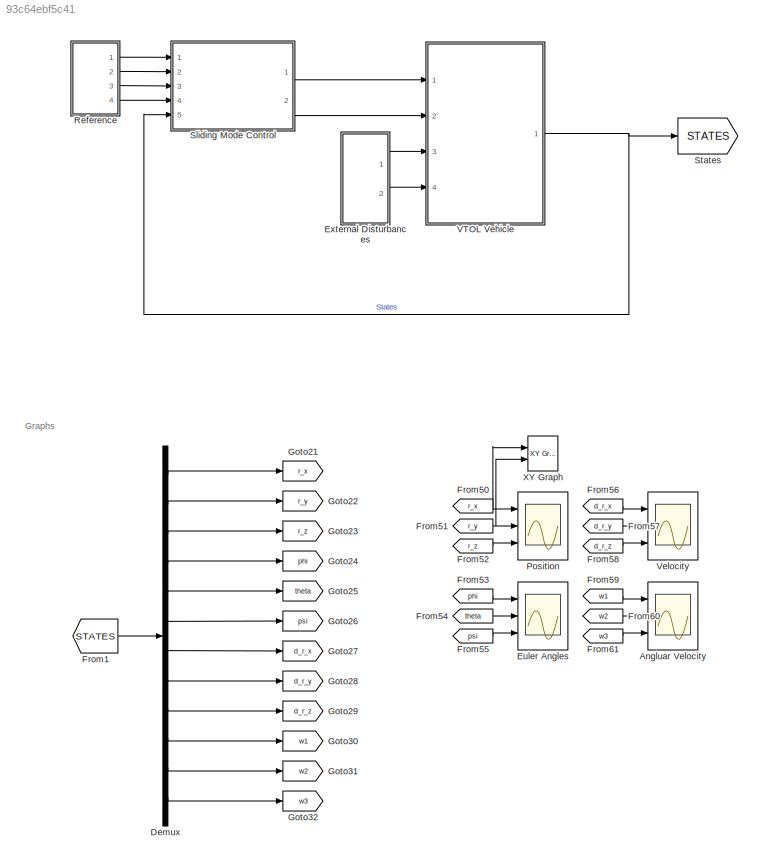
MODEL slx_93c64ebf5c41
KIND model
CONFIG AbsTol = auto
CONFIG EnableMultiTasking = off
CONFIG FixedStep = 0.01
CONFIG MaxStep = 0.01
CONFIG MinStep = auto
CONFIG RelTol = 1e-3
CONFIG SampleTimeConstraint = Unconstrained
CONFIG SolverName = FixedStepAuto
CONFIG StartTime = 0.0
CONFIG StopTime = 120
BLOCK [Scope] Angluar Velocity
  Floating = off
  NumInputPorts = 3
  Ports = [3]
  ScopeSpecificationString = Simulink.scopes.TimeScopeBlockCfg('CurrentConfiguration', extmgr.ConfigurationSet(extmgr.Configuration('Core','General UI',true),extmgr.Configuration('Core','Source UI',true),extmgr.Configuration('Sources','WiredSimulink',true,'DataLoggingVariableName','ScopeData3'),extmgr.Configuration('Visuals','Time Domain',true,'SerializedDisplays',{struct('MinYLimReal','-0.05142','MaxYLimReal','0.04505','YLab...<+2797ch>
BLOCK [Demux] Demux
  Outputs = 12
  Ports = [1, 12]
BLOCK [Scope] Euler Angles
  Floating = off
  NumInputPorts = 3
  Ports = [3]
  ScopeSpecificationString = Simulink.scopes.TimeScopeBlockCfg('CurrentConfiguration', extmgr.ConfigurationSet(extmgr.Configuration('Core','General UI',true),extmgr.Configuration('Core','Source UI',true),extmgr.Configuration('Sources','WiredSimulink',true,'DataLoggingVariableName','ScopeData1'),extmgr.Configuration('Visuals','Time Domain',true,'SerializedDisplays',{struct('MinYLimReal','-0.01708','MaxYLimReal','0.01827','YLab...<+2798ch>
BLOCK [SubSystem] External Disturbances
  Ports = [0, 2]
  RequestExecContextInheritance = off
BLOCK [Constant] External Disturbances/Constant
  Value = 0
BLOCK [Constant] External Disturbances/Constant1
  Value = 0
BLOCK [Constant] External Disturbances/Constant10
  Value = [0;0;0]
BLOCK [Constant] External Disturbances/Constant2
  Value = 0
BLOCK [Constant] External Disturbances/Constant3
  Value = 0
BLOCK [Constant] External Disturbances/Constant4
  Value = [0;0;0]
BLOCK [Outport] External Disturbances/Force
BLOCK [ManualSwitch] External Disturbances/Manual Switch
BLOCK [ManualSwitch] External Disturbances/Manual Switch7
BLOCK [Mux] External Disturbances/Mux6
  DisplayOption = bar
  Inputs = 3
  Ports = [3, 1]
BLOCK [Mux] External Disturbances/Mux7
  DisplayOption = bar
  Inputs = 3
  Ports = [3, 1]
BLOCK [SubSystem] External Disturbances/Signal Builder3
  ClipboardFcn = sigbuilder_block('clipboard');
  CloseFcn = sigbuilder_block('close');
  ContinueFcn = sigbuilder_block('continue');
  CopyFcn = sigbuilder_block('copy');
  DeleteFcn = sigbuilder_block('delete');
  LoadFcn = sigbuilder_block('load');
  MaskHideContents = on
  ModelCloseFcn = sigbuilder_block('modelClose');
  NameChangeFcn = sigbuilder_block('namechange');
  OpenFcn = sigbuilder_block('open',[6 22.5 1428 689.25 ]);
  PauseFcn = sigbuilder_block('pause');
  Ports = [0, 2]
  PreSaveFcn = sigbuilder_block('preSave');
  RequestExecContextInheritance = off
  StartFcn = sigbuilder_block('start');
  StopFcn = sigbuilder_block('stop');
  Tag = STV Subsys
BLOCK [Demux] External Disturbances/Signal Builder3/Demux
  DisplayOption = none
  Outputs = 2
  Ports = [1, 2]
  Tag = STV Demux
BLOCK [FromWorkspace] External Disturbances/Signal Builder3/FromWs
  Tag = STV FromWs
  VariableName = tuvar
BLOCK [Outport] External Disturbances/Signal Builder3/XForce
  Tag = STV Outport
BLOCK [Outport] External Disturbances/Signal Builder3/Yaw torque
  Port = 2
  Tag = STV Outport
BLOCK [Outport] External Disturbances/Torque
  Port = 2
BLOCK [From] From1
  GotoTag = STATES
BLOCK [From] From50
  GotoTag = r_x
BLOCK [From] From51
  GotoTag = r_y
BLOCK [From] From52
  GotoTag = r_z
BLOCK [From] From53
  GotoTag = phi
BLOCK [From] From54
  GotoTag = theta
BLOCK [From] From55
  GotoTag = psi
BLOCK [From] From56
  GotoTag = d_r_x
BLOCK [From] From57
  GotoTag = d_r_y
BLOCK [From] From58
  GotoTag = d_r_z
BLOCK [From] From59
  GotoTag = w1
BLOCK [From] From60
  GotoTag = w2
BLOCK [From] From61
  GotoTag = w3
BLOCK [Goto] Goto21
  GotoTag = r_x
BLOCK [Goto] Goto22
  GotoTag = r_y
BLOCK [Goto] Goto23
  GotoTag = r_z
BLOCK [Goto] Goto24
  GotoTag = phi
BLOCK [Goto] Goto25
  GotoTag = theta
BLOCK [Goto] Goto26
  GotoTag = psi
BLOCK [Goto] Goto27
  GotoTag = d_r_x
BLOCK [Goto] Goto28
  GotoTag = d_r_y
BLOCK [Goto] Goto29
  GotoTag = d_r_z
BLOCK [Goto] Goto30
  GotoTag = w1
BLOCK [Goto] Goto31
  GotoTag = w2
BLOCK [Goto] Goto32
  GotoTag = w3
BLOCK [Scope] Position
  Floating = off
  NumInputPorts = 3
  Ports = [3]
  ScopeSpecificationString = Simulink.scopes.TimeScopeBlockCfg('CurrentConfiguration', extmgr.ConfigurationSet(extmgr.Configuration('Core','General UI',true),extmgr.Configuration('Core','Source UI',true),extmgr.Configuration('Sources','WiredSimulink',true),extmgr.Configuration('Visuals','Time Domain',true,'SerializedDisplays',{struct('MinYLimReal','-0.0000019','MaxYLimReal','0.0000012','YLabelReal','','MinYLimMag','0.0000000'...<+2785ch>
BLOCK [SubSystem] Reference
  Ports = [0, 4]
  RequestExecContextInheritance = off
BLOCK [Gain] Reference/Gain17
  Gain = -1
BLOCK [SubSystem] Reference/Signal Builder1
  ClipboardFcn = sigbuilder_block('clipboard');
  CloseFcn = sigbuilder_block('close');
  ContinueFcn = sigbuilder_block('continue');
  CopyFcn = sigbuilder_block('copy');
  DeleteFcn = sigbuilder_block('delete');
  LoadFcn = sigbuilder_block('load');
  MaskHideContents = on
  ModelCloseFcn = sigbuilder_block('modelClose');
  NameChangeFcn = sigbuilder_block('namechange');
  OpenFcn = sigbuilder_block('open',[6 22.5 1428 689.25 ]);
  PauseFcn = sigbuilder_block('pause');
  Ports = [0, 6]
  PreSaveFcn = sigbuilder_block('preSave');
  RequestExecContextInheritance = off
  StartFcn = sigbuilder_block('start');
  StopFcn = sigbuilder_block('stop');
  Tag = STV Subsys
BLOCK [Demux] Reference/Signal Builder1/Demux
  DisplayOption = none
  Outputs = 6
  Ports = [1, 6]
  Tag = STV Demux
BLOCK [FromWorkspace] Reference/Signal Builder1/FromWs
  Tag = STV FromWs
  VariableName = tuvar
BLOCK [Outport] Reference/Signal Builder1/Ramp Step
  Port = 5
  Tag = STV Outport
BLOCK [Outport] Reference/Signal Builder1/Step
  Port = 6
  Tag = STV Outport
BLOCK [Outport] Reference/Signal Builder1/X pos
  Tag = STV Outport
BLOCK [Outport] Reference/Signal Builder1/Y pos
  Port = 2
  Tag = STV Outport
BLOCK [Outport] Reference/Signal Builder1/Yaw
  Port = 4
  Tag = STV Outport
BLOCK [Outport] Reference/Signal Builder1/Z pos
  Port = 3
  Tag = STV Outport
BLOCK [SubSystem] Reference/Signal Builder2
  ClipboardFcn = sigbuilder_block('clipboard');
  CloseFcn = sigbuilder_block('close');
  ContinueFcn = sigbuilder_block('continue');
  CopyFcn = sigbuilder_block('copy');
  DeleteFcn = sigbuilder_block('delete');
  LoadFcn = sigbuilder_block('load');
  MaskHideContents = on
  ModelCloseFcn = sigbuilder_block('modelClose');
  NameChangeFcn = sigbuilder_block('namechange');
  OpenFcn = sigbuilder_block('open',[6 22.5 1428 689.25 ]);
  PauseFcn = sigbuilder_block('pause');
  Ports = [0, 6]
  PreSaveFcn = sigbuilder_block('preSave');
  RequestExecContextInheritance = off
  StartFcn = sigbuilder_block('start');
  StopFcn = sigbuilder_block('stop');
  Tag = STV Subsys
BLOCK [Demux] Reference/Signal Builder2/Demux
  DisplayOption = none
  Outputs = 6
  Ports = [1, 6]
  Tag = STV Demux
BLOCK [FromWorkspace] Reference/Signal Builder2/FromWs
  Tag = STV FromWs
  VariableName = tuvar
BLOCK [Outport] Reference/Signal Builder2/Signal 1
  Port = 5
  Tag = STV Outport
BLOCK [Outport] Reference/Signal Builder2/Signal 2
  Port = 6
  Tag = STV Outport
BLOCK [Outport] Reference/Signal Builder2/X pos
  Tag = STV Outport
BLOCK [Outport] Reference/Signal Builder2/Y pos
  Port = 2
  Tag = STV Outport
BLOCK [Outport] Reference/Signal Builder2/Yaw
  Port = 4
  Tag = STV Outport
BLOCK [Outport] Reference/Signal Builder2/Z pos
  Port = 3
  Tag = STV Outport
BLOCK [SubSystem] Reference/Signal Builder3
  ClipboardFcn = sigbuilder_block('clipboard');
  CloseFcn = sigbuilder_block('close');
  ContinueFcn = sigbuilder_block('continue');
  CopyFcn = sigbuilder_block('copy');
  DeleteFcn = sigbuilder_block('delete');
  LoadFcn = sigbuilder_block('load');
  MaskHideContents = on
  ModelCloseFcn = sigbuilder_block('modelClose');
  NameChangeFcn = sigbuilder_block('namechange');
  OpenFcn = sigbuilder_block('open',[6 22.5 1428 689.25 ]);
  PauseFcn = sigbuilder_block('pause');
  Ports = [0, 6]
  PreSaveFcn = sigbuilder_block('preSave');
  RequestExecContextInheritance = off
  StartFcn = sigbuilder_block('start');
  StopFcn = sigbuilder_block('stop');
  Tag = STV Subsys
BLOCK [Demux] Reference/Signal Builder3/Demux
  DisplayOption = none
  Outputs = 6
  Ports = [1, 6]
  Tag = STV Demux
BLOCK [FromWorkspace] Reference/Signal Builder3/FromWs
  Tag = STV FromWs
  VariableName = tuvar
BLOCK [Outport] Reference/Signal Builder3/Signal 1
  Port = 5
  Tag = STV Outport
BLOCK [Outport] Reference/Signal Builder3/Signal 2
  Port = 6
  Tag = STV Outport
BLOCK [Outport] Reference/Signal Builder3/X pos
  Tag = STV Outport
BLOCK [Outport] Reference/Signal Builder3/Y pos
  Port = 2
  Tag = STV Outport
BLOCK [Outport] Reference/Signal Builder3/Yaw
  Port = 4
  Tag = STV Outport
BLOCK [Outport] Reference/Signal Builder3/Z pos
  Port = 3
  Tag = STV Outport
BLOCK [ToWorkspace] Reference/To Workspace10
  FixptAsFi = on
  MaxDataPoints = inf
  Ports = [1]
  SampleTime = -1
  SaveFormat = Timeseries
  VariableName = des_z
BLOCK [ToWorkspace] Reference/To Workspace7
  FixptAsFi = on
  MaxDataPoints = inf
  Ports = [1]
  SampleTime = -1
  SaveFormat = Timeseries
  VariableName = des_psi_ctr
BLOCK [ToWorkspace] Reference/To Workspace8
  FixptAsFi = on
  MaxDataPoints = inf
  Ports = [1]
  SampleTime = -1
  SaveFormat = Timeseries
  VariableName = des_x
BLOCK [ToWorkspace] Reference/To Workspace9
  FixptAsFi = on
  MaxDataPoints = inf
  Ports = [1]
  SampleTime = -1
  SaveFormat = Timeseries
  VariableName = des_y
BLOCK [Outport] Reference/des Yaw
  Port = 4
BLOCK [Outport] Reference/des e1
  Port = 2
BLOCK [Outport] Reference/des e2
  Port = 3
BLOCK [Outport] Reference/des e3
BLOCK [SubSystem] Sliding Mode Control
  Ports = [5, 2]
  RequestExecContextInheritance = off
BLOCK [Constant] Sliding Mode Control/Air Density
  Value = 1.2041
BLOCK [SubSystem] Sliding Mode Control/Altitude Control
  Ports = [3, 1]
  RequestExecContextInheritance = off
BLOCK [Constant] Sliding Mode Control/Altitude Control/Constant18
BLOCK [Constant] Sliding Mode Control/Altitude Control/Constant5
  Value = -1
BLOCK [Constant] Sliding Mode Control/Altitude Control/Constant6
  Value = 0
BLOCK [Constant] Sliding Mode Control/Altitude Control/Constant7
  Value = 2
BLOCK [Constant] Sliding Mode Control/Altitude Control/Constant8
  Value = 0.5
BLOCK [Constant] Sliding Mode Control/Altitude Control/Constant9
  Value = 0.5
BLOCK [Inport] Sliding Mode Control/Altitude Control/Constants
  Port = 2
BLOCK [Trigonometry] Sliding Mode Control/Altitude Control/Cos
  Operator = cos
  Ports = [1, 1]
BLOCK [Trigonometry] Sliding Mode Control/Altitude Control/Cos1
  Operator = cos
  Ports = [1, 1]
BLOCK [Demux] Sliding Mode Control/Altitude Control/Demux
  Outputs = 12
  Ports = [1, 12]
BLOCK [Demux] Sliding Mode Control/Altitude Control/Demux1
  Outputs = 9
  Ports = [1, 9]
BLOCK [Product] Sliding Mode Control/Altitude Control/Divide
  Inputs = */
  Ports = [2, 1]
BLOCK [From] Sliding Mode Control/Altitude Control/From1
  GotoTag = phi
BLOCK [From] Sliding Mode Control/Altitude Control/From2
  GotoTag = theta
BLOCK [From] Sliding Mode Control/Altitude Control/From212
  GotoTag = Z_POS
BLOCK [From] Sliding Mode Control/Altitude Control/From23
  GotoTag = Ix
BLOCK [From] Sliding Mode Control/Altitude Control/From36
  GotoTag = r_z
BLOCK [From] Sliding Mode Control/Altitude Control/From37
  GotoTag = a
BLOCK [From] Sliding Mode Control/Altitude Control/From38
  GotoTag = g
BLOCK [From] Sliding Mode Control/Altitude Control/From39
  GotoTag = lambda
BLOCK [From] Sliding Mode Control/Altitude Control/From40
  GotoTag = d_error
BLOCK [From] Sliding Mode Control/Altitude Control/From41
  GotoTag = b
BLOCK [From] Sliding Mode Control/Altitude Control/From42
  GotoTag = s
BLOCK [From] Sliding Mode Control/Altitude Control/From44
  GotoTag = d_r_z
BLOCK [From] Sliding Mode Control/Altitude Control/From45
  GotoTag = d_error
BLOCK [From] Sliding Mode Control/Altitude Control/From46
  GotoTag = error
BLOCK [From] Sliding Mode Control/Altitude Control/From47
  GotoTag = des_z
BLOCK [From] Sliding Mode Control/Altitude Control/From48
  GotoTag = Iy
BLOCK [From] Sliding Mode Control/Altitude Control/From49
  GotoTag = Iz
BLOCK [From] Sliding Mode Control/Altitude Control/From72
  GotoTag = eps_z
BLOCK [From] Sliding Mode Control/Altitude Control/From79
  GotoTag = des_d_z
BLOCK [From] Sliding Mode Control/Altitude Control/From80
  GotoTag = lambda
BLOCK [From] Sliding Mode Control/Altitude Control/From81
  GotoTag = m
BLOCK [From] Sliding Mode Control/Altitude Control/From82
  GotoTag = s
BLOCK [Gain] Sliding Mode Control/Altitude Control/Gain16
  Gain = 1/0.470193
BLOCK [Gain] Sliding Mode Control/Altitude Control/Gain3
BLOCK [Goto] Sliding Mode Control/Altitude Control/Goto1
  GotoTag = Z_POS
BLOCK [Goto] Sliding Mode Control/Altitude Control/Goto11
  GotoTag = eps_z
BLOCK [Goto] Sliding Mode Control/Altitude Control/Goto21
  GotoTag = r_x
BLOCK [Goto] Sliding Mode Control/Altitude Control/Goto22
  GotoTag = r_y
BLOCK [Goto] Sliding Mode Control/Altitude Control/Goto23
  GotoTag = r_z
BLOCK [Goto] Sliding Mode Control/Altitude Control/Goto24
  GotoTag = phi
BLOCK [Goto] Sliding Mode Control/Altitude Control/Goto25
  GotoTag = theta
BLOCK [Goto] Sliding Mode Control/Altitude Control/Goto26
  GotoTag = psi
BLOCK [Goto] Sliding Mode Control/Altitude Control/Goto27
  GotoTag = d_r_x
BLOCK [Goto] Sliding Mode Control/Altitude Control/Goto28
  GotoTag = d_r_y
BLOCK [Goto] Sliding Mode Control/Altitude Control/Goto29
  GotoTag = d_r_z
BLOCK [Goto] Sliding Mode Control/Altitude Control/Goto30
  GotoTag = w1
BLOCK [Goto] Sliding Mode Control/Altitude Control/Goto31
  GotoTag = w2
BLOCK [Goto] Sliding Mode Control/Altitude Control/Goto32
  GotoTag = w3
BLOCK [Goto] Sliding Mode Control/Altitude Control/Goto36
  GotoTag = b
BLOCK [Goto] Sliding Mode Control/Altitude Control/Goto37
  GotoTag = u_z
BLOCK [Goto] Sliding Mode Control/Altitude Control/Goto39
  GotoTag = error
BLOCK [Goto] Sliding Mode Control/Altitude Control/Goto41
  GotoTag = d_error
BLOCK [Goto] Sliding Mode Control/Altitude Control/Goto42
  GotoTag = s
BLOCK [Goto] Sliding Mode Control/Altitude Control/Goto43
  GotoTag = des_z
BLOCK [Goto] Sliding Mode Control/Altitude Control/Goto44
  GotoTag = des_d_z
BLOCK [Goto] Sliding Mode Control/Altitude Control/Goto45
  GotoTag = lambda
BLOCK [Goto] Sliding Mode Control/Altitude Control/Goto46
  GotoTag = a
BLOCK [Goto] Sliding Mode Control/Altitude Control/Inertia Matri
  GotoTag = I
BLOCK [Goto] Sliding Mode Control/Altitude Control/Inertia Matri1
  GotoTag = Iy
BLOCK [Goto] Sliding Mode Control/Altitude Control/Inertia Matri2
  GotoTag = g
BLOCK [Goto] Sliding Mode Control/Altitude Control/Inertia Matri3
  GotoTag = rho
BLOCK [Goto] Sliding Mode Control/Altitude Control/Inertia Matri4
  GotoTag = L
BLOCK [Goto] Sliding Mode Control/Altitude Control/Inertia Matri5
  GotoTag = d
BLOCK [Goto] Sliding Mode Control/Altitude Control/Inertia Matri6
  GotoTag = Ad
BLOCK [Goto] Sliding Mode Control/Altitude Control/Inertia Matri7
  GotoTag = m
BLOCK [Goto] Sliding Mode Control/Altitude Control/Inertia Matri8
  GotoTag = Ix
BLOCK [Goto] Sliding Mode Control/Altitude Control/Inertia Matri9
  GotoTag = Iz
BLOCK [SubSystem] Sliding Mode Control/Altitude Control/MATLAB Function1
  ErrorFcn = Stateflow.Translate.translate
  PermitHierarchicalResolution = ExplicitOnly
  Ports = [2, 1]
  RequestExecContextInheritance = off
  SFBlockType = MATLAB Function
  TreatAsAtomicUnit = on
BLOCK [Demux] Sliding Mode Control/Altitude Control/MATLAB Function1/ Demux 
  Outputs = 1
  Ports = [1, 1]
BLOCK [S-Function] Sliding Mode Control/Altitude Control/MATLAB Function1/ SFunction 
  EnableBusSupport = on
  FunctionName = sf_sfun
  PortCounts = [2 2]
  Ports = [2, 2]
  SFcnIsStateOwnerBlock = off
  SFunctionDeploymentMode = off
  Tag = Stateflow S-Function 1
BLOCK [Terminator] Sliding Mode Control/Altitude Control/MATLAB Function1/ Terminator 
BLOCK [Inport] Sliding Mode Control/Altitude Control/MATLAB Function1/eps
  Port = 2
BLOCK [Inport] Sliding Mode Control/Altitude Control/MATLAB Function1/s
BLOCK [Outport] Sliding Mode Control/Altitude Control/MATLAB Function1/y
BLOCK [SubSystem] Sliding Mode Control/Altitude Control/MATLAB Function2
  ErrorFcn = Stateflow.Translate.translate
  PermitHierarchicalResolution = ExplicitOnly
  Ports = [3, 1]
  RequestExecContextInheritance = off
  SFBlockType = MATLAB Function
  TreatAsAtomicUnit = on
BLOCK [Demux] Sliding Mode Control/Altitude Control/MATLAB Function2/ Demux 
  Outputs = 1
  Ports = [1, 1]
BLOCK [S-Function] Sliding Mode Control/Altitude Control/MATLAB Function2/ SFunction 
  EnableBusSupport = on
  FunctionName = sf_sfun
  PortCounts = [3 2]
  Ports = [3, 2]
  SFcnIsStateOwnerBlock = off
  SFunctionDeploymentMode = off
  Tag = Stateflow S-Function 32
BLOCK [Terminator] Sliding Mode Control/Altitude Control/MATLAB Function2/ Terminator 
BLOCK [Outport] Sliding Mode Control/Altitude Control/MATLAB Function2/I_v
BLOCK [Inport] Sliding Mode Control/Altitude Control/MATLAB Function2/Ix
BLOCK [Inport] Sliding Mode Control/Altitude Control/MATLAB Function2/Iy
  Port = 2
BLOCK [Inport] Sliding Mode Control/Altitude Control/MATLAB Function2/Iz
  Port = 3
BLOCK [ManualSwitch] Sliding Mode Control/Altitude Control/Manual Switch5
  CurrentSetting = 0
BLOCK [Product] Sliding Mode Control/Altitude Control/Product1
  Ports = [2, 1]
BLOCK [Product] Sliding Mode Control/Altitude Control/Product18
  Ports = [2, 1]
BLOCK [Product] Sliding Mode Control/Altitude Control/Product19
  Ports = [2, 1]
BLOCK [Product] Sliding Mode Control/Altitude Control/Product20
  Ports = [2, 1]
BLOCK [Product] Sliding Mode Control/Altitude Control/Product21
  Ports = [2, 1]
BLOCK [Product] Sliding Mode Control/Altitude Control/Product22
  Ports = [2, 1]
BLOCK [Saturate] Sliding Mode Control/Altitude Control/Saturation
  LowerLimit = 0
  UpperLimit = 100
BLOCK [Scope] Sliding Mode Control/Altitude Control/Scope13
  Floating = off
  NumInputPorts = 1
  Ports = [1]
  ScopeSpecificationString = Simulink.scopes.TimeScopeBlockCfg('CurrentConfiguration', extmgr.ConfigurationSet(extmgr.Configuration('Core','General UI',true),extmgr.Configuration('Core','Source UI',true),extmgr.Configuration('Sources','WiredSimulink',true,'DataLoggingVariableName','ScopeData14'),extmgr.Configuration('Visuals','Time Domain',true,'SerializedDisplays',{struct('MinYLimReal','-12.5','MaxYLimReal','112.5','YLabelRe...<+1427ch>
BLOCK [Scope] Sliding Mode Control/Altitude Control/Scope16
  Floating = off
  NumInputPorts = 1
  Ports = [1]
  ScopeSpecificationString = Simulink.scopes.TimeScopeBlockCfg('CurrentConfiguration', extmgr.ConfigurationSet(extmgr.Configuration('Core','General UI',true),extmgr.Configuration('Core','Source UI',true),extmgr.Configuration('Sources','WiredSimulink',true,'DataLoggingVariableName','ScopeData1'),extmgr.Configuration('Visuals','Time Domain',true,'SerializedDisplays',{struct('MinYLimReal','31.90637','MaxYLimReal','56.19263','YLa...<+1741ch>
BLOCK [Scope] Sliding Mode Control/Altitude Control/Scope17
  Floating = off
  NumInputPorts = 1
  Ports = [1]
  ScopeSpecificationString = Simulink.scopes.TimeScopeBlockCfg('CurrentConfiguration', extmgr.ConfigurationSet(extmgr.Configuration('Core','General UI',true),extmgr.Configuration('Core','Source UI',true),extmgr.Configuration('Sources','WiredSimulink',true,'DataLoggingVariableName','ScopeData2'),extmgr.Configuration('Visuals','Time Domain',true,'SerializedDisplays',{struct('MinYLimReal','-0.62874','MaxYLimReal','5.62542','YLab...<+1434ch>
BLOCK [Scope] Sliding Mode Control/Altitude Control/Scope18
  Floating = off
  NumInputPorts = 1
  Ports = [1]
  ScopeSpecificationString = Simulink.scopes.TimeScopeBlockCfg('CurrentConfiguration', extmgr.ConfigurationSet(extmgr.Configuration('Core','General UI',true),extmgr.Configuration('Core','Source UI',true),extmgr.Configuration('Sources','WiredSimulink',true,'DataLoggingVariableName','ScopeData3'),extmgr.Configuration('Visuals','Time Domain',true,'SerializedDisplays',{struct('MinYLimReal','-0.35998','MaxYLimReal','0.59555','YLab...<+1439ch>
BLOCK [Scope] Sliding Mode Control/Altitude Control/Scope19
  Floating = off
  NumInputPorts = 1
  Ports = [1]
  ScopeSpecificationString = Simulink.scopes.TimeScopeBlockCfg('CurrentConfiguration', extmgr.ConfigurationSet(extmgr.Configuration('Core','General UI',true),extmgr.Configuration('Core','Source UI',true),extmgr.Configuration('Sources','WiredSimulink',true,'DataLoggingVariableName','ScopeData4'),extmgr.Configuration('Visuals','Time Domain',true,'SerializedDisplays',{struct('MinYLimReal','-1.12511','MaxYLimReal','0.12501','YLab...<+1437ch>
BLOCK [Scope] Sliding Mode Control/Altitude Control/Scope20
  Floating = off
  NumInputPorts = 1
  Ports = [1]
  ScopeSpecificationString = Simulink.scopes.TimeScopeBlockCfg('CurrentConfiguration', extmgr.ConfigurationSet(extmgr.Configuration('Core','General UI',true),extmgr.Configuration('Core','Source UI',true),extmgr.Configuration('Sources','WiredSimulink',true,'DataLoggingVariableName','ScopeData1'),extmgr.Configuration('Visuals','Time Domain',true,'SerializedDisplays',{struct('MinYLimReal','0.04336','MaxYLimReal','0.2174','YLabel...<+1428ch>
BLOCK [Scope] Sliding Mode Control/Altitude Control/Scope22
  Floating = off
  NumInputPorts = 1
  Ports = [1]
  ScopeSpecificationString = Simulink.scopes.TimeScopeBlockCfg('CurrentConfiguration', extmgr.ConfigurationSet(extmgr.Configuration('Core','General UI',true),extmgr.Configuration('Core','Source UI',true),extmgr.Configuration('Sources','WiredSimulink',true,'DataLoggingVariableName','ScopeData2'),extmgr.Configuration('Visuals','Time Domain',true,'SerializedDisplays',{struct('MinYLimReal','-0.65419','MaxYLimReal','2.14047','YLab...<+1434ch>
BLOCK [Inport] Sliding Mode Control/Altitude Control/States
  Port = 3
BLOCK [Sum] Sliding Mode Control/Altitude Control/Sum15
  Inputs = |++
  Ports = [2, 1]
BLOCK [Sum] Sliding Mode Control/Altitude Control/Sum16
  Inputs = |++
  Ports = [2, 1]
BLOCK [Sum] Sliding Mode Control/Altitude Control/Sum4
  Inputs = -+|
  Ports = [2, 1]
BLOCK [Sum] Sliding Mode Control/Altitude Control/Sum5
  Inputs = -+|
  Ports = [2, 1]
BLOCK [Sum] Sliding Mode Control/Altitude Control/Sum6
  Inputs = ++|
  Ports = [2, 1]
BLOCK [Sum] Sliding Mode Control/Altitude Control/Sum7
  Inputs = |++
  Ports = [2, 1]
BLOCK [Scope] Sliding Mode Control/Altitude Control/Surface
  Floating = off
  NumInputPorts = 1
  Ports = [1]
  ScopeSpecificationString = Simulink.scopes.TimeScopeBlockCfg('CurrentConfiguration', extmgr.ConfigurationSet(extmgr.Configuration('Core','General UI',true),extmgr.Configuration('Core','Source UI',true),extmgr.Configuration('Sources','WiredSimulink',true,'DataLoggingVariableName','ScopeData15'),extmgr.Configuration('Visuals','Time Domain',true,'SerializedDisplays',{struct('MinYLimReal','-0.38904','MaxYLimReal','2.77635','YLa...<+1394ch>
BLOCK [Inport] Sliding Mode Control/Altitude Control/des e3
BLOCK [Outport] Sliding Mode Control/Altitude Control/pwm
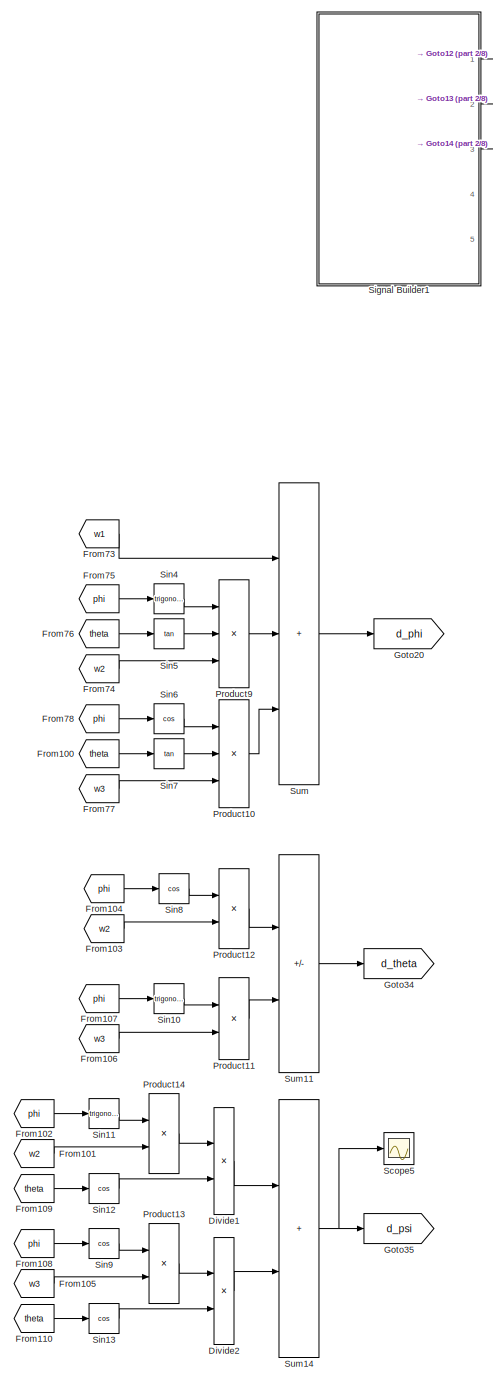
[diagram: Sliding Mode Control/Attitude Control - part 1/8, middle left region]
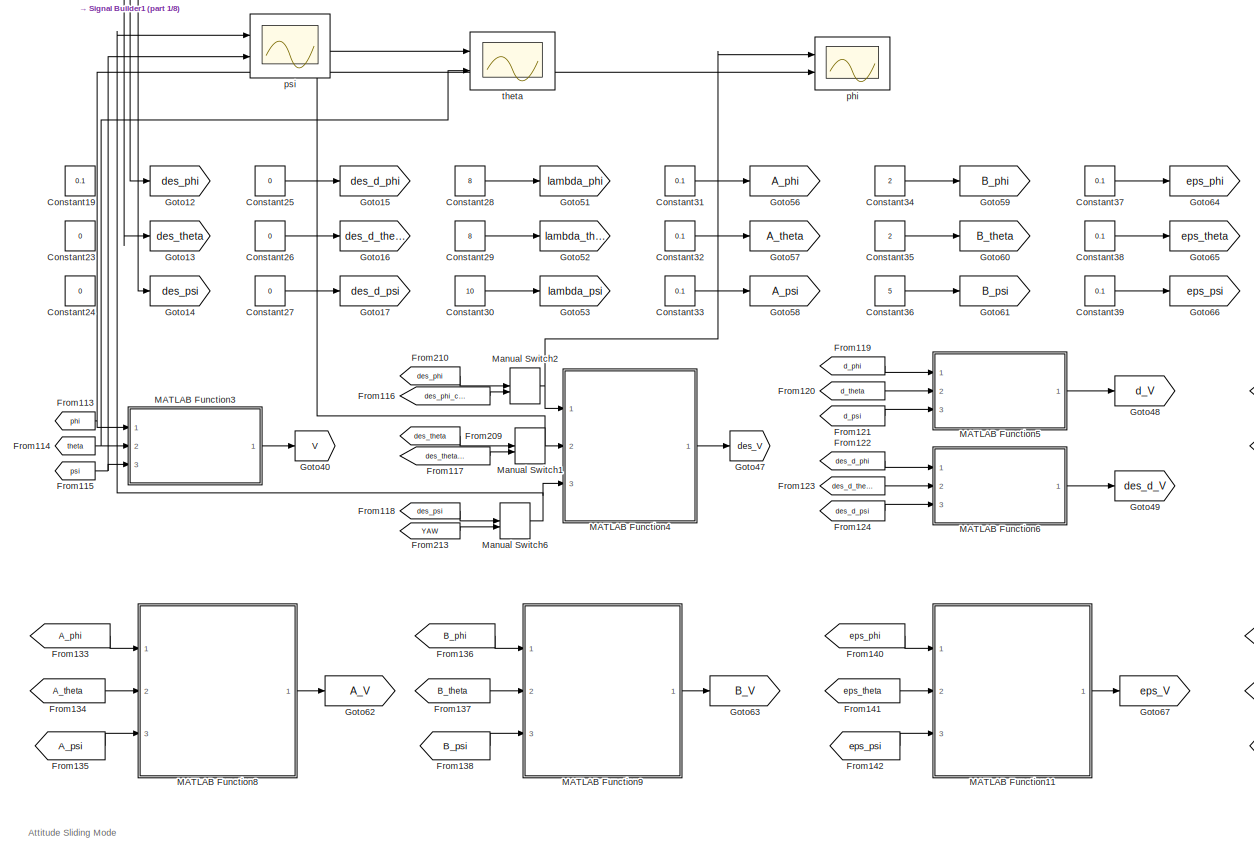
[diagram: Sliding Mode Control/Attitude Control - part 2/8, top center region]
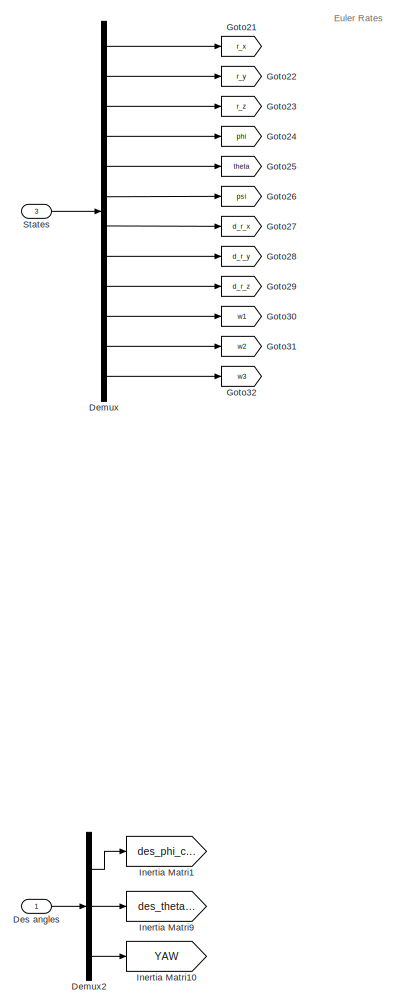
[diagram: Sliding Mode Control/Attitude Control - part 3/8, middle left region]
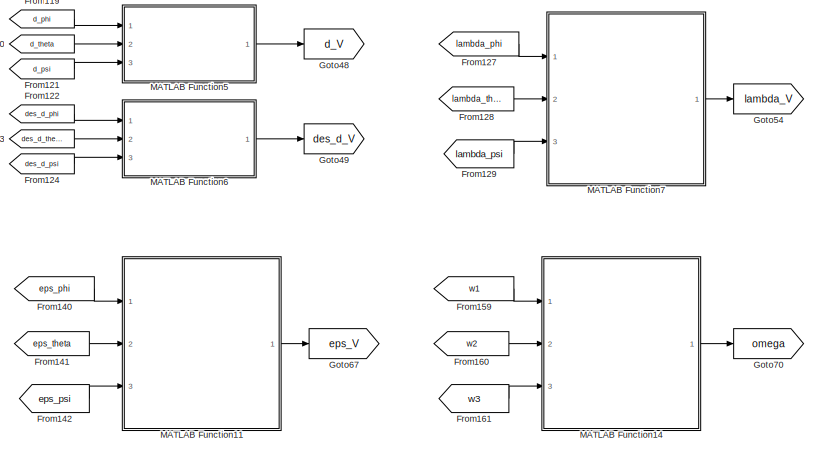
[diagram: Sliding Mode Control/Attitude Control - part 4/8, middle right region]
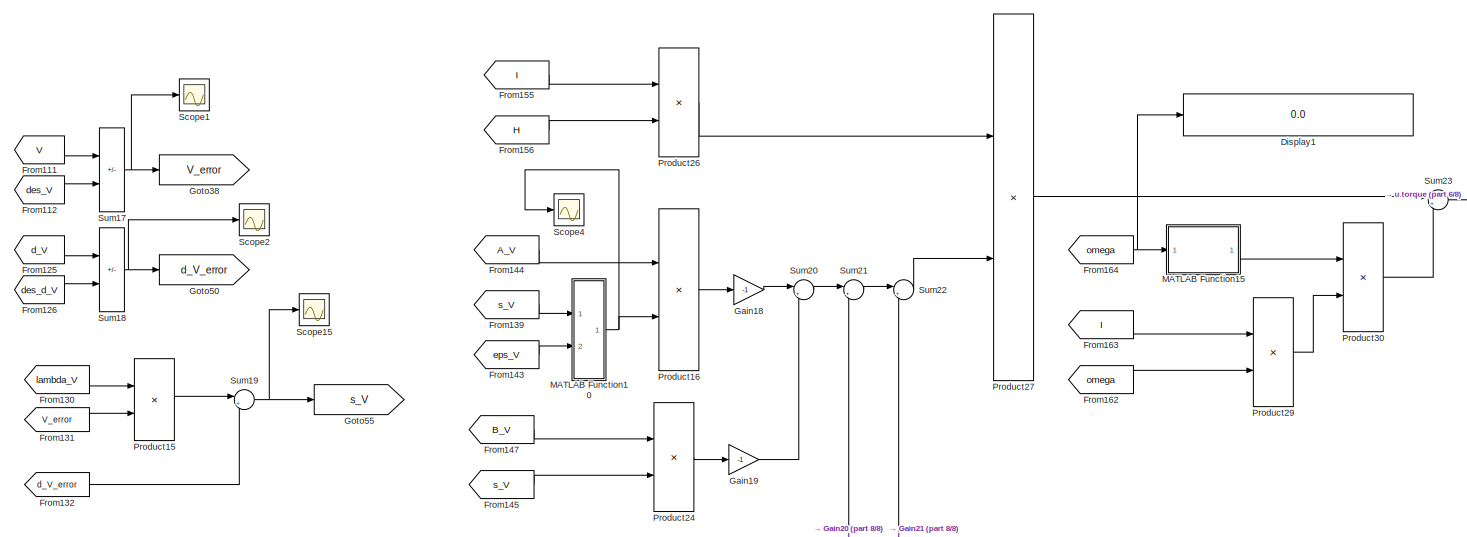
[diagram: Sliding Mode Control/Attitude Control - part 5/8, middle right region]
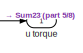
[diagram: Sliding Mode Control/Attitude Control - part 6/8, middle right region]
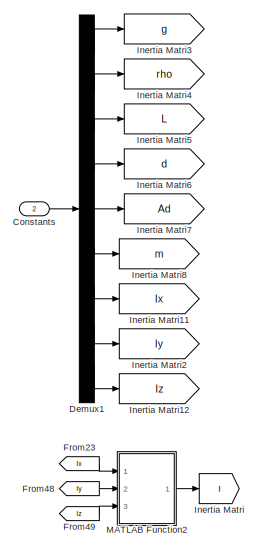
[diagram: Sliding Mode Control/Attitude Control - part 7/8, bottom left region]
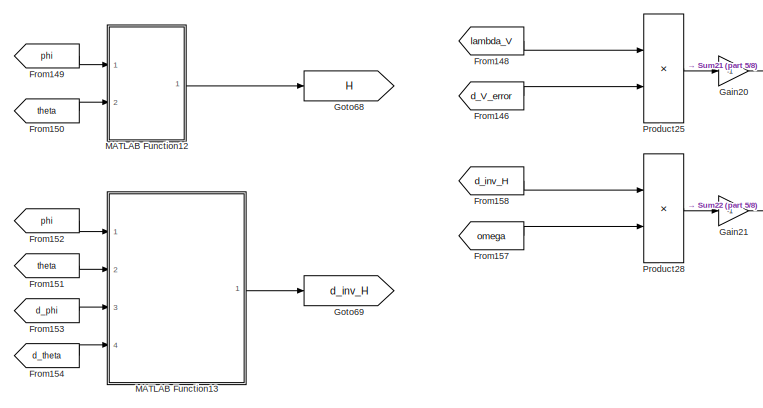
[diagram: Sliding Mode Control/Attitude Control - part 8/8, bottom center region]
BLOCK [SubSystem] Sliding Mode Control/Attitude Control
  Ports = [3, 1]
  RequestExecContextInheritance = off
BLOCK [Constant] Sliding Mode Control/Attitude Control/Constant19
  Value = 0.1
BLOCK [Constant] Sliding Mode Control/Attitude Control/Constant23
  Value = 0
BLOCK [Constant] Sliding Mode Control/Attitude Control/Constant24
  Value = 0
BLOCK [Constant] Sliding Mode Control/Attitude Control/Constant25
  Value = 0
BLOCK [Constant] Sliding Mode Control/Attitude Control/Constant26
  Value = 0
BLOCK [Constant] Sliding Mode Control/Attitude Control/Constant27
  Value = 0
BLOCK [Constant] Sliding Mode Control/Attitude Control/Constant28
  Value = 8
BLOCK [Constant] Sliding Mode Control/Attitude Control/Constant29
  Value = 8
BLOCK [Constant] Sliding Mode Control/Attitude Control/Constant30
  Value = 10
BLOCK [Constant] Sliding Mode Control/Attitude Control/Constant31
  Value = 0.1
BLOCK [Constant] Sliding Mode Control/Attitude Control/Constant32
  Value = 0.1
BLOCK [Constant] Sliding Mode Control/Attitude Control/Constant33
  Value = 0.1
BLOCK [Constant] Sliding Mode Control/Attitude Control/Constant34
  Value = 2
BLOCK [Constant] Sliding Mode Control/Attitude Control/Constant35
  Value = 2
BLOCK [Constant] Sliding Mode Control/Attitude Control/Constant36
  Value = 5
BLOCK [Constant] Sliding Mode Control/Attitude Control/Constant37
  Value = 0.1
BLOCK [Constant] Sliding Mode Control/Attitude Control/Constant38
  Value = 0.1
BLOCK [Constant] Sliding Mode Control/Attitude Control/Constant39
  Value = 0.1
BLOCK [Inport] Sliding Mode Control/Attitude Control/Constants
  Port = 2
BLOCK [Demux] Sliding Mode Control/Attitude Control/Demux
  Outputs = 12
  Ports = [1, 12]
BLOCK [Demux] Sliding Mode Control/Attitude Control/Demux1
  Outputs = 9
  Ports = [1, 9]
BLOCK [Demux] Sliding Mode Control/Attitude Control/Demux2
  Outputs = 3
  Ports = [1, 3]
BLOCK [Inport] Sliding Mode Control/Attitude Control/Des angles
BLOCK [Display] Sliding Mode Control/Attitude Control/Display1
  Decimation = 1
  Ports = [1]
BLOCK [Product] Sliding Mode Control/Attitude Control/Divide1
  Inputs = */
  Ports = [2, 1]
BLOCK [Product] Sliding Mode Control/Attitude Control/Divide2
  Inputs = */
  Ports = [2, 1]
BLOCK [From] Sliding Mode Control/Attitude Control/From100
  GotoTag = theta
BLOCK [From] Sliding Mode Control/Attitude Control/From101
  GotoTag = w2
BLOCK [From] Sliding Mode Control/Attitude Control/From102
  GotoTag = phi
BLOCK [From] Sliding Mode Control/Attitude Control/From103
  GotoTag = w2
BLOCK [From] Sliding Mode Control/Attitude Control/From104
  GotoTag = phi
BLOCK [From] Sliding Mode Control/Attitude Control/From105
  GotoTag = w3
BLOCK [From] Sliding Mode Control/Attitude Control/From106
  GotoTag = w3
BLOCK [From] Sliding Mode Control/Attitude Control/From107
  GotoTag = phi
BLOCK [From] Sliding Mode Control/Attitude Control/From108
  GotoTag = phi
BLOCK [From] Sliding Mode Control/Attitude Control/From109
  GotoTag = theta
BLOCK [From] Sliding Mode Control/Attitude Control/From110
  GotoTag = theta
BLOCK [From] Sliding Mode Control/Attitude Control/From111
  GotoTag = V
BLOCK [From] Sliding Mode Control/Attitude Control/From112
  GotoTag = des_V
BLOCK [From] Sliding Mode Control/Attitude Control/From113
  GotoTag = phi
BLOCK [From] Sliding Mode Control/Attitude Control/From114
  GotoTag = theta
BLOCK [From] Sliding Mode Control/Attitude Control/From115
  GotoTag = psi
BLOCK [From] Sliding Mode Control/Attitude Control/From116
  GotoTag = des_phi_contr
BLOCK [From] Sliding Mode Control/Attitude Control/From117
  GotoTag = des_theta_contr
BLOCK [From] Sliding Mode Control/Attitude Control/From118
  GotoTag = des_psi
BLOCK [From] Sliding Mode Control/Attitude Control/From119
  GotoTag = d_phi
BLOCK [From] Sliding Mode Control/Attitude Control/From120
  GotoTag = d_theta
BLOCK [From] Sliding Mode Control/Attitude Control/From121
  GotoTag = d_psi
BLOCK [From] Sliding Mode Control/Attitude Control/From122
  GotoTag = des_d_phi
BLOCK [From] Sliding Mode Control/Attitude Control/From123
  GotoTag = des_d_theta
BLOCK [From] Sliding Mode Control/Attitude Control/From124
  GotoTag = des_d_psi
BLOCK [From] Sliding Mode Control/Attitude Control/From125
  GotoTag = d_V
BLOCK [From] Sliding Mode Control/Attitude Control/From126
  GotoTag = des_d_V
BLOCK [From] Sliding Mode Control/Attitude Control/From127
  GotoTag = lambda_phi
BLOCK [From] Sliding Mode Control/Attitude Control/From128
  GotoTag = lambda_theta
BLOCK [From] Sliding Mode Control/Attitude Control/From129
  GotoTag = lambda_psi
BLOCK [From] Sliding Mode Control/Attitude Control/From130
  GotoTag = lambda_V
BLOCK [From] Sliding Mode Control/Attitude Control/From131
  GotoTag = V_error
BLOCK [From] Sliding Mode Control/Attitude Control/From132
  GotoTag = d_V_error
BLOCK [From] Sliding Mode Control/Attitude Control/From133
  GotoTag = A_phi
BLOCK [From] Sliding Mode Control/Attitude Control/From134
  GotoTag = A_theta
BLOCK [From] Sliding Mode Control/Attitude Control/From135
  GotoTag = A_psi
BLOCK [From] Sliding Mode Control/Attitude Control/From136
  GotoTag = B_phi
BLOCK [From] Sliding Mode Control/Attitude Control/From137
  GotoTag = B_theta
BLOCK [From] Sliding Mode Control/Attitude Control/From138
  GotoTag = B_psi
BLOCK [From] Sliding Mode Control/Attitude Control/From139
  GotoTag = s_V
BLOCK [From] Sliding Mode Control/Attitude Control/From140
  GotoTag = eps_phi
BLOCK [From] Sliding Mode Control/Attitude Control/From141
  GotoTag = eps_theta
BLOCK [From] Sliding Mode Control/Attitude Control/From142
  GotoTag = eps_psi
BLOCK [From] Sliding Mode Control/Attitude Control/From143
  GotoTag = eps_V
BLOCK [From] Sliding Mode Control/Attitude Control/From144
  GotoTag = A_V
BLOCK [From] Sliding Mode Control/Attitude Control/From145
  GotoTag = s_V
BLOCK [From] Sliding Mode Control/Attitude Control/From146
  GotoTag = d_V_error
BLOCK [From] Sliding Mode Control/Attitude Control/From147
  GotoTag = B_V
BLOCK [From] Sliding Mode Control/Attitude Control/From148
  GotoTag = lambda_V
BLOCK [From] Sliding Mode Control/Attitude Control/From149
  GotoTag = phi
BLOCK [From] Sliding Mode Control/Attitude Control/From150
  GotoTag = theta
BLOCK [From] Sliding Mode Control/Attitude Control/From151
  GotoTag = theta
BLOCK [From] Sliding Mode Control/Attitude Control/From152
  GotoTag = phi
BLOCK [From] Sliding Mode Control/Attitude Control/From153
  GotoTag = d_phi
BLOCK [From] Sliding Mode Control/Attitude Control/From154
  GotoTag = d_theta
BLOCK [From] Sliding Mode Control/Attitude Control/From155
  GotoTag = I
BLOCK [From] Sliding Mode Control/Attitude Control/From156
  GotoTag = H
BLOCK [From] Sliding Mode Control/Attitude Control/From157
  GotoTag = omega
BLOCK [From] Sliding Mode Control/Attitude Control/From158
  GotoTag = d_inv_H
BLOCK [From] Sliding Mode Control/Attitude Control/From159
  GotoTag = w1
BLOCK [From] Sliding Mode Control/Attitude Control/From160
  GotoTag = w2
BLOCK [From] Sliding Mode Control/Attitude Control/From161
  GotoTag = w3
BLOCK [From] Sliding Mode Control/Attitude Control/From162
  GotoTag = omega
BLOCK [From] Sliding Mode Control/Attitude Control/From163
  GotoTag = I
BLOCK [From] Sliding Mode Control/Attitude Control/From164
  GotoTag = omega
BLOCK [From] Sliding Mode Control/Attitude Control/From209
  GotoTag = des_theta
BLOCK [From] Sliding Mode Control/Attitude Control/From210
  GotoTag = des_phi
BLOCK [From] Sliding Mode Control/Attitude Control/From213
  GotoTag = YAW
BLOCK [From] Sliding Mode Control/Attitude Control/From23
  GotoTag = Ix
BLOCK [From] Sliding Mode Control/Attitude Control/From48
  GotoTag = Iy
BLOCK [From] Sliding Mode Control/Attitude Control/From49
  GotoTag = Iz
BLOCK [From] Sliding Mode Control/Attitude Control/From73
  GotoTag = w1
BLOCK [From] Sliding Mode Control/Attitude Control/From74
  GotoTag = w2
BLOCK [From] Sliding Mode Control/Attitude Control/From75
  GotoTag = phi
BLOCK [From] Sliding Mode Control/Attitude Control/From76
  GotoTag = theta
BLOCK [From] Sliding Mode Control/Attitude Control/From77
  GotoTag = w3
BLOCK [From] Sliding Mode Control/Attitude Control/From78
  GotoTag = phi
BLOCK [Gain] Sliding Mode Control/Attitude Control/Gain18
  Gain = -1
BLOCK [Gain] Sliding Mode Control/Attitude Control/Gain19
  Gain = -1
BLOCK [Gain] Sliding Mode Control/Attitude Control/Gain20
  Gain = -1
BLOCK [Gain] Sliding Mode Control/Attitude Control/Gain21
  Gain = -1
BLOCK [Goto] Sliding Mode Control/Attitude Control/Goto12
  GotoTag = des_phi
BLOCK [Goto] Sliding Mode Control/Attitude Control/Goto13
  GotoTag = des_theta
BLOCK [Goto] Sliding Mode Control/Attitude Control/Goto14
  GotoTag = des_psi
BLOCK [Goto] Sliding Mode Control/Attitude Control/Goto15
  GotoTag = des_d_phi
BLOCK [Goto] Sliding Mode Control/Attitude Control/Goto16
  GotoTag = des_d_theta
BLOCK [Goto] Sliding Mode Control/Attitude Control/Goto17
  GotoTag = des_d_psi
BLOCK [Goto] Sliding Mode Control/Attitude Control/Goto20
  GotoTag = d_phi
BLOCK [Goto] Sliding Mode Control/Attitude Control/Goto21
  GotoTag = r_x
BLOCK [Goto] Sliding Mode Control/Attitude Control/Goto22
  GotoTag = r_y
BLOCK [Goto] Sliding Mode Control/Attitude Control/Goto23
  GotoTag = r_z
BLOCK [Goto] Sliding Mode Control/Attitude Control/Goto24
  GotoTag = phi
BLOCK [Goto] Sliding Mode Control/Attitude Control/Goto25
  GotoTag = theta
BLOCK [Goto] Sliding Mode Control/Attitude Control/Goto26
  GotoTag = psi
BLOCK [Goto] Sliding Mode Control/Attitude Control/Goto27
  GotoTag = d_r_x
BLOCK [Goto] Sliding Mode Control/Attitude Control/Goto28
  GotoTag = d_r_y
BLOCK [Goto] Sliding Mode Control/Attitude Control/Goto29
  GotoTag = d_r_z
BLOCK [Goto] Sliding Mode Control/Attitude Control/Goto30
  GotoTag = w1
BLOCK [Goto] Sliding Mode Control/Attitude Control/Goto31
  GotoTag = w2
BLOCK [Goto] Sliding Mode Control/Attitude Control/Goto32
  GotoTag = w3
BLOCK [Goto] Sliding Mode Control/Attitude Control/Goto34
  GotoTag = d_theta
BLOCK [Goto] Sliding Mode Control/Attitude Control/Goto35
  GotoTag = d_psi
BLOCK [Goto] Sliding Mode Control/Attitude Control/Goto38
  GotoTag = V_error
BLOCK [Goto] Sliding Mode Control/Attitude Control/Goto40
  GotoTag = V
BLOCK [Goto] Sliding Mode Control/Attitude Control/Goto47
  GotoTag = des_V
BLOCK [Goto] Sliding Mode Control/Attitude Control/Goto48
  GotoTag = d_V
BLOCK [Goto] Sliding Mode Control/Attitude Control/Goto49
  GotoTag = des_d_V
BLOCK [Goto] Sliding Mode Control/Attitude Control/Goto50
  GotoTag = d_V_error
BLOCK [Goto] Sliding Mode Control/Attitude Control/Goto51
  GotoTag = lambda_phi
BLOCK [Goto] Sliding Mode Control/Attitude Control/Goto52
  GotoTag = lambda_theta
BLOCK [Goto] Sliding Mode Control/Attitude Control/Goto53
  GotoTag = lambda_psi
BLOCK [Goto] Sliding Mode Control/Attitude Control/Goto54
  GotoTag = lambda_V
BLOCK [Goto] Sliding Mode Control/Attitude Control/Goto55
  GotoTag = s_V
BLOCK [Goto] Sliding Mode Control/Attitude Control/Goto56
  GotoTag = A_phi
BLOCK [Goto] Sliding Mode Control/Attitude Control/Goto57
  GotoTag = A_theta
BLOCK [Goto] Sliding Mode Control/Attitude Control/Goto58
  GotoTag = A_psi
BLOCK [Goto] Sliding Mode Control/Attitude Control/Goto59
  GotoTag = B_phi
BLOCK [Goto] Sliding Mode Control/Attitude Control/Goto60
  GotoTag = B_theta
BLOCK [Goto] Sliding Mode Control/Attitude Control/Goto61
  GotoTag = B_psi
BLOCK [Goto] Sliding Mode Control/Attitude Control/Goto62
  GotoTag = A_V
BLOCK [Goto] Sliding Mode Control/Attitude Control/Goto63
  GotoTag = B_V
BLOCK [Goto] Sliding Mode Control/Attitude Control/Goto64
  GotoTag = eps_phi
BLOCK [Goto] Sliding Mode Control/Attitude Control/Goto65
  GotoTag = eps_theta
BLOCK [Goto] Sliding Mode Control/Attitude Control/Goto66
  GotoTag = eps_psi
BLOCK [Goto] Sliding Mode Control/Attitude Control/Goto67
  GotoTag = eps_V
BLOCK [Goto] Sliding Mode Control/Attitude Control/Goto68
  GotoTag = H
BLOCK [Goto] Sliding Mode Control/Attitude Control/Goto69
  GotoTag = d_inv_H
BLOCK [Goto] Sliding Mode Control/Attitude Control/Goto70
  GotoTag = omega
BLOCK [Goto] Sliding Mode Control/Attitude Control/Inertia Matri
  GotoTag = I
BLOCK [Goto] Sliding Mode Control/Attitude Control/Inertia Matri1
  GotoTag = des_phi_contr
BLOCK [Goto] Sliding Mode Control/Attitude Control/Inertia Matri10
  GotoTag = YAW
BLOCK [Goto] Sliding Mode Control/Attitude Control/Inertia Matri11
  GotoTag = Ix
BLOCK [Goto] Sliding Mode Control/Attitude Control/Inertia Matri12
  GotoTag = Iz
BLOCK [Goto] Sliding Mode Control/Attitude Control/Inertia Matri2
  GotoTag = Iy
BLOCK [Goto] Sliding Mode Control/Attitude Control/Inertia Matri3
  GotoTag = g
BLOCK [Goto] Sliding Mode Control/Attitude Control/Inertia Matri4
  GotoTag = rho
BLOCK [Goto] Sliding Mode Control/Attitude Control/Inertia Matri5
  GotoTag = L
BLOCK [Goto] Sliding Mode Control/Attitude Control/Inertia Matri6
  GotoTag = d
BLOCK [Goto] Sliding Mode Control/Attitude Control/Inertia Matri7
  GotoTag = Ad
BLOCK [Goto] Sliding Mode Control/Attitude Control/Inertia Matri8
  GotoTag = m
BLOCK [Goto] Sliding Mode Control/Attitude Control/Inertia Matri9
  GotoTag = des_theta_contr
BLOCK [SubSystem] Sliding Mode Control/Attitude Control/MATLAB Function10
  ErrorFcn = Stateflow.Translate.translate
  PermitHierarchicalResolution = ExplicitOnly
  Ports = [2, 1]
  RequestExecContextInheritance = off
  SFBlockType = MATLAB Function
  TreatAsAtomicUnit = on
BLOCK [Demux] Sliding Mode Control/Attitude Control/MATLAB Function10/ Demux 
  Outputs = 1
  Ports = [1, 1]
BLOCK [S-Function] Sliding Mode Control/Attitude Control/MATLAB Function10/ SFunction 
  EnableBusSupport = on
  FunctionName = sf_sfun
  PortCounts = [2 2]
  Ports = [2, 2]
  SFcnIsStateOwnerBlock = off
  SFunctionDeploymentMode = off
  Tag = Stateflow S-Function 11
BLOCK [Terminator] Sliding Mode Control/Attitude Control/MATLAB Function10/ Terminator 
BLOCK [Inport] Sliding Mode Control/Attitude Control/MATLAB Function10/eps
  Port = 2
BLOCK [Inport] Sliding Mode Control/Attitude Control/MATLAB Function10/s
BLOCK [Outport] Sliding Mode Control/Attitude Control/MATLAB Function10/y
BLOCK [SubSystem] Sliding Mode Control/Attitude Control/MATLAB Function11
  ErrorFcn = Stateflow.Translate.translate
  PermitHierarchicalResolution = ExplicitOnly
  Ports = [3, 1]
  RequestExecContextInheritance = off
  SFBlockType = MATLAB Function
  TreatAsAtomicUnit = on
BLOCK [Demux] Sliding Mode Control/Attitude Control/MATLAB Function11/ Demux 
  Outputs = 1
  Ports = [1, 1]
BLOCK [S-Function] Sliding Mode Control/Attitude Control/MATLAB Function11/ SFunction 
  EnableBusSupport = on
  FunctionName = sf_sfun
  PortCounts = [3 2]
  Ports = [3, 2]
  SFcnIsStateOwnerBlock = off
  SFunctionDeploymentMode = off
  Tag = Stateflow S-Function 12
BLOCK [Terminator] Sliding Mode Control/Attitude Control/MATLAB Function11/ Terminator 
BLOCK [Outport] Sliding Mode Control/Attitude Control/MATLAB Function11/eps_V
BLOCK [Inport] Sliding Mode Control/Attitude Control/MATLAB Function11/eps_phi
BLOCK [Inport] Sliding Mode Control/Attitude Control/MATLAB Function11/eps_psi
  Port = 3
BLOCK [Inport] Sliding Mode Control/Attitude Control/MATLAB Function11/eps_theta
  Port = 2
BLOCK [SubSystem] Sliding Mode Control/Attitude Control/MATLAB Function12
  ErrorFcn = Stateflow.Translate.translate
  PermitHierarchicalResolution = ExplicitOnly
  Ports = [2, 1]
  RequestExecContextInheritance = off
  SFBlockType = MATLAB Function
  TreatAsAtomicUnit = on
BLOCK [Demux] Sliding Mode Control/Attitude Control/MATLAB Function12/ Demux 
  Outputs = 1
  Ports = [1, 1]
BLOCK [S-Function] Sliding Mode Control/Attitude Control/MATLAB Function12/ SFunction 
  EnableBusSupport = on
  FunctionName = sf_sfun
  PortCounts = [2 2]
  Ports = [2, 2]
  SFcnIsStateOwnerBlock = off
  SFunctionDeploymentMode = off
  Tag = Stateflow S-Function 13
BLOCK [Terminator] Sliding Mode Control/Attitude Control/MATLAB Function12/ Terminator 
BLOCK [Outport] Sliding Mode Control/Attitude Control/MATLAB Function12/H
BLOCK [Inport] Sliding Mode Control/Attitude Control/MATLAB Function12/phi
BLOCK [Inport] Sliding Mode Control/Attitude Control/MATLAB Function12/theta
  Port = 2
BLOCK [SubSystem] Sliding Mode Control/Attitude Control/MATLAB Function13
  ErrorFcn = Stateflow.Translate.translate
  PermitHierarchicalResolution = ExplicitOnly
  Ports = [4, 1]
  RequestExecContextInheritance = off
  SFBlockType = MATLAB Function
  TreatAsAtomicUnit = on
BLOCK [Demux] Sliding Mode Control/Attitude Control/MATLAB Function13/ Demux 
  Outputs = 1
  Ports = [1, 1]
BLOCK [S-Function] Sliding Mode Control/Attitude Control/MATLAB Function13/ SFunction 
  EnableBusSupport = on
  FunctionName = sf_sfun
  PortCounts = [4 2]
  Ports = [4, 2]
  SFcnIsStateOwnerBlock = off
  SFunctionDeploymentMode = off
  Tag = Stateflow S-Function 14
BLOCK [Terminator] Sliding Mode Control/Attitude Control/MATLAB Function13/ Terminator 
BLOCK [Outport] Sliding Mode Control/Attitude Control/MATLAB Function13/d_inv_H
BLOCK [Inport] Sliding Mode Control/Attitude Control/MATLAB Function13/d_phi
  Port = 3
BLOCK [Inport] Sliding Mode Control/Attitude Control/MATLAB Function13/d_theta
  Port = 4
BLOCK [Inport] Sliding Mode Control/Attitude Control/MATLAB Function13/phi
BLOCK [Inport] Sliding Mode Control/Attitude Control/MATLAB Function13/theta
  Port = 2
BLOCK [SubSystem] Sliding Mode Control/Attitude Control/MATLAB Function14
  ErrorFcn = Stateflow.Translate.translate
  PermitHierarchicalResolution = ExplicitOnly
  Ports = [3, 1]
  RequestExecContextInheritance = off
  SFBlockType = MATLAB Function
  TreatAsAtomicUnit = on
BLOCK [Demux] Sliding Mode Control/Attitude Control/MATLAB Function14/ Demux 
  Outputs = 1
  Ports = [1, 1]
BLOCK [S-Function] Sliding Mode Control/Attitude Control/MATLAB Function14/ SFunction 
  EnableBusSupport = on
  FunctionName = sf_sfun
  PortCounts = [3 2]
  Ports = [3, 2]
  SFcnIsStateOwnerBlock = off
  SFunctionDeploymentMode = off
  Tag = Stateflow S-Function 15
BLOCK [Terminator] Sliding Mode Control/Attitude Control/MATLAB Function14/ Terminator 
BLOCK [Outport] Sliding Mode Control/Attitude Control/MATLAB Function14/omega
BLOCK [Inport] Sliding Mode Control/Attitude Control/MATLAB Function14/w1
BLOCK [Inport] Sliding Mode Control/Attitude Control/MATLAB Function14/w2
  Port = 2
BLOCK [Inport] Sliding Mode Control/Attitude Control/MATLAB Function14/w3
  Port = 3
BLOCK [SubSystem] Sliding Mode Control/Attitude Control/MATLAB Function15
  ErrorFcn = Stateflow.Translate.translate
  PermitHierarchicalResolution = ExplicitOnly
  Ports = [1, 1]
  RequestExecContextInheritance = off
  SFBlockType = MATLAB Function
  TreatAsAtomicUnit = on
BLOCK [Demux] Sliding Mode Control/Attitude Control/MATLAB Function15/ Demux 
  Outputs = 1
  Ports = [1, 1]
BLOCK [S-Function] Sliding Mode Control/Attitude Control/MATLAB Function15/ SFunction 
  EnableBusSupport = on
  FunctionName = sf_sfun
  PortCounts = [1 2]
  Ports = [1, 2]
  SFcnIsStateOwnerBlock = off
  SFunctionDeploymentMode = off
  Tag = Stateflow S-Function 16
BLOCK [Terminator] Sliding Mode Control/Attitude Control/MATLAB Function15/ Terminator 
BLOCK [Inport] Sliding Mode Control/Attitude Control/MATLAB Function15/u
BLOCK [Outport] Sliding Mode Control/Attitude Control/MATLAB Function15/y
BLOCK [SubSystem] Sliding Mode Control/Attitude Control/MATLAB Function2
  ErrorFcn = Stateflow.Translate.translate
  PermitHierarchicalResolution = ExplicitOnly
  Ports = [3, 1]
  RequestExecContextInheritance = off
  SFBlockType = MATLAB Function
  TreatAsAtomicUnit = on
BLOCK [Demux] Sliding Mode Control/Attitude Control/MATLAB Function2/ Demux 
  Outputs = 1
  Ports = [1, 1]
BLOCK [S-Function] Sliding Mode Control/Attitude Control/MATLAB Function2/ SFunction 
  EnableBusSupport = on
  FunctionName = sf_sfun
  PortCounts = [3 2]
  Ports = [3, 2]
  SFcnIsStateOwnerBlock = off
  SFunctionDeploymentMode = off
  Tag = Stateflow S-Function 34
BLOCK [Terminator] Sliding Mode Control/Attitude Control/MATLAB Function2/ Terminator 
BLOCK [Outport] Sliding Mode Control/Attitude Control/MATLAB Function2/I_v
BLOCK [Inport] Sliding Mode Control/Attitude Control/MATLAB Function2/Ix
BLOCK [Inport] Sliding Mode Control/Attitude Control/MATLAB Function2/Iy
  Port = 2
BLOCK [Inport] Sliding Mode Control/Attitude Control/MATLAB Function2/Iz
  Port = 3
BLOCK [SubSystem] Sliding Mode Control/Attitude Control/MATLAB Function3
  ErrorFcn = Stateflow.Translate.translate
  PermitHierarchicalResolution = ExplicitOnly
  Ports = [3, 1]
  RequestExecContextInheritance = off
  SFBlockType = MATLAB Function
  TreatAsAtomicUnit = on
BLOCK [Demux] Sliding Mode Control/Attitude Control/MATLAB Function3/ Demux 
  Outputs = 1
  Ports = [1, 1]
BLOCK [S-Function] Sliding Mode Control/Attitude Control/MATLAB Function3/ SFunction 
  EnableBusSupport = on
  FunctionName = sf_sfun
  PortCounts = [3 2]
  Ports = [3, 2]
  SFcnIsStateOwnerBlock = off
  SFunctionDeploymentMode = off
  Tag = Stateflow S-Function 4
BLOCK [Terminator] Sliding Mode Control/Attitude Control/MATLAB Function3/ Terminator 
BLOCK [Outport] Sliding Mode Control/Attitude Control/MATLAB Function3/V
BLOCK [Inport] Sliding Mode Control/Attitude Control/MATLAB Function3/phi
BLOCK [Inport] Sliding Mode Control/Attitude Control/MATLAB Function3/psi
  Port = 3
BLOCK [Inport] Sliding Mode Control/Attitude Control/MATLAB Function3/theta
  Port = 2
BLOCK [SubSystem] Sliding Mode Control/Attitude Control/MATLAB Function4
  ErrorFcn = Stateflow.Translate.translate
  PermitHierarchicalResolution = ExplicitOnly
  Ports = [3, 1]
  RequestExecContextInheritance = off
  SFBlockType = MATLAB Function
  TreatAsAtomicUnit = on
BLOCK [Demux] Sliding Mode Control/Attitude Control/MATLAB Function4/ Demux 
  Outputs = 1
  Ports = [1, 1]
BLOCK [S-Function] Sliding Mode Control/Attitude Control/MATLAB Function4/ SFunction 
  EnableBusSupport = on
  FunctionName = sf_sfun
  PortCounts = [3 2]
  Ports = [3, 2]
  SFcnIsStateOwnerBlock = off
  SFunctionDeploymentMode = off
  Tag = Stateflow S-Function 5
BLOCK [Terminator] Sliding Mode Control/Attitude Control/MATLAB Function4/ Terminator 
BLOCK [Outport] Sliding Mode Control/Attitude Control/MATLAB Function4/des_V
BLOCK [Inport] Sliding Mode Control/Attitude Control/MATLAB Function4/des_phi
BLOCK [Inport] Sliding Mode Control/Attitude Control/MATLAB Function4/des_psi
  Port = 3
BLOCK [Inport] Sliding Mode Control/Attitude Control/MATLAB Function4/des_theta
  Port = 2
BLOCK [SubSystem] Sliding Mode Control/Attitude Control/MATLAB Function5
  ErrorFcn = Stateflow.Translate.translate
  PermitHierarchicalResolution = ExplicitOnly
  Ports = [3, 1]
  RequestExecContextInheritance = off
  SFBlockType = MATLAB Function
  TreatAsAtomicUnit = on
BLOCK [Demux] Sliding Mode Control/Attitude Control/MATLAB Function5/ Demux 
  Outputs = 1
  Ports = [1, 1]
BLOCK [S-Function] Sliding Mode Control/Attitude Control/MATLAB Function5/ SFunction 
  EnableBusSupport = on
  FunctionName = sf_sfun
  PortCounts = [3 2]
  Ports = [3, 2]
  SFcnIsStateOwnerBlock = off
  SFunctionDeploymentMode = off
  Tag = Stateflow S-Function 6
BLOCK [Terminator] Sliding Mode Control/Attitude Control/MATLAB Function5/ Terminator 
BLOCK [Outport] Sliding Mode Control/Attitude Control/MATLAB Function5/d_V
BLOCK [Inport] Sliding Mode Control/Attitude Control/MATLAB Function5/d_phi
BLOCK [Inport] Sliding Mode Control/Attitude Control/MATLAB Function5/d_psi
  Port = 3
BLOCK [Inport] Sliding Mode Control/Attitude Control/MATLAB Function5/d_theta
  Port = 2
BLOCK [SubSystem] Sliding Mode Control/Attitude Control/MATLAB Function6
  ErrorFcn = Stateflow.Translate.translate
  PermitHierarchicalResolution = ExplicitOnly
  Ports = [3, 1]
  RequestExecContextInheritance = off
  SFBlockType = MATLAB Function
  TreatAsAtomicUnit = on
BLOCK [Demux] Sliding Mode Control/Attitude Control/MATLAB Function6/ Demux 
  Outputs = 1
  Ports = [1, 1]
BLOCK [S-Function] Sliding Mode Control/Attitude Control/MATLAB Function6/ SFunction 
  EnableBusSupport = on
  FunctionName = sf_sfun
  PortCounts = [3 2]
  Ports = [3, 2]
  SFcnIsStateOwnerBlock = off
  SFunctionDeploymentMode = off
  Tag = Stateflow S-Function 7
BLOCK [Terminator] Sliding Mode Control/Attitude Control/MATLAB Function6/ Terminator 
BLOCK [Outport] Sliding Mode Control/Attitude Control/MATLAB Function6/des_d_V
BLOCK [Inport] Sliding Mode Control/Attitude Control/MATLAB Function6/des_d_phi
BLOCK [Inport] Sliding Mode Control/Attitude Control/MATLAB Function6/des_d_psi
  Port = 3
BLOCK [Inport] Sliding Mode Control/Attitude Control/MATLAB Function6/des_d_theta
  Port = 2
BLOCK [SubSystem] Sliding Mode Control/Attitude Control/MATLAB Function7
  ErrorFcn = Stateflow.Translate.translate
  PermitHierarchicalResolution = ExplicitOnly
  Ports = [3, 1]
  RequestExecContextInheritance = off
  SFBlockType = MATLAB Function
  TreatAsAtomicUnit = on
BLOCK [Demux] Sliding Mode Control/Attitude Control/MATLAB Function7/ Demux 
  Outputs = 1
  Ports = [1, 1]
BLOCK [S-Function] Sliding Mode Control/Attitude Control/MATLAB Function7/ SFunction 
  EnableBusSupport = on
  FunctionName = sf_sfun
  PortCounts = [3 2]
  Ports = [3, 2]
  SFcnIsStateOwnerBlock = off
  SFunctionDeploymentMode = off
  Tag = Stateflow S-Function 8
BLOCK [Terminator] Sliding Mode Control/Attitude Control/MATLAB Function7/ Terminator 
BLOCK [Outport] Sliding Mode Control/Attitude Control/MATLAB Function7/lambda_V
BLOCK [Inport] Sliding Mode Control/Attitude Control/MATLAB Function7/lambda_phi
BLOCK [Inport] Sliding Mode Control/Attitude Control/MATLAB Function7/lambda_psi
  Port = 3
BLOCK [Inport] Sliding Mode Control/Attitude Control/MATLAB Function7/lambda_theta
  Port = 2
BLOCK [SubSystem] Sliding Mode Control/Attitude Control/MATLAB Function8
  ErrorFcn = Stateflow.Translate.translate
  PermitHierarchicalResolution = ExplicitOnly
  Ports = [3, 1]
  RequestExecContextInheritance = off
  SFBlockType = MATLAB Function
  TreatAsAtomicUnit = on
BLOCK [Demux] Sliding Mode Control/Attitude Control/MATLAB Function8/ Demux 
  Outputs = 1
  Ports = [1, 1]
BLOCK [S-Function] Sliding Mode Control/Attitude Control/MATLAB Function8/ SFunction 
  EnableBusSupport = on
  FunctionName = sf_sfun
  PortCounts = [3 2]
  Ports = [3, 2]
  SFcnIsStateOwnerBlock = off
  SFunctionDeploymentMode = off
  Tag = Stateflow S-Function 9
BLOCK [Terminator] Sliding Mode Control/Attitude Control/MATLAB Function8/ Terminator 
BLOCK [Outport] Sliding Mode Control/Attitude Control/MATLAB Function8/A_V
BLOCK [Inport] Sliding Mode Control/Attitude Control/MATLAB Function8/A_phi
BLOCK [Inport] Sliding Mode Control/Attitude Control/MATLAB Function8/A_psi
  Port = 3
BLOCK [Inport] Sliding Mode Control/Attitude Control/MATLAB Function8/A_theta
  Port = 2
BLOCK [SubSystem] Sliding Mode Control/Attitude Control/MATLAB Function9
  ErrorFcn = Stateflow.Translate.translate
  PermitHierarchicalResolution = ExplicitOnly
  Ports = [3, 1]
  RequestExecContextInheritance = off
  SFBlockType = MATLAB Function
  TreatAsAtomicUnit = on
BLOCK [Demux] Sliding Mode Control/Attitude Control/MATLAB Function9/ Demux 
  Outputs = 1
  Ports = [1, 1]
BLOCK [S-Function] Sliding Mode Control/Attitude Control/MATLAB Function9/ SFunction 
  EnableBusSupport = on
  FunctionName = sf_sfun
  PortCounts = [3 2]
  Ports = [3, 2]
  SFcnIsStateOwnerBlock = off
  SFunctionDeploymentMode = off
  Tag = Stateflow S-Function 10
BLOCK [Terminator] Sliding Mode Control/Attitude Control/MATLAB Function9/ Terminator 
BLOCK [Outport] Sliding Mode Control/Attitude Control/MATLAB Function9/B_V
BLOCK [Inport] Sliding Mode Control/Attitude Control/MATLAB Function9/B_phi
BLOCK [Inport] Sliding Mode Control/Attitude Control/MATLAB Function9/B_psi
  Port = 3
BLOCK [Inport] Sliding Mode Control/Attitude Control/MATLAB Function9/B_theta
  Port = 2
BLOCK [ManualSwitch] Sliding Mode Control/Attitude Control/Manual Switch1
  CurrentSetting = 0
BLOCK [ManualSwitch] Sliding Mode Control/Attitude Control/Manual Switch2
  CurrentSetting = 0
BLOCK [ManualSwitch] Sliding Mode Control/Attitude Control/Manual Switch6
  CurrentSetting = 0
BLOCK [Product] Sliding Mode Control/Attitude Control/Product10
  Inputs = 3
  Ports = [3, 1]
BLOCK [Product] Sliding Mode Control/Attitude Control/Product11
  Ports = [2, 1]
BLOCK [Product] Sliding Mode Control/Attitude Control/Product12
  Ports = [2, 1]
BLOCK [Product] Sliding Mode Control/Attitude Control/Product13
  Ports = [2, 1]
BLOCK [Product] Sliding Mode Control/Attitude Control/Product14
  Ports = [2, 1]
BLOCK [Product] Sliding Mode Control/Attitude Control/Product15
  Multiplication = Matrix(*)
  Ports = [2, 1]
BLOCK [Product] Sliding Mode Control/Attitude Control/Product16
  Multiplication = Matrix(*)
  Ports = [2, 1]
BLOCK [Product] Sliding Mode Control/Attitude Control/Product24
  Multiplication = Matrix(*)
  Ports = [2, 1]
BLOCK [Product] Sliding Mode Control/Attitude Control/Product25
  Multiplication = Matrix(*)
  Ports = [2, 1]
BLOCK [Product] Sliding Mode Control/Attitude Control/Product26
  Multiplication = Matrix(*)
  Ports = [2, 1]
BLOCK [Product] Sliding Mode Control/Attitude Control/Product27
  Multiplication = Matrix(*)
  Ports = [2, 1]
BLOCK [Product] Sliding Mode Control/Attitude Control/Product28
  Multiplication = Matrix(*)
  Ports = [2, 1]
BLOCK [Product] Sliding Mode Control/Attitude Control/Product29
  Multiplication = Matrix(*)
  Ports = [2, 1]
BLOCK [Product] Sliding Mode Control/Attitude Control/Product30
  Multiplication = Matrix(*)
  Ports = [2, 1]
BLOCK [Product] Sliding Mode Control/Attitude Control/Product9
  Inputs = 3
  Ports = [3, 1]
BLOCK [Scope] Sliding Mode Control/Attitude Control/Scope1
  Floating = off
  NumInputPorts = 1
  Ports = [1]
  ScopeSpecificationString = Simulink.scopes.TimeScopeBlockCfg('CurrentConfiguration', extmgr.ConfigurationSet(extmgr.Configuration('Core','General UI',true),extmgr.Configuration('Core','Source UI',true),extmgr.Configuration('Sources','WiredSimulink',true,'DataLoggingVariableName','ScopeData1'),extmgr.Configuration('Visuals','Time Domain',true,'SerializedDisplays',{struct('MinYLimReal','-0.13653','MaxYLimReal','0.06971','YLab...<+1434ch>
BLOCK [Scope] Sliding Mode Control/Attitude Control/Scope15
  Floating = off
  NumInputPorts = 1
  Ports = [1]
  ScopeSpecificationString = Simulink.scopes.TimeScopeBlockCfg('CurrentConfiguration', extmgr.ConfigurationSet(extmgr.Configuration('Core','General UI',true),extmgr.Configuration('Core','Source UI',true),extmgr.Configuration('Sources','WiredSimulink',true,'DataLoggingVariableName','ScopeData3'),extmgr.Configuration('Visuals','Time Domain',true,'SerializedDisplays',{struct('MinYLimReal','-1.25001','MaxYLimReal','1.25008','YLab...<+1458ch>
BLOCK [Scope] Sliding Mode Control/Attitude Control/Scope2
  Floating = off
  NumInputPorts = 1
  Ports = [1]
  ScopeSpecificationString = Simulink.scopes.TimeScopeBlockCfg('CurrentConfiguration', extmgr.ConfigurationSet(extmgr.Configuration('Core','General UI',true),extmgr.Configuration('Core','Source UI',true),extmgr.Configuration('Sources','WiredSimulink',true,'DataLoggingVariableName','ScopeData12'),extmgr.Configuration('Visuals','Time Domain',true,'SerializedDisplays',{struct('MinYLimReal','-0.00508','MaxYLimReal','0.04503','YLa...<+1435ch>
BLOCK [Scope] Sliding Mode Control/Attitude Control/Scope4
  Floating = off
  NumInputPorts = 1
  Ports = [1]
  ScopeSpecificationString = Simulink.scopes.TimeScopeBlockCfg('CurrentConfiguration', extmgr.ConfigurationSet(extmgr.Configuration('Core','General UI',true),extmgr.Configuration('Core','Source UI',true),extmgr.Configuration('Sources','WiredSimulink',true,'DataLoggingVariableName','ScopeData5'),extmgr.Configuration('Visuals','Time Domain',true,'SerializedDisplays',{struct('MinYLimReal','-1.25','MaxYLimReal','1.25','YLabelReal...<+1474ch>
BLOCK [Scope] Sliding Mode Control/Attitude Control/Scope5
  Floating = off
  NumInputPorts = 1
  Ports = [1]
  ScopeSpecificationString = Simulink.scopes.TimeScopeBlockCfg('CurrentConfiguration', extmgr.ConfigurationSet(extmgr.Configuration('Core','General UI',true),extmgr.Configuration('Core','Source UI',true),extmgr.Configuration('Sources','WiredSimulink',true,'DataLoggingVariableName','ScopeData6'),extmgr.Configuration('Visuals','Time Domain',true,'SerializedDisplays',{struct('MinYLimReal','-0.00241','MaxYLimReal','0.0089','YLabe...<+1379ch>
BLOCK [SubSystem] Sliding Mode Control/Attitude Control/Signal Builder1
  ClipboardFcn = sigbuilder_block('clipboard');
  CloseFcn = sigbuilder_block('close');
  ContinueFcn = sigbuilder_block('continue');
  CopyFcn = sigbuilder_block('copy');
  DeleteFcn = sigbuilder_block('delete');
  LoadFcn = sigbuilder_block('load');
  MaskHideContents = on
  ModelCloseFcn = sigbuilder_block('modelClose');
  NameChangeFcn = sigbuilder_block('namechange');
  OpenFcn = sigbuilder_block('open',[6 22.5 1428 689.25 ]);
  PauseFcn = sigbuilder_block('pause');
  Ports = [0, 5]
  PreSaveFcn = sigbuilder_block('preSave');
  RequestExecContextInheritance = off
  StartFcn = sigbuilder_block('start');
  StopFcn = sigbuilder_block('stop');
  Tag = STV Subsys
BLOCK [Demux] Sliding Mode Control/Attitude Control/Signal Builder1/Demux
  DisplayOption = none
  Outputs = 5
  Ports = [1, 5]
  Tag = STV Demux
BLOCK [FromWorkspace] Sliding Mode Control/Attitude Control/Signal Builder1/FromWs
  Tag = STV FromWs
  VariableName = tuvar
BLOCK [Outport] Sliding Mode Control/Attitude Control/Signal Builder1/Phi
  Tag = STV Outport
BLOCK [Outport] Sliding Mode Control/Attitude Control/Signal Builder1/Psi
  Port = 3
  Tag = STV Outport
BLOCK [Outport] Sliding Mode Control/Attitude Control/Signal Builder1/Signal 1
  Port = 5
  Tag = STV Outport
BLOCK [Outport] Sliding Mode Control/Attitude Control/Signal Builder1/Theta
  Port = 2
  Tag = STV Outport
BLOCK [Outport] Sliding Mode Control/Attitude Control/Signal Builder1/Yaw
  Port = 4
  Tag = STV Outport
BLOCK [Trigonometry] Sliding Mode Control/Attitude Control/Sin10
  Ports = [1, 1]
BLOCK [Trigonometry] Sliding Mode Control/Attitude Control/Sin11
  Ports = [1, 1]
BLOCK [Trigonometry] Sliding Mode Control/Attitude Control/Sin12
  Operator = cos
  Ports = [1, 1]
BLOCK [Trigonometry] Sliding Mode Control/Attitude Control/Sin13
  Operator = cos
  Ports = [1, 1]
BLOCK [Trigonometry] Sliding Mode Control/Attitude Control/Sin4
  Ports = [1, 1]
BLOCK [Trigonometry] Sliding Mode Control/Attitude Control/Sin5
  Operator = tan
  Ports = [1, 1]
BLOCK [Trigonometry] Sliding Mode Control/Attitude Control/Sin6
  Operator = cos
  Ports = [1, 1]
BLOCK [Trigonometry] Sliding Mode Control/Attitude Control/Sin7
  Operator = tan
  Ports = [1, 1]
BLOCK [Trigonometry] Sliding Mode Control/Attitude Control/Sin8
  Operator = cos
  Ports = [1, 1]
BLOCK [Trigonometry] Sliding Mode Control/Attitude Control/Sin9
  Operator = cos
  Ports = [1, 1]
BLOCK [Inport] Sliding Mode Control/Attitude Control/States
  Port = 3
BLOCK [Sum] Sliding Mode Control/Attitude Control/Sum
  IconShape = rectangular
  Inputs = +++
  Ports = [3, 1]
BLOCK [Sum] Sliding Mode Control/Attitude Control/Sum11
  IconShape = rectangular
  Inputs = +-
  Ports = [2, 1]
BLOCK [Sum] Sliding Mode Control/Attitude Control/Sum14
  IconShape = rectangular
  Ports = [2, 1]
BLOCK [Sum] Sliding Mode Control/Attitude Control/Sum17
  IconShape = rectangular
  Inputs = +-
  Ports = [2, 1]
BLOCK [Sum] Sliding Mode Control/Attitude Control/Sum18
  IconShape = rectangular
  Inputs = +-
  Ports = [2, 1]
BLOCK [Sum] Sliding Mode Control/Attitude Control/Sum19
  Inputs = |++
  Ports = [2, 1]
BLOCK [Sum] Sliding Mode Control/Attitude Control/Sum20
  Inputs = |++
  Ports = [2, 1]
BLOCK [Sum] Sliding Mode Control/Attitude Control/Sum21
  Inputs = |++
  Ports = [2, 1]
BLOCK [Sum] Sliding Mode Control/Attitude Control/Sum22
  Inputs = |++
  Ports = [2, 1]
BLOCK [Sum] Sliding Mode Control/Attitude Control/Sum23
  Inputs = |++
  Ports = [2, 1]
BLOCK [Scope] Sliding Mode Control/Attitude Control/phi
  Floating = off
  NumInputPorts = 2
  Ports = [2]
  ScopeSpecificationString = Simulink.scopes.TimeScopeBlockCfg('CurrentConfiguration', extmgr.ConfigurationSet(extmgr.Configuration('Core','General UI',true),extmgr.Configuration('Core','Source UI',true),extmgr.Configuration('Sources','WiredSimulink',true,'DataLoggingVariableName','ScopeData8'),extmgr.Configuration('Visuals','Time Domain',true,'SerializedDisplays',{struct('MinYLimReal','-0.03802','MaxYLimReal','0.11534','YLab...<+1454ch>
BLOCK [Scope] Sliding Mode Control/Attitude Control/psi
  Floating = off
  NumInputPorts = 2
  Ports = [2]
  ScopeSpecificationString = Simulink.scopes.TimeScopeBlockCfg('CurrentConfiguration', extmgr.ConfigurationSet(extmgr.Configuration('Core','General UI',true),extmgr.Configuration('Core','Source UI',true),extmgr.Configuration('Sources','WiredSimulink',true,'DataLoggingVariableName','ScopeData9'),extmgr.Configuration('Visuals','Time Domain',true,'SerializedDisplays',{struct('MinYLimReal','-0.01251','MaxYLimReal','0.11251','YLab...<+1456ch>
BLOCK [Scope] Sliding Mode Control/Attitude Control/theta
  Floating = off
  NumInputPorts = 2
  Ports = [2]
  ScopeSpecificationString = Simulink.scopes.TimeScopeBlockCfg('CurrentConfiguration', extmgr.ConfigurationSet(extmgr.Configuration('Core','General UI',true),extmgr.Configuration('Core','Source UI',true),extmgr.Configuration('Sources','WiredSimulink',true,'DataLoggingVariableName','ScopeData10'),extmgr.Configuration('Visuals','Time Domain',true,'SerializedDisplays',{struct('MinYLimReal','-0.05915','MaxYLimReal','0.05719','YLa...<+1455ch>
BLOCK [Outport] Sliding Mode Control/Attitude Control/u torque
BLOCK [Outport] Sliding Mode Control/Deflector Angles
  Port = 2
BLOCK [Constant] Sliding Mode Control/Deflector Area
  Value = 0.0016201
BLOCK [Constant] Sliding Mode Control/Distance from COM to center of deflector
  Value = 0.0308
BLOCK [Constant] Sliding Mode Control/Distance from COM to deflector axis
  Value = 0.1016
BLOCK [From] Sliding Mode Control/From1
  GotoTag = g
BLOCK [From] Sliding Mode Control/From10
  GotoTag = constants
BLOCK [From] Sliding Mode Control/From11
  GotoTag = constants
BLOCK [From] Sliding Mode Control/From12
  GotoTag = states
BLOCK [From] Sliding Mode Control/From13
  GotoTag = states
BLOCK [From] Sliding Mode Control/From14
  GotoTag = states
BLOCK [From] Sliding Mode Control/From15
  GotoTag = states
BLOCK [From] Sliding Mode Control/From16
  GotoTag = Iy
BLOCK [From] Sliding Mode Control/From17
  GotoTag = Iz
BLOCK [From] Sliding Mode Control/From2
  GotoTag = rho
BLOCK [From] Sliding Mode Control/From3
  GotoTag = L
BLOCK [From] Sliding Mode Control/From4
  GotoTag = d
BLOCK [From] Sliding Mode Control/From5
  GotoTag = Ad
BLOCK [From] Sliding Mode Control/From6
  GotoTag = m
BLOCK [From] Sliding Mode Control/From7
  GotoTag = Ix
BLOCK [From] Sliding Mode Control/From8
  GotoTag = constants
BLOCK [From] Sliding Mode Control/From9
  GotoTag = constants
BLOCK [Goto] Sliding Mode Control/Goto1
  GotoTag = g
BLOCK [Goto] Sliding Mode Control/Goto10
  GotoTag = Ad
BLOCK [Goto] Sliding Mode Control/Goto2
  GotoTag = m
BLOCK [Goto] Sliding Mode Control/Goto3
  GotoTag = Ix
BLOCK [Goto] Sliding Mode Control/Goto4
  GotoTag = Iy
BLOCK [Goto] Sliding Mode Control/Goto5
  GotoTag = Iz
BLOCK [Goto] Sliding Mode Control/Goto6
  GotoTag = L
BLOCK [Goto] Sliding Mode Control/Goto7
  GotoTag = d
BLOCK [Goto] Sliding Mode Control/Goto8
  GotoTag = rho
BLOCK [Constant] Sliding Mode Control/Gravity
  Value = 9.81
BLOCK [Goto] Sliding Mode Control/Inertia Matri1
  GotoTag = constants
BLOCK [Goto] Sliding Mode Control/Inertia Matri2
  GotoTag = states
BLOCK [Constant] Sliding Mode Control/Ix
  Value = 0.062
BLOCK [Constant] Sliding Mode Control/Iy
  Value = 0.051
BLOCK [Constant] Sliding Mode Control/Iz
  Value = 0.038
BLOCK [Constant] Sliding Mode Control/Mass
  Value = 3.5
BLOCK [Mux] Sliding Mode Control/Mux
  DisplayOption = bar
  Inputs = 9
  Ports = [9, 1]
BLOCK [Mux] Sliding Mode Control/Mux1
  DisplayOption = bar
  Inputs = 2
  Ports = [2, 1]
BLOCK [SubSystem] Sliding Mode Control/Nonlinear Coupling
  Ports = [2, 1]
  RequestExecContextInheritance = off
BLOCK [Demux] Sliding Mode Control/Nonlinear Coupling/Demux
  Outputs = 12
  Ports = [1, 12]
BLOCK [Outport] Sliding Mode Control/Nonlinear Coupling/Des angles
BLOCK [From] Sliding Mode Control/Nonlinear Coupling/From205
  GotoTag = u_xy
BLOCK [From] Sliding Mode Control/Nonlinear Coupling/From206
  GotoTag = u_x
BLOCK [From] Sliding Mode Control/Nonlinear Coupling/From207
  GotoTag = u_y
BLOCK [From] Sliding Mode Control/Nonlinear Coupling/From208
  GotoTag = psi
BLOCK [Gain] Sliding Mode Control/Nonlinear Coupling/Gain
BLOCK [Goto] Sliding Mode Control/Nonlinear Coupling/Goto1
  GotoTag = u_xy
BLOCK [Goto] Sliding Mode Control/Nonlinear Coupling/Goto21
  GotoTag = r_x
BLOCK [Goto] Sliding Mode Control/Nonlinear Coupling/Goto22
  GotoTag = r_y
BLOCK [Goto] Sliding Mode Control/Nonlinear Coupling/Goto23
  GotoTag = r_z
BLOCK [Goto] Sliding Mode Control/Nonlinear Coupling/Goto24
  GotoTag = phi
BLOCK [Goto] Sliding Mode Control/Nonlinear Coupling/Goto25
  GotoTag = theta
BLOCK [Goto] Sliding Mode Control/Nonlinear Coupling/Goto26
  GotoTag = psi
BLOCK [Goto] Sliding Mode Control/Nonlinear Coupling/Goto27
  GotoTag = d_r_x
BLOCK [Goto] Sliding Mode Control/Nonlinear Coupling/Goto28
  GotoTag = d_r_y
BLOCK [Goto] Sliding Mode Control/Nonlinear Coupling/Goto29
  GotoTag = d_r_z
BLOCK [Goto] Sliding Mode Control/Nonlinear Coupling/Goto30
  GotoTag = w1
BLOCK [Goto] Sliding Mode Control/Nonlinear Coupling/Goto31
  GotoTag = w2
BLOCK [Goto] Sliding Mode Control/Nonlinear Coupling/Goto32
  GotoTag = w3
BLOCK [Goto] Sliding Mode Control/Nonlinear Coupling/Goto98
  GotoTag = u_x
BLOCK [Goto] Sliding Mode Control/Nonlinear Coupling/Goto99
  GotoTag = u_y
BLOCK [SubSystem] Sliding Mode Control/Nonlinear Coupling/MATLAB Function27
  ErrorFcn = Stateflow.Translate.translate
  PermitHierarchicalResolution = ExplicitOnly
  Ports = [1, 2]
  RequestExecContextInheritance = off
  SFBlockType = MATLAB Function
  TreatAsAtomicUnit = on
BLOCK [Demux] Sliding Mode Control/Nonlinear Coupling/MATLAB Function27/ Demux 
  Outputs = 1
  Ports = [1, 1]
BLOCK [S-Function] Sliding Mode Control/Nonlinear Coupling/MATLAB Function27/ SFunction 
  EnableBusSupport = on
  FunctionName = sf_sfun
  PortCounts = [1 3]
  Ports = [1, 3]
  SFcnIsStateOwnerBlock = off
  SFunctionDeploymentMode = off
  Tag = Stateflow S-Function 28
BLOCK [Terminator] Sliding Mode Control/Nonlinear Coupling/MATLAB Function27/ Terminator 
BLOCK [Outport] Sliding Mode Control/Nonlinear Coupling/MATLAB Function27/u_x
BLOCK [Inport] Sliding Mode Control/Nonlinear Coupling/MATLAB Function27/u_xy
BLOCK [Outport] Sliding Mode Control/Nonlinear Coupling/MATLAB Function27/u_y
  Port = 2
BLOCK [SubSystem] Sliding Mode Control/Nonlinear Coupling/MATLAB Function28
  ErrorFcn = Stateflow.Translate.translate
  PermitHierarchicalResolution = ExplicitOnly
  Ports = [3, 2]
  RequestExecContextInheritance = off
  SFBlockType = MATLAB Function
  TreatAsAtomicUnit = on
BLOCK [Demux] Sliding Mode Control/Nonlinear Coupling/MATLAB Function28/ Demux 
  Outputs = 1
  Ports = [1, 1]
BLOCK [S-Function] Sliding Mode Control/Nonlinear Coupling/MATLAB Function28/ SFunction 
  EnableBusSupport = on
  FunctionName = sf_sfun
  PortCounts = [3 3]
  Ports = [3, 3]
  SFcnIsStateOwnerBlock = off
  SFunctionDeploymentMode = off
  Tag = Stateflow S-Function 29
BLOCK [Terminator] Sliding Mode Control/Nonlinear Coupling/MATLAB Function28/ Terminator 
BLOCK [Outport] Sliding Mode Control/Nonlinear Coupling/MATLAB Function28/des_phi
BLOCK [Outport] Sliding Mode Control/Nonlinear Coupling/MATLAB Function28/des_theta
  Port = 2
BLOCK [Inport] Sliding Mode Control/Nonlinear Coupling/MATLAB Function28/psi
  Port = 3
BLOCK [Inport] Sliding Mode Control/Nonlinear Coupling/MATLAB Function28/u_x
BLOCK [Inport] Sliding Mode Control/Nonlinear Coupling/MATLAB Function28/u_y
  Port = 2
BLOCK [Mux] Sliding Mode Control/Nonlinear Coupling/Mux
  DisplayOption = bar
  Inputs = 2
  Ports = [2, 1]
BLOCK [Scope] Sliding Mode Control/Nonlinear Coupling/Scope
  Floating = off
  NumInputPorts = 2
  Ports = [2]
  ScopeSpecificationString = Simulink.scopes.TimeScopeBlockCfg('CurrentConfiguration', extmgr.ConfigurationSet(extmgr.Configuration('Core','General UI',true),extmgr.Configuration('Core','Source UI',true),extmgr.Configuration('Sources','WiredSimulink',true,'DataLoggingVariableName','ScopeData2'),extmgr.Configuration('Visuals','Time Domain',true,'SerializedDisplays',{struct('MinYLimReal','-0.0000009','MaxYLimReal','0.0000008','...<+2056ch>
BLOCK [Scope] Sliding Mode Control/Nonlinear Coupling/Scope2
  Floating = off
  NumInputPorts = 1
  Ports = [1]
  ScopeSpecificationString = Simulink.scopes.TimeScopeBlockCfg('CurrentConfiguration', extmgr.ConfigurationSet(extmgr.Configuration('Core','General UI',true),extmgr.Configuration('Core','Source UI',true),extmgr.Configuration('Sources','WiredSimulink',true,'DataLoggingVariableName','ScopeData17'),extmgr.Configuration('Visuals','Time Domain',true,'SerializedDisplays',{struct('MinYLimReal','-0.00803','MaxYLimReal','0.009','YLabe...<+1416ch>
BLOCK [Inport] Sliding Mode Control/Nonlinear Coupling/States
  Port = 2
BLOCK [Inport] Sliding Mode Control/Nonlinear Coupling/u e1e2
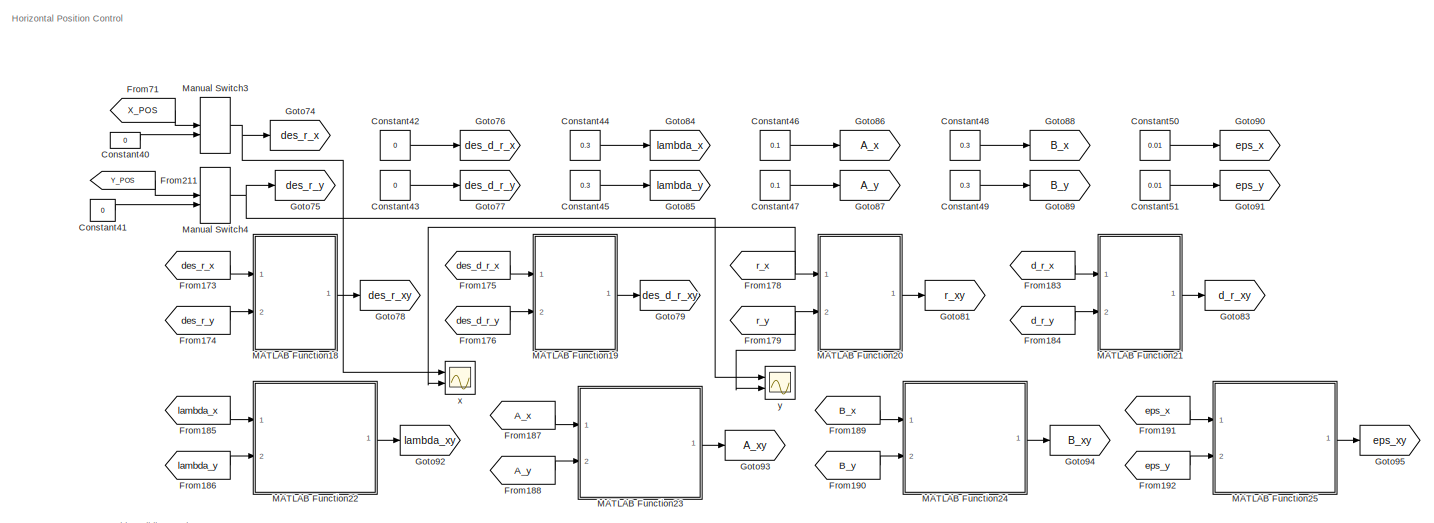
[diagram: Sliding Mode Control/Position Control - part 1/3, top center region]
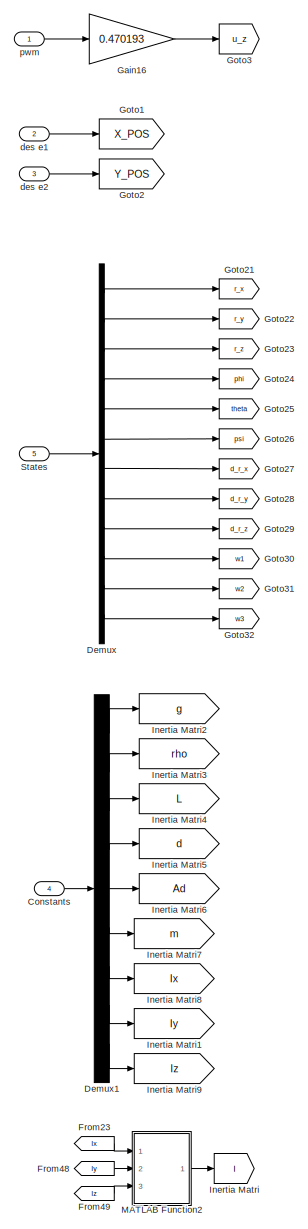
[diagram: Sliding Mode Control/Position Control - part 2/3, left side, full height]
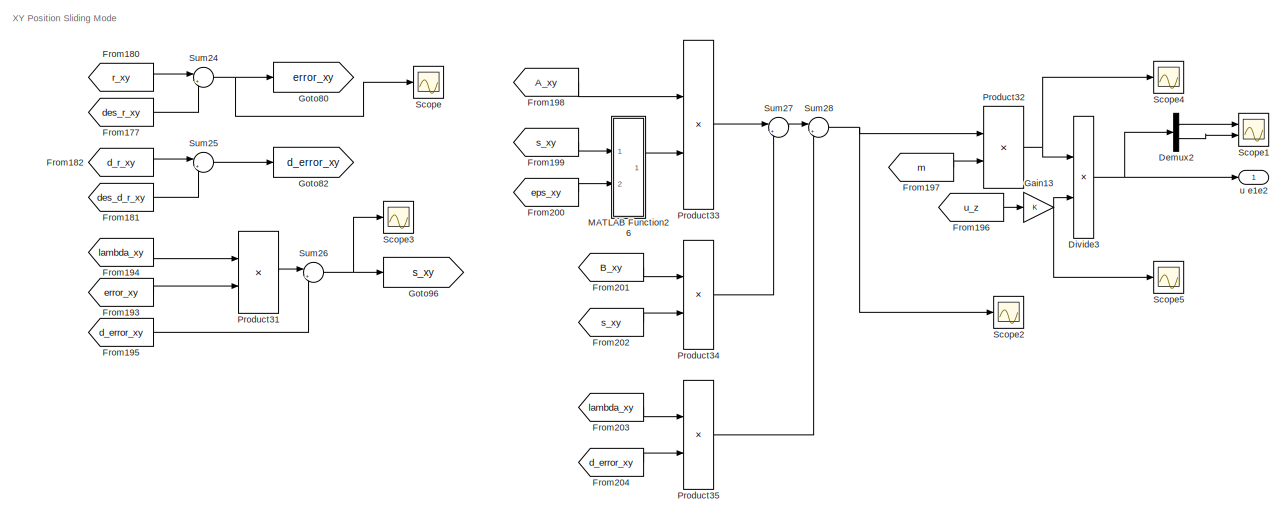
[diagram: Sliding Mode Control/Position Control - part 3/3, central region]
BLOCK [SubSystem] Sliding Mode Control/Position Control
  Ports = [5, 1]
  RequestExecContextInheritance = off
BLOCK [Constant] Sliding Mode Control/Position Control/Constant40
  Value = 0
BLOCK [Constant] Sliding Mode Control/Position Control/Constant41
  Value = 0
BLOCK [Constant] Sliding Mode Control/Position Control/Constant42
  Value = 0
BLOCK [Constant] Sliding Mode Control/Position Control/Constant43
  Value = 0
BLOCK [Constant] Sliding Mode Control/Position Control/Constant44
  Value = 0.3
BLOCK [Constant] Sliding Mode Control/Position Control/Constant45
  Value = 0.3
BLOCK [Constant] Sliding Mode Control/Position Control/Constant46
  Value = 0.1
BLOCK [Constant] Sliding Mode Control/Position Control/Constant47
  Value = 0.1
BLOCK [Constant] Sliding Mode Control/Position Control/Constant48
  Value = 0.3
BLOCK [Constant] Sliding Mode Control/Position Control/Constant49
  Value = 0.3
BLOCK [Constant] Sliding Mode Control/Position Control/Constant50
  Value = 0.01
BLOCK [Constant] Sliding Mode Control/Position Control/Constant51
  Value = 0.01
BLOCK [Inport] Sliding Mode Control/Position Control/Constants
  Port = 4
BLOCK [Demux] Sliding Mode Control/Position Control/Demux
  Outputs = 12
  Ports = [1, 12]
BLOCK [Demux] Sliding Mode Control/Position Control/Demux1
  Outputs = 9
  Ports = [1, 9]
BLOCK [Demux] Sliding Mode Control/Position Control/Demux2
  Outputs = 2
  Ports = [1, 2]
BLOCK [Product] Sliding Mode Control/Position Control/Divide3
  Inputs = */
  Ports = [2, 1]
BLOCK [From] Sliding Mode Control/Position Control/From173
  GotoTag = des_r_x
BLOCK [From] Sliding Mode Control/Position Control/From174
  GotoTag = des_r_y
BLOCK [From] Sliding Mode Control/Position Control/From175
  GotoTag = des_d_r_x
BLOCK [From] Sliding Mode Control/Position Control/From176
  GotoTag = des_d_r_y
BLOCK [From] Sliding Mode Control/Position Control/From177
  GotoTag = des_r_xy
BLOCK [From] Sliding Mode Control/Position Control/From178
  GotoTag = r_x
BLOCK [From] Sliding Mode Control/Position Control/From179
  GotoTag = r_y
BLOCK [From] Sliding Mode Control/Position Control/From180
  GotoTag = r_xy
BLOCK [From] Sliding Mode Control/Position Control/From181
  GotoTag = des_d_r_xy
BLOCK [From] Sliding Mode Control/Position Control/From182
  GotoTag = d_r_xy
BLOCK [From] Sliding Mode Control/Position Control/From183
  GotoTag = d_r_x
BLOCK [From] Sliding Mode Control/Position Control/From184
  GotoTag = d_r_y
BLOCK [From] Sliding Mode Control/Position Control/From185
  GotoTag = lambda_x
BLOCK [From] Sliding Mode Control/Position Control/From186
  GotoTag = lambda_y
BLOCK [From] Sliding Mode Control/Position Control/From187
  GotoTag = A_x
BLOCK [From] Sliding Mode Control/Position Control/From188
  GotoTag = A_y
BLOCK [From] Sliding Mode Control/Position Control/From189
  GotoTag = B_x
BLOCK [From] Sliding Mode Control/Position Control/From190
  GotoTag = B_y
BLOCK [From] Sliding Mode Control/Position Control/From191
  GotoTag = eps_x
BLOCK [From] Sliding Mode Control/Position Control/From192
  GotoTag = eps_y
BLOCK [From] Sliding Mode Control/Position Control/From193
  GotoTag = error_xy
BLOCK [From] Sliding Mode Control/Position Control/From194
  GotoTag = lambda_xy
BLOCK [From] Sliding Mode Control/Position Control/From195
  GotoTag = d_error_xy
BLOCK [From] Sliding Mode Control/Position Control/From196
  GotoTag = u_z
BLOCK [From] Sliding Mode Control/Position Control/From197
  GotoTag = m
BLOCK [From] Sliding Mode Control/Position Control/From198
  GotoTag = A_xy
BLOCK [From] Sliding Mode Control/Position Control/From199
  GotoTag = s_xy
BLOCK [From] Sliding Mode Control/Position Control/From200
  GotoTag = eps_xy
BLOCK [From] Sliding Mode Control/Position Control/From201
  GotoTag = B_xy
BLOCK [From] Sliding Mode Control/Position Control/From202
  GotoTag = s_xy
BLOCK [From] Sliding Mode Control/Position Control/From203
  GotoTag = lambda_xy
BLOCK [From] Sliding Mode Control/Position Control/From204
  GotoTag = d_error_xy
BLOCK [From] Sliding Mode Control/Position Control/From211
  GotoTag = Y_POS
BLOCK [From] Sliding Mode Control/Position Control/From23
  GotoTag = Ix
BLOCK [From] Sliding Mode Control/Position Control/From48
  GotoTag = Iy
BLOCK [From] Sliding Mode Control/Position Control/From49
  GotoTag = Iz
BLOCK [From] Sliding Mode Control/Position Control/From71
  GotoTag = X_POS
BLOCK [Gain] Sliding Mode Control/Position Control/Gain13
BLOCK [Gain] Sliding Mode Control/Position Control/Gain16
  Gain = 0.470193
BLOCK [Goto] Sliding Mode Control/Position Control/Goto1
  GotoTag = X_POS
BLOCK [Goto] Sliding Mode Control/Position Control/Goto2
  GotoTag = Y_POS
BLOCK [Goto] Sliding Mode Control/Position Control/Goto21
  GotoTag = r_x
BLOCK [Goto] Sliding Mode Control/Position Control/Goto22
  GotoTag = r_y
BLOCK [Goto] Sliding Mode Control/Position Control/Goto23
  GotoTag = r_z
BLOCK [Goto] Sliding Mode Control/Position Control/Goto24
  GotoTag = phi
BLOCK [Goto] Sliding Mode Control/Position Control/Goto25
  GotoTag = theta
BLOCK [Goto] Sliding Mode Control/Position Control/Goto26
  GotoTag = psi
BLOCK [Goto] Sliding Mode Control/Position Control/Goto27
  GotoTag = d_r_x
BLOCK [Goto] Sliding Mode Control/Position Control/Goto28
  GotoTag = d_r_y
BLOCK [Goto] Sliding Mode Control/Position Control/Goto29
  GotoTag = d_r_z
BLOCK [Goto] Sliding Mode Control/Position Control/Goto3
  GotoTag = u_z
BLOCK [Goto] Sliding Mode Control/Position Control/Goto30
  GotoTag = w1
BLOCK [Goto] Sliding Mode Control/Position Control/Goto31
  GotoTag = w2
BLOCK [Goto] Sliding Mode Control/Position Control/Goto32
  GotoTag = w3
BLOCK [Goto] Sliding Mode Control/Position Control/Goto74
  GotoTag = des_r_x
BLOCK [Goto] Sliding Mode Control/Position Control/Goto75
  GotoTag = des_r_y
BLOCK [Goto] Sliding Mode Control/Position Control/Goto76
  GotoTag = des_d_r_x
BLOCK [Goto] Sliding Mode Control/Position Control/Goto77
  GotoTag = des_d_r_y
BLOCK [Goto] Sliding Mode Control/Position Control/Goto78
  GotoTag = des_r_xy
BLOCK [Goto] Sliding Mode Control/Position Control/Goto79
  GotoTag = des_d_r_xy
BLOCK [Goto] Sliding Mode Control/Position Control/Goto80
  GotoTag = error_xy
BLOCK [Goto] Sliding Mode Control/Position Control/Goto81
  GotoTag = r_xy
BLOCK [Goto] Sliding Mode Control/Position Control/Goto82
  GotoTag = d_error_xy
BLOCK [Goto] Sliding Mode Control/Position Control/Goto83
  GotoTag = d_r_xy
BLOCK [Goto] Sliding Mode Control/Position Control/Goto84
  GotoTag = lambda_x
BLOCK [Goto] Sliding Mode Control/Position Control/Goto85
  GotoTag = lambda_y
BLOCK [Goto] Sliding Mode Control/Position Control/Goto86
  GotoTag = A_x
BLOCK [Goto] Sliding Mode Control/Position Control/Goto87
  GotoTag = A_y
BLOCK [Goto] Sliding Mode Control/Position Control/Goto88
  GotoTag = B_x
BLOCK [Goto] Sliding Mode Control/Position Control/Goto89
  GotoTag = B_y
BLOCK [Goto] Sliding Mode Control/Position Control/Goto90
  GotoTag = eps_x
BLOCK [Goto] Sliding Mode Control/Position Control/Goto91
  GotoTag = eps_y
BLOCK [Goto] Sliding Mode Control/Position Control/Goto92
  GotoTag = lambda_xy
BLOCK [Goto] Sliding Mode Control/Position Control/Goto93
  GotoTag = A_xy
BLOCK [Goto] Sliding Mode Control/Position Control/Goto94
  GotoTag = B_xy
BLOCK [Goto] Sliding Mode Control/Position Control/Goto95
  GotoTag = eps_xy
BLOCK [Goto] Sliding Mode Control/Position Control/Goto96
  GotoTag = s_xy
BLOCK [Goto] Sliding Mode Control/Position Control/Inertia Matri
  GotoTag = I
BLOCK [Goto] Sliding Mode Control/Position Control/Inertia Matri1
  GotoTag = Iy
BLOCK [Goto] Sliding Mode Control/Position Control/Inertia Matri2
  GotoTag = g
BLOCK [Goto] Sliding Mode Control/Position Control/Inertia Matri3
  GotoTag = rho
BLOCK [Goto] Sliding Mode Control/Position Control/Inertia Matri4
  GotoTag = L
BLOCK [Goto] Sliding Mode Control/Position Control/Inertia Matri5
  GotoTag = d
BLOCK [Goto] Sliding Mode Control/Position Control/Inertia Matri6
  GotoTag = Ad
BLOCK [Goto] Sliding Mode Control/Position Control/Inertia Matri7
  GotoTag = m
BLOCK [Goto] Sliding Mode Control/Position Control/Inertia Matri8
  GotoTag = Ix
BLOCK [Goto] Sliding Mode Control/Position Control/Inertia Matri9
  GotoTag = Iz
BLOCK [SubSystem] Sliding Mode Control/Position Control/MATLAB Function18
  ErrorFcn = Stateflow.Translate.translate
  PermitHierarchicalResolution = ExplicitOnly
  Ports = [2, 1]
  RequestExecContextInheritance = off
  SFBlockType = MATLAB Function
  TreatAsAtomicUnit = on
BLOCK [Demux] Sliding Mode Control/Position Control/MATLAB Function18/ Demux 
  Outputs = 1
  Ports = [1, 1]
BLOCK [S-Function] Sliding Mode Control/Position Control/MATLAB Function18/ SFunction 
  EnableBusSupport = on
  FunctionName = sf_sfun
  PortCounts = [2 2]
  Ports = [2, 2]
  SFcnIsStateOwnerBlock = off
  SFunctionDeploymentMode = off
  Tag = Stateflow S-Function 19
BLOCK [Terminator] Sliding Mode Control/Position Control/MATLAB Function18/ Terminator 
BLOCK [Outport] Sliding Mode Control/Position Control/MATLAB Function18/des_r
BLOCK [Inport] Sliding Mode Control/Position Control/MATLAB Function18/des_r_x
BLOCK [Inport] Sliding Mode Control/Position Control/MATLAB Function18/des_r_y
  Port = 2
BLOCK [SubSystem] Sliding Mode Control/Position Control/MATLAB Function19
  ErrorFcn = Stateflow.Translate.translate
  PermitHierarchicalResolution = ExplicitOnly
  Ports = [2, 1]
  RequestExecContextInheritance = off
  SFBlockType = MATLAB Function
  TreatAsAtomicUnit = on
BLOCK [Demux] Sliding Mode Control/Position Control/MATLAB Function19/ Demux 
  Outputs = 1
  Ports = [1, 1]
BLOCK [S-Function] Sliding Mode Control/Position Control/MATLAB Function19/ SFunction 
  EnableBusSupport = on
  FunctionName = sf_sfun
  PortCounts = [2 2]
  Ports = [2, 2]
  SFcnIsStateOwnerBlock = off
  SFunctionDeploymentMode = off
  Tag = Stateflow S-Function 20
BLOCK [Terminator] Sliding Mode Control/Position Control/MATLAB Function19/ Terminator 
BLOCK [Outport] Sliding Mode Control/Position Control/MATLAB Function19/des_d_r
BLOCK [Inport] Sliding Mode Control/Position Control/MATLAB Function19/des_d_r_x
BLOCK [Inport] Sliding Mode Control/Position Control/MATLAB Function19/des_d_r_y
  Port = 2
BLOCK [SubSystem] Sliding Mode Control/Position Control/MATLAB Function2
  ErrorFcn = Stateflow.Translate.translate
  PermitHierarchicalResolution = ExplicitOnly
  Ports = [3, 1]
  RequestExecContextInheritance = off
  SFBlockType = MATLAB Function
  TreatAsAtomicUnit = on
BLOCK [Demux] Sliding Mode Control/Position Control/MATLAB Function2/ Demux 
  Outputs = 1
  Ports = [1, 1]
BLOCK [S-Function] Sliding Mode Control/Position Control/MATLAB Function2/ SFunction 
  EnableBusSupport = on
  FunctionName = sf_sfun
  PortCounts = [3 2]
  Ports = [3, 2]
  SFcnIsStateOwnerBlock = off
  SFunctionDeploymentMode = off
  Tag = Stateflow S-Function 33
BLOCK [Terminator] Sliding Mode Control/Position Control/MATLAB Function2/ Terminator 
BLOCK [Outport] Sliding Mode Control/Position Control/MATLAB Function2/I_v
BLOCK [Inport] Sliding Mode Control/Position Control/MATLAB Function2/Ix
BLOCK [Inport] Sliding Mode Control/Position Control/MATLAB Function2/Iy
  Port = 2
BLOCK [Inport] Sliding Mode Control/Position Control/MATLAB Function2/Iz
  Port = 3
BLOCK [SubSystem] Sliding Mode Control/Position Control/MATLAB Function20
  ErrorFcn = Stateflow.Translate.translate
  PermitHierarchicalResolution = ExplicitOnly
  Ports = [2, 1]
  RequestExecContextInheritance = off
  SFBlockType = MATLAB Function
  TreatAsAtomicUnit = on
BLOCK [Demux] Sliding Mode Control/Position Control/MATLAB Function20/ Demux 
  Outputs = 1
  Ports = [1, 1]
BLOCK [S-Function] Sliding Mode Control/Position Control/MATLAB Function20/ SFunction 
  EnableBusSupport = on
  FunctionName = sf_sfun
  PortCounts = [2 2]
  Ports = [2, 2]
  SFcnIsStateOwnerBlock = off
  SFunctionDeploymentMode = off
  Tag = Stateflow S-Function 21
BLOCK [Terminator] Sliding Mode Control/Position Control/MATLAB Function20/ Terminator 
BLOCK [Inport] Sliding Mode Control/Position Control/MATLAB Function20/r_x
BLOCK [Outport] Sliding Mode Control/Position Control/MATLAB Function20/r_xy
BLOCK [Inport] Sliding Mode Control/Position Control/MATLAB Function20/r_y
  Port = 2
BLOCK [SubSystem] Sliding Mode Control/Position Control/MATLAB Function21
  ErrorFcn = Stateflow.Translate.translate
  PermitHierarchicalResolution = ExplicitOnly
  Ports = [2, 1]
  RequestExecContextInheritance = off
  SFBlockType = MATLAB Function
  TreatAsAtomicUnit = on
BLOCK [Demux] Sliding Mode Control/Position Control/MATLAB Function21/ Demux 
  Outputs = 1
  Ports = [1, 1]
BLOCK [S-Function] Sliding Mode Control/Position Control/MATLAB Function21/ SFunction 
  EnableBusSupport = on
  FunctionName = sf_sfun
  PortCounts = [2 2]
  Ports = [2, 2]
  SFcnIsStateOwnerBlock = off
  SFunctionDeploymentMode = off
  Tag = Stateflow S-Function 22
BLOCK [Terminator] Sliding Mode Control/Position Control/MATLAB Function21/ Terminator 
BLOCK [Inport] Sliding Mode Control/Position Control/MATLAB Function21/d_r_x
BLOCK [Outport] Sliding Mode Control/Position Control/MATLAB Function21/d_r_xy
BLOCK [Inport] Sliding Mode Control/Position Control/MATLAB Function21/d_r_y
  Port = 2
BLOCK [SubSystem] Sliding Mode Control/Position Control/MATLAB Function22
  ErrorFcn = Stateflow.Translate.translate
  PermitHierarchicalResolution = ExplicitOnly
  Ports = [2, 1]
  RequestExecContextInheritance = off
  SFBlockType = MATLAB Function
  TreatAsAtomicUnit = on
BLOCK [Demux] Sliding Mode Control/Position Control/MATLAB Function22/ Demux 
  Outputs = 1
  Ports = [1, 1]
BLOCK [S-Function] Sliding Mode Control/Position Control/MATLAB Function22/ SFunction 
  EnableBusSupport = on
  FunctionName = sf_sfun
  PortCounts = [2 2]
  Ports = [2, 2]
  SFcnIsStateOwnerBlock = off
  SFunctionDeploymentMode = off
  Tag = Stateflow S-Function 23
BLOCK [Terminator] Sliding Mode Control/Position Control/MATLAB Function22/ Terminator 
BLOCK [Inport] Sliding Mode Control/Position Control/MATLAB Function22/lambda_x
BLOCK [Outport] Sliding Mode Control/Position Control/MATLAB Function22/lambda_xy
BLOCK [Inport] Sliding Mode Control/Position Control/MATLAB Function22/lambda_y
  Port = 2
BLOCK [SubSystem] Sliding Mode Control/Position Control/MATLAB Function23
  ErrorFcn = Stateflow.Translate.translate
  PermitHierarchicalResolution = ExplicitOnly
  Ports = [2, 1]
  RequestExecContextInheritance = off
  SFBlockType = MATLAB Function
  TreatAsAtomicUnit = on
BLOCK [Demux] Sliding Mode Control/Position Control/MATLAB Function23/ Demux 
  Outputs = 1
  Ports = [1, 1]
BLOCK [S-Function] Sliding Mode Control/Position Control/MATLAB Function23/ SFunction 
  EnableBusSupport = on
  FunctionName = sf_sfun
  PortCounts = [2 2]
  Ports = [2, 2]
  SFcnIsStateOwnerBlock = off
  SFunctionDeploymentMode = off
  Tag = Stateflow S-Function 24
BLOCK [Terminator] Sliding Mode Control/Position Control/MATLAB Function23/ Terminator 
BLOCK [Inport] Sliding Mode Control/Position Control/MATLAB Function23/A_x
BLOCK [Outport] Sliding Mode Control/Position Control/MATLAB Function23/A_xy
BLOCK [Inport] Sliding Mode Control/Position Control/MATLAB Function23/A_y
  Port = 2
BLOCK [SubSystem] Sliding Mode Control/Position Control/MATLAB Function24
  ErrorFcn = Stateflow.Translate.translate
  PermitHierarchicalResolution = ExplicitOnly
  Ports = [2, 1]
  RequestExecContextInheritance = off
  SFBlockType = MATLAB Function
  TreatAsAtomicUnit = on
BLOCK [Demux] Sliding Mode Control/Position Control/MATLAB Function24/ Demux 
  Outputs = 1
  Ports = [1, 1]
BLOCK [S-Function] Sliding Mode Control/Position Control/MATLAB Function24/ SFunction 
  EnableBusSupport = on
  FunctionName = sf_sfun
  PortCounts = [2 2]
  Ports = [2, 2]
  SFcnIsStateOwnerBlock = off
  SFunctionDeploymentMode = off
  Tag = Stateflow S-Function 25
BLOCK [Terminator] Sliding Mode Control/Position Control/MATLAB Function24/ Terminator 
BLOCK [Inport] Sliding Mode Control/Position Control/MATLAB Function24/B_x
BLOCK [Outport] Sliding Mode Control/Position Control/MATLAB Function24/B_xy
BLOCK [Inport] Sliding Mode Control/Position Control/MATLAB Function24/B_y
  Port = 2
BLOCK [SubSystem] Sliding Mode Control/Position Control/MATLAB Function25
  ErrorFcn = Stateflow.Translate.translate
  PermitHierarchicalResolution = ExplicitOnly
  Ports = [2, 1]
  RequestExecContextInheritance = off
  SFBlockType = MATLAB Function
  TreatAsAtomicUnit = on
BLOCK [Demux] Sliding Mode Control/Position Control/MATLAB Function25/ Demux 
  Outputs = 1
  Ports = [1, 1]
BLOCK [S-Function] Sliding Mode Control/Position Control/MATLAB Function25/ SFunction 
  EnableBusSupport = on
  FunctionName = sf_sfun
  PortCounts = [2 2]
  Ports = [2, 2]
  SFcnIsStateOwnerBlock = off
  SFunctionDeploymentMode = off
  Tag = Stateflow S-Function 26
BLOCK [Terminator] Sliding Mode Control/Position Control/MATLAB Function25/ Terminator 
BLOCK [Inport] Sliding Mode Control/Position Control/MATLAB Function25/eps_x
BLOCK [Outport] Sliding Mode Control/Position Control/MATLAB Function25/eps_xy
BLOCK [Inport] Sliding Mode Control/Position Control/MATLAB Function25/eps_y
  Port = 2
BLOCK [SubSystem] Sliding Mode Control/Position Control/MATLAB Function26
  ErrorFcn = Stateflow.Translate.translate
  PermitHierarchicalResolution = ExplicitOnly
  Ports = [2, 1]
  RequestExecContextInheritance = off
  SFBlockType = MATLAB Function
  TreatAsAtomicUnit = on
BLOCK [Demux] Sliding Mode Control/Position Control/MATLAB Function26/ Demux 
  Outputs = 1
  Ports = [1, 1]
BLOCK [S-Function] Sliding Mode Control/Position Control/MATLAB Function26/ SFunction 
  EnableBusSupport = on
  FunctionName = sf_sfun
  PortCounts = [2 2]
  Ports = [2, 2]
  SFcnIsStateOwnerBlock = off
  SFunctionDeploymentMode = off
  Tag = Stateflow S-Function 27
BLOCK [Terminator] Sliding Mode Control/Position Control/MATLAB Function26/ Terminator 
BLOCK [Inport] Sliding Mode Control/Position Control/MATLAB Function26/eps
  Port = 2
BLOCK [Inport] Sliding Mode Control/Position Control/MATLAB Function26/s
BLOCK [Outport] Sliding Mode Control/Position Control/MATLAB Function26/y
BLOCK [ManualSwitch] Sliding Mode Control/Position Control/Manual Switch3
BLOCK [ManualSwitch] Sliding Mode Control/Position Control/Manual Switch4
BLOCK [Product] Sliding Mode Control/Position Control/Product31
  Multiplication = Matrix(*)
  Ports = [2, 1]
BLOCK [Product] Sliding Mode Control/Position Control/Product32
  Ports = [2, 1]
BLOCK [Product] Sliding Mode Control/Position Control/Product33
  Multiplication = Matrix(*)
  Ports = [2, 1]
BLOCK [Product] Sliding Mode Control/Position Control/Product34
  Multiplication = Matrix(*)
  Ports = [2, 1]
BLOCK [Product] Sliding Mode Control/Position Control/Product35
  Multiplication = Matrix(*)
  Ports = [2, 1]
BLOCK [Scope] Sliding Mode Control/Position Control/Scope
  Floating = off
  NumInputPorts = 1
  Ports = [1]
  ScopeSpecificationString = Simulink.scopes.TimeScopeBlockCfg('CurrentConfiguration', extmgr.ConfigurationSet(extmgr.Configuration('Core','General UI',true),extmgr.Configuration('Core','Source UI',true),extmgr.Configuration('Sources','WiredSimulink',true,'DataLoggingVariableName','ScopeData4'),extmgr.Configuration('Visuals','Time Domain',true,'SerializedDisplays',{struct('MinYLimReal','-1.12586','MaxYLimReal','0.1252','YLabe...<+1374ch>
BLOCK [Scope] Sliding Mode Control/Position Control/Scope1
  Floating = off
  NumInputPorts = 2
  Ports = [2]
  ScopeSpecificationString = Simulink.scopes.TimeScopeBlockCfg('CurrentConfiguration', extmgr.ConfigurationSet(extmgr.Configuration('Core','General UI',true),extmgr.Configuration('Core','Source UI',true),extmgr.Configuration('Sources','WiredSimulink',true,'DataLoggingVariableName','ScopeData5'),extmgr.Configuration('Visuals','Time Domain',true,'SerializedDisplays',{struct('MinYLimReal','-0.02464','MaxYLimReal','0.02278','YLab...<+2073ch>
BLOCK [Scope] Sliding Mode Control/Position Control/Scope2
  Floating = off
  NumInputPorts = 1
  Ports = [1]
  ScopeSpecificationString = Simulink.scopes.TimeScopeBlockCfg('CurrentConfiguration', extmgr.ConfigurationSet(extmgr.Configuration('Core','General UI',true),extmgr.Configuration('Core','Source UI',true),extmgr.Configuration('Sources','WiredSimulink',true,'DataLoggingVariableName','ScopeData6'),extmgr.Configuration('Visuals','Time Domain',true,'SerializedDisplays',{struct('MinYLimReal','-0.23994','MaxYLimReal','0.22185','YLab...<+1376ch>
BLOCK [Scope] Sliding Mode Control/Position Control/Scope3
  Floating = off
  NumInputPorts = 1
  Ports = [1]
  ScopeSpecificationString = Simulink.scopes.TimeScopeBlockCfg('CurrentConfiguration', extmgr.ConfigurationSet(extmgr.Configuration('Core','General UI',true),extmgr.Configuration('Core','Source UI',true),extmgr.Configuration('Sources','WiredSimulink',true,'DataLoggingVariableName','ScopeData4'),extmgr.Configuration('Visuals','Time Domain',true,'SerializedDisplays',{struct('MinYLimReal','-0.34968','MaxYLimReal','0.14713','YLab...<+1447ch>
BLOCK [Scope] Sliding Mode Control/Position Control/Scope4
  Floating = off
  NumInputPorts = 1
  Ports = [1]
  ScopeSpecificationString = Simulink.scopes.TimeScopeBlockCfg('CurrentConfiguration', extmgr.ConfigurationSet(extmgr.Configuration('Core','General UI',true),extmgr.Configuration('Core','Source UI',true),extmgr.Configuration('Sources','WiredSimulink',true,'DataLoggingVariableName','ScopeData7'),extmgr.Configuration('Visuals','Time Domain',true,'SerializedDisplays',{struct('MinYLimReal','-0.83978','MaxYLimReal','0.77648','YLab...<+1414ch>
BLOCK [Scope] Sliding Mode Control/Position Control/Scope5
  Floating = off
  NumInputPorts = 1
  Ports = [1]
  ScopeSpecificationString = Simulink.scopes.TimeScopeBlockCfg('CurrentConfiguration', extmgr.ConfigurationSet(extmgr.Configuration('Core','General UI',true),extmgr.Configuration('Core','Source UI',true),extmgr.Configuration('Sources','WiredSimulink',true,'DataLoggingVariableName','ScopeData8'),extmgr.Configuration('Visuals','Time Domain',true,'SerializedDisplays',{struct('MinYLimReal','31.01674','MaxYLimReal','48.79736','YLa...<+1520ch>
BLOCK [Inport] Sliding Mode Control/Position Control/States
  Port = 5
BLOCK [Sum] Sliding Mode Control/Position Control/Sum24
  Inputs = |+-
  Ports = [2, 1]
BLOCK [Sum] Sliding Mode Control/Position Control/Sum25
  Inputs = |+-
  Ports = [2, 1]
BLOCK [Sum] Sliding Mode Control/Position Control/Sum26
  Inputs = |++
  Ports = [2, 1]
BLOCK [Sum] Sliding Mode Control/Position Control/Sum27
  Inputs = |++
  Ports = [2, 1]
BLOCK [Sum] Sliding Mode Control/Position Control/Sum28
  Inputs = |++
  Ports = [2, 1]
BLOCK [Inport] Sliding Mode Control/Position Control/des e1
  Port = 2
BLOCK [Inport] Sliding Mode Control/Position Control/des e2
  Port = 3
BLOCK [Inport] Sliding Mode Control/Position Control/pwm
BLOCK [Outport] Sliding Mode Control/Position Control/u e1e2
BLOCK [Scope] Sliding Mode Control/Position Control/x
  Floating = off
  NumInputPorts = 2
  Ports = [2]
  ScopeSpecificationString = Simulink.scopes.TimeScopeBlockCfg('CurrentConfiguration', extmgr.ConfigurationSet(extmgr.Configuration('Core','General UI',true),extmgr.Configuration('Core','Source UI',true),extmgr.Configuration('Sources','WiredSimulink',true,'DataLoggingVariableName','ScopeData2'),extmgr.Configuration('Visuals','Time Domain',true,'SerializedDisplays',{struct('MinYLimReal','0.93839','MaxYLimReal','0.96058','YLabe...<+1452ch>
BLOCK [Scope] Sliding Mode Control/Position Control/y
  Floating = off
  NumInputPorts = 2
  Ports = [2]
  ScopeSpecificationString = Simulink.scopes.TimeScopeBlockCfg('CurrentConfiguration', extmgr.ConfigurationSet(extmgr.Configuration('Core','General UI',true),extmgr.Configuration('Core','Source UI',true),extmgr.Configuration('Sources','WiredSimulink',true,'DataLoggingVariableName','ScopeData3'),extmgr.Configuration('Visuals','Time Domain',true,'SerializedDisplays',{struct('MinYLimReal','-0.96404','MaxYLimReal','1.40502','YLab...<+1456ch>
BLOCK [Inport] Sliding Mode Control/States
  Port = 5
BLOCK [SubSystem] Sliding Mode Control/Torque to Deflector Angles
  Ports = [3, 1]
  RequestExecContextInheritance = off
BLOCK [Inport] Sliding Mode Control/Torque to Deflector Angles/Constants
  Port = 3
BLOCK [Outport] Sliding Mode Control/Torque to Deflector Angles/Deflector Angles
BLOCK [Demux] Sliding Mode Control/Torque to Deflector Angles/Demux1
  Outputs = 9
  Ports = [1, 9]
BLOCK [From] Sliding Mode Control/Torque to Deflector Angles/From165
  GotoTag = u_actuator
BLOCK [From] Sliding Mode Control/Torque to Deflector Angles/From166
  GotoTag = L
BLOCK [From] Sliding Mode Control/Torque to Deflector Angles/From167
  GotoTag = d
BLOCK [From] Sliding Mode Control/Torque to Deflector Angles/From168
  GotoTag = actuator_force
BLOCK [From] Sliding Mode Control/Torque to Deflector Angles/From169
  GotoTag = rho
BLOCK [From] Sliding Mode Control/Torque to Deflector Angles/From170
  GotoTag = Ad
BLOCK [From] Sliding Mode Control/Torque to Deflector Angles/From171
  GotoTag = pwm
BLOCK [From] Sliding Mode Control/Torque to Deflector Angles/From23
  GotoTag = Ix
BLOCK [From] Sliding Mode Control/Torque to Deflector Angles/From48
  GotoTag = Iy
BLOCK [From] Sliding Mode Control/Torque to Deflector Angles/From49
  GotoTag = Iz
BLOCK [Goto] Sliding Mode Control/Torque to Deflector Angles/Goto1
  GotoTag = u_actuator
BLOCK [Goto] Sliding Mode Control/Torque to Deflector Angles/Goto72
  GotoTag = actuator_force
BLOCK [Goto] Sliding Mode Control/Torque to Deflector Angles/Inertia Matri
  GotoTag = I
BLOCK [Goto] Sliding Mode Control/Torque to Deflector Angles/Inertia Matri1
  GotoTag = Iy
BLOCK [Goto] Sliding Mode Control/Torque to Deflector Angles/Inertia Matri11
  GotoTag = pwm
BLOCK [Goto] Sliding Mode Control/Torque to Deflector Angles/Inertia Matri2
  GotoTag = g
BLOCK [Goto] Sliding Mode Control/Torque to Deflector Angles/Inertia Matri3
  GotoTag = rho
BLOCK [Goto] Sliding Mode Control/Torque to Deflector Angles/Inertia Matri4
  GotoTag = L
BLOCK [Goto] Sliding Mode Control/Torque to Deflector Angles/Inertia Matri5
  GotoTag = d
BLOCK [Goto] Sliding Mode Control/Torque to Deflector Angles/Inertia Matri6
  GotoTag = Ad
BLOCK [Goto] Sliding Mode Control/Torque to Deflector Angles/Inertia Matri7
  GotoTag = m
BLOCK [Goto] Sliding Mode Control/Torque to Deflector Angles/Inertia Matri8
  GotoTag = Ix
BLOCK [Goto] Sliding Mode Control/Torque to Deflector Angles/Inertia Matri9
  GotoTag = Iz
BLOCK [SubSystem] Sliding Mode Control/Torque to Deflector Angles/MATLAB Function16
  ErrorFcn = Stateflow.Translate.translate
  PermitHierarchicalResolution = ExplicitOnly
  Ports = [3, 1]
  RequestExecContextInheritance = off
  SFBlockType = MATLAB Function
  TreatAsAtomicUnit = on
BLOCK [Demux] Sliding Mode Control/Torque to Deflector Angles/MATLAB Function16/ Demux 
  Outputs = 1
  Ports = [1, 1]
BLOCK [S-Function] Sliding Mode Control/Torque to Deflector Angles/MATLAB Function16/ SFunction 
  EnableBusSupport = on
  FunctionName = sf_sfun
  PortCounts = [3 2]
  Ports = [3, 2]
  SFcnIsStateOwnerBlock = off
  SFunctionDeploymentMode = off
  Tag = Stateflow S-Function 17
BLOCK [Terminator] Sliding Mode Control/Torque to Deflector Angles/MATLAB Function16/ Terminator 
BLOCK [Inport] Sliding Mode Control/Torque to Deflector Angles/MATLAB Function16/L
  Port = 2
BLOCK [Inport] Sliding Mode Control/Torque to Deflector Angles/MATLAB Function16/d
BLOCK [Outport] Sliding Mode Control/Torque to Deflector Angles/MATLAB Function16/f_actuator
BLOCK [Inport] Sliding Mode Control/Torque to Deflector Angles/MATLAB Function16/u_actuator
  Port = 3
BLOCK [SubSystem] Sliding Mode Control/Torque to Deflector Angles/MATLAB Function17
  ErrorFcn = Stateflow.Translate.translate
  PermitHierarchicalResolution = ExplicitOnly
  Ports = [4, 2]
  RequestExecContextInheritance = off
  SFBlockType = MATLAB Function
  TreatAsAtomicUnit = on
BLOCK [Demux] Sliding Mode Control/Torque to Deflector Angles/MATLAB Function17/ Demux 
  Outputs = 1
  Ports = [1, 1]
BLOCK [S-Function] Sliding Mode Control/Torque to Deflector Angles/MATLAB Function17/ SFunction 
  EnableBusSupport = on
  FunctionName = sf_sfun
  PortCounts = [4 3]
  Ports = [4, 3]
  SFcnIsStateOwnerBlock = off
  SFunctionDeploymentMode = off
  Tag = Stateflow S-Function 18
BLOCK [Terminator] Sliding Mode Control/Torque to Deflector Angles/MATLAB Function17/ Terminator 
BLOCK [Inport] Sliding Mode Control/Torque to Deflector Angles/MATLAB Function17/actuator_force
  Port = 4
BLOCK [Inport] Sliding Mode Control/Torque to Deflector Angles/MATLAB Function17/area
BLOCK [Inport] Sliding Mode Control/Torque to Deflector Angles/MATLAB Function17/density
  Port = 2
BLOCK [Inport] Sliding Mode Control/Torque to Deflector Angles/MATLAB Function17/pwRate
  Port = 3
BLOCK [Outport] Sliding Mode Control/Torque to Deflector Angles/MATLAB Function17/u_angles
BLOCK [Outport] Sliding Mode Control/Torque to Deflector Angles/MATLAB Function17/y
  Port = 2
BLOCK [SubSystem] Sliding Mode Control/Torque to Deflector Angles/MATLAB Function2
  ErrorFcn = Stateflow.Translate.translate
  PermitHierarchicalResolution = ExplicitOnly
  Ports = [3, 1]
  RequestExecContextInheritance = off
  SFBlockType = MATLAB Function
  TreatAsAtomicUnit = on
BLOCK [Demux] Sliding Mode Control/Torque to Deflector Angles/MATLAB Function2/ Demux 
  Outputs = 1
  Ports = [1, 1]
BLOCK [S-Function] Sliding Mode Control/Torque to Deflector Angles/MATLAB Function2/ SFunction 
  EnableBusSupport = on
  FunctionName = sf_sfun
  PortCounts = [3 2]
  Ports = [3, 2]
  SFcnIsStateOwnerBlock = off
  SFunctionDeploymentMode = off
  Tag = Stateflow S-Function 35
BLOCK [Terminator] Sliding Mode Control/Torque to Deflector Angles/MATLAB Function2/ Terminator 
BLOCK [Outport] Sliding Mode Control/Torque to Deflector Angles/MATLAB Function2/I_v
BLOCK [Inport] Sliding Mode Control/Torque to Deflector Angles/MATLAB Function2/Ix
BLOCK [Inport] Sliding Mode Control/Torque to Deflector Angles/MATLAB Function2/Iy
  Port = 2
BLOCK [Inport] Sliding Mode Control/Torque to Deflector Angles/MATLAB Function2/Iz
  Port = 3
BLOCK [Scope] Sliding Mode Control/Torque to Deflector Angles/Scope14
  Floating = off
  NumInputPorts = 1
  Ports = [1]
  ScopeSpecificationString = Simulink.scopes.TimeScopeBlockCfg('CurrentConfiguration', extmgr.ConfigurationSet(extmgr.Configuration('Core','General UI',true),extmgr.Configuration('Core','Source UI',true),extmgr.Configuration('Sources','WiredSimulink',true,'DataLoggingVariableName','ScopeData2'),extmgr.Configuration('Visuals','Time Domain',true,'SerializedDisplays',{struct('MinYLimReal','-0.01812','MaxYLimReal','0.01812','YLab...<+1551ch>
BLOCK [Scope] Sliding Mode Control/Torque to Deflector Angles/Scope2
  Floating = off
  NumInputPorts = 1
  Ports = [1]
  ScopeSpecificationString = Simulink.scopes.TimeScopeBlockCfg('CurrentConfiguration', extmgr.ConfigurationSet(extmgr.Configuration('Core','General UI',true),extmgr.Configuration('Core','Source UI',true),extmgr.Configuration('Sources','WiredSimulink',true,'DataLoggingVariableName','ScopeData4'),extmgr.Configuration('Visuals','Time Domain',true,'SerializedDisplays',{struct('MinYLimReal','-0.11137','MaxYLimReal','0.17096','YLab...<+1515ch>
BLOCK [Scope] Sliding Mode Control/Torque to Deflector Angles/Scope6
  Floating = off
  NumInputPorts = 1
  Ports = [1]
  ScopeSpecificationString = Simulink.scopes.TimeScopeBlockCfg('CurrentConfiguration', extmgr.ConfigurationSet(extmgr.Configuration('Core','General UI',true),extmgr.Configuration('Core','Source UI',true),extmgr.Configuration('Sources','WiredSimulink',true,'DataLoggingVariableName','ScopeData7'),extmgr.Configuration('Visuals','Time Domain',true,'SerializedDisplays',{struct('MinYLimReal','-0.03712','MaxYLimReal','0.00418','YLab...<+1448ch>
BLOCK [Inport] Sliding Mode Control/Torque to Deflector Angles/pwm
BLOCK [Inport] Sliding Mode Control/Torque to Deflector Angles/u torque
  Port = 2
BLOCK [Inport] Sliding Mode Control/des e1
  Port = 2
BLOCK [Inport] Sliding Mode Control/des e2
  Port = 3
BLOCK [Inport] Sliding Mode Control/des e3
BLOCK [Inport] Sliding Mode Control/des yaw
  Port = 4
BLOCK [Outport] Sliding Mode Control/pwm
BLOCK [Goto] States
  GotoTag = STATES
BLOCK [SubSystem] VTOL Vehicle
  Ports = [4, 1]
  RequestExecContextInheritance = off
BLOCK [Constant] VTOL Vehicle/Air Density
  Value = 1.2041
BLOCK [Constant] VTOL Vehicle/Constant
  Value = 0
BLOCK [Constant] VTOL Vehicle/Constant1
  Value = 0
BLOCK [Constant] VTOL Vehicle/Constant10
  Value = 131.08
BLOCK [Constant] VTOL Vehicle/Constant11
  Value = 48.648
BLOCK [Constant] VTOL Vehicle/Constant12
  Value = 48.648
BLOCK [Constant] VTOL Vehicle/Constant13
  Value = 131.08
BLOCK [Constant] VTOL Vehicle/Constant14
  Value = 131.08
BLOCK [Constant] VTOL Vehicle/Constant15
  Value = 48.648
BLOCK [Constant] VTOL Vehicle/Constant16
  Value = 131.08
BLOCK [Constant] VTOL Vehicle/Constant2
  Value = 0
BLOCK [Constant] VTOL Vehicle/Constant3
  Value = 0
BLOCK [Constant] VTOL Vehicle/Constant4
  Value = 48.648
BLOCK [Inport] VTOL Vehicle/Deflector Angles
  Port = 2
BLOCK [Constant] VTOL Vehicle/Deflector Area
  Value = 0.0016201
BLOCK [Demux] VTOL Vehicle/Demux
  Ports = [1, 4]
BLOCK [Demux] VTOL Vehicle/Demux9
  Outputs = 3
  Ports = [1, 3]
BLOCK [Constant] VTOL Vehicle/Distance from COM to center of deflector
  Value = 0.0308
BLOCK [Constant] VTOL Vehicle/Distance from COM to deflector axis
  Value = 0.1016
BLOCK [TransferFcn] VTOL Vehicle/ESC//EDF Dynamics
  Denominator = [1 7.8 45.6]
  Numerator = [21.6]
BLOCK [Goto] VTOL Vehicle/Force from deflector 1
  GotoTag = F1
BLOCK [Goto] VTOL Vehicle/Force from deflector 2
  GotoTag = F2
BLOCK [Goto] VTOL Vehicle/Force from deflector 3
  GotoTag = F3
BLOCK [Goto] VTOL Vehicle/Force from deflector 4
  GotoTag = F4
BLOCK [From] VTOL Vehicle/From
  GotoTag = Ad
BLOCK [From] VTOL Vehicle/From1
  GotoTag = rho
BLOCK [From] VTOL Vehicle/From11
  GotoTag = pwm
BLOCK [From] VTOL Vehicle/From12
  GotoTag = Ad
BLOCK [From] VTOL Vehicle/From13
  GotoTag = rho
BLOCK [From] VTOL Vehicle/From15
  GotoTag = pwm
BLOCK [From] VTOL Vehicle/From16
  GotoTag = Ad
BLOCK [From] VTOL Vehicle/From17
  GotoTag = I
BLOCK [From] VTOL Vehicle/From18
  GotoTag = torque
BLOCK [From] VTOL Vehicle/From19
  GotoTag = rho
BLOCK [From] VTOL Vehicle/From21
  GotoTag = pwm
BLOCK [From] VTOL Vehicle/From22
  GotoTag = thrust
BLOCK [From] VTOL Vehicle/From23
  GotoTag = Ix
BLOCK [From] VTOL Vehicle/From24
  GotoTag = F1
BLOCK [From] VTOL Vehicle/From25
  GotoTag = F2
BLOCK [From] VTOL Vehicle/From26
  GotoTag = F3
BLOCK [From] VTOL Vehicle/From27
  GotoTag = F4
BLOCK [From] VTOL Vehicle/From28
  GotoTag = L
BLOCK [From] VTOL Vehicle/From29
  GotoTag = d
BLOCK [From] VTOL Vehicle/From30
  GotoTag = L
BLOCK [From] VTOL Vehicle/From31
  GotoTag = d
BLOCK [From] VTOL Vehicle/From32
  GotoTag = L
BLOCK [From] VTOL Vehicle/From33
  GotoTag = d
BLOCK [From] VTOL Vehicle/From34
  GotoTag = L
BLOCK [From] VTOL Vehicle/From35
  GotoTag = d
BLOCK [From] VTOL Vehicle/From4
  GotoTag = L
BLOCK [From] VTOL Vehicle/From48
  GotoTag = Iy
BLOCK [From] VTOL Vehicle/From49
  GotoTag = Iz
BLOCK [From] VTOL Vehicle/From5
  GotoTag = g
BLOCK [From] VTOL Vehicle/From6
  GotoTag = m
BLOCK [From] VTOL Vehicle/From62
  GotoTag = flapForces
BLOCK [From] VTOL Vehicle/From7
  GotoTag = pwm
BLOCK [From] VTOL Vehicle/From70
  GotoTag = pwm
BLOCK [From] VTOL Vehicle/From8
  GotoTag = Ad
BLOCK [From] VTOL Vehicle/From9
  GotoTag = rho
BLOCK [Gain] VTOL Vehicle/Gain
  Gain = 0.5
BLOCK [Gain] VTOL Vehicle/Gain1
  Gain = 1.143
BLOCK [Gain] VTOL Vehicle/Gain10
  Gain = 0.5
BLOCK [Gain] VTOL Vehicle/Gain11
  Gain = 1.143
BLOCK [Gain] VTOL Vehicle/Gain12
  Gain = 6.639
BLOCK [Gain] VTOL Vehicle/Gain14
  Gain = -1
BLOCK [Gain] VTOL Vehicle/Gain15
  Gain = -1
BLOCK [Gain] VTOL Vehicle/Gain2
  Gain = 6.639
BLOCK [Gain] VTOL Vehicle/Gain4
  Gain = 0.5
BLOCK [Gain] VTOL Vehicle/Gain5
  Gain = 1.143
BLOCK [Gain] VTOL Vehicle/Gain6
  Gain = 6.639
BLOCK [Gain] VTOL Vehicle/Gain7
  Gain = 0.5
BLOCK [Gain] VTOL Vehicle/Gain8
  Gain = 1.143
BLOCK [Gain] VTOL Vehicle/Gain9
  Gain = 6.639
BLOCK [Goto] VTOL Vehicle/Goto1
  GotoTag = g
BLOCK [Goto] VTOL Vehicle/Goto10
  GotoTag = Ad
BLOCK [Goto] VTOL Vehicle/Goto102
  GotoTag = torque
BLOCK [Goto] VTOL Vehicle/Goto2
  GotoTag = m
BLOCK [Goto] VTOL Vehicle/Goto3
  GotoTag = Ix
BLOCK [Goto] VTOL Vehicle/Goto33
  GotoTag = flapForces
BLOCK [Goto] VTOL Vehicle/Goto4
  GotoTag = Iy
BLOCK [Goto] VTOL Vehicle/Goto5
  GotoTag = Iz
BLOCK [Goto] VTOL Vehicle/Goto6
  GotoTag = L
BLOCK [Goto] VTOL Vehicle/Goto7
  GotoTag = d
BLOCK [Goto] VTOL Vehicle/Goto8
  GotoTag = rho
BLOCK [Constant] VTOL Vehicle/Gravity
  Value = 9.81
BLOCK [Goto] VTOL Vehicle/Inertia Matri
  GotoTag = I
BLOCK [Integrator] VTOL Vehicle/Integrator
  InitialCondition = [0;0;-1;0;0;0;0;0;0;0;0;0]
  NameLocation = top
  Ports = [1, 1]
BLOCK [Constant] VTOL Vehicle/Ix
  Value = 0.062
BLOCK [Constant] VTOL Vehicle/Iy
  Value = 0.051
BLOCK [Constant] VTOL Vehicle/Iz
  Value = 0.038
BLOCK [SubSystem] VTOL Vehicle/MATLAB Function
  ErrorFcn = Stateflow.Translate.translate
  PermitHierarchicalResolution = ExplicitOnly
  Ports = [9, 1]
  RequestExecContextInheritance = off
  SFBlockType = MATLAB Function
  TreatAsAtomicUnit = on
BLOCK [Demux] VTOL Vehicle/MATLAB Function/ Demux 
  Outputs = 1
  Ports = [1, 1]
BLOCK [S-Function] VTOL Vehicle/MATLAB Function/ SFunction 
  EnableBusSupport = on
  FunctionName = sf_sfun
  PortCounts = [9 2]
  Ports = [9, 2]
  SFcnIsStateOwnerBlock = off
  SFunctionDeploymentMode = off
  Tag = Stateflow S-Function 2
BLOCK [Terminator] VTOL Vehicle/MATLAB Function/ Terminator 
BLOCK [Inport] VTOL Vehicle/MATLAB Function/Inertia
  Port = 3
BLOCK [Inport] VTOL Vehicle/MATLAB Function/L
  Port = 6
BLOCK [Inport] VTOL Vehicle/MATLAB Function/extForce
  Port = 7
BLOCK [Inport] VTOL Vehicle/MATLAB Function/extTorq
  Port = 8
BLOCK [Inport] VTOL Vehicle/MATLAB Function/gravity
  Port = 5
BLOCK [Inport] VTOL Vehicle/MATLAB Function/mass
  Port = 4
BLOCK [Inport] VTOL Vehicle/MATLAB Function/thrust
BLOCK [Inport] VTOL Vehicle/MATLAB Function/torque
  Port = 2
BLOCK [Inport] VTOL Vehicle/MATLAB Function/x
  Port = 9
BLOCK [Outport] VTOL Vehicle/MATLAB Function/x_dot
BLOCK [SubSystem] VTOL Vehicle/MATLAB Function2
  ErrorFcn = Stateflow.Translate.translate
  PermitHierarchicalResolution = ExplicitOnly
  Ports = [3, 1]
  RequestExecContextInheritance = off
  SFBlockType = MATLAB Function
  TreatAsAtomicUnit = on
BLOCK [Demux] VTOL Vehicle/MATLAB Function2/ Demux 
  Outputs = 1
  Ports = [1, 1]
BLOCK [S-Function] VTOL Vehicle/MATLAB Function2/ SFunction 
  EnableBusSupport = on
  FunctionName = sf_sfun
  PortCounts = [3 2]
  Ports = [3, 2]
  SFcnIsStateOwnerBlock = off
  SFunctionDeploymentMode = off
  Tag = Stateflow S-Function 31
BLOCK [Terminator] VTOL Vehicle/MATLAB Function2/ Terminator 
BLOCK [Outport] VTOL Vehicle/MATLAB Function2/I_v
BLOCK [Inport] VTOL Vehicle/MATLAB Function2/Ix
BLOCK [Inport] VTOL Vehicle/MATLAB Function2/Iy
  Port = 2
BLOCK [Inport] VTOL Vehicle/MATLAB Function2/Iz
  Port = 3
BLOCK [ManualSwitch] VTOL Vehicle/Manual Switch
BLOCK [Constant] VTOL Vehicle/Mass
  Value = 3.5
BLOCK [Mux] VTOL Vehicle/Mux11
  DisplayOption = bar
  Inputs = 3
  Ports = [3, 1]
BLOCK [Goto] VTOL Vehicle/PWM
  GotoTag = pwm
BLOCK [Gain] VTOL Vehicle/PWM to Thrust
  Gain = 0.470193
BLOCK [Product] VTOL Vehicle/Product
  Inputs = 4
  Ports = [4, 1]
BLOCK [Product] VTOL Vehicle/Product1
  Inputs = 4
  Ports = [4, 1]
BLOCK [Product] VTOL Vehicle/Product17
  Multiplication = Matrix(*)
  Ports = [2, 1]
BLOCK [Product] VTOL Vehicle/Product2
  Ports = [2, 1]
BLOCK [Product] VTOL Vehicle/Product3
  Ports = [2, 1]
BLOCK [Product] VTOL Vehicle/Product5
  Inputs = 4
  Ports = [4, 1]
BLOCK [Product] VTOL Vehicle/Product6
  Ports = [2, 1]
BLOCK [Product] VTOL Vehicle/Product7
  Inputs = 4
  Ports = [4, 1]
BLOCK [Product] VTOL Vehicle/Product8
  Ports = [2, 1]
BLOCK [Scope] VTOL Vehicle/Scope
  Floating = off
  NumInputPorts = 1
  Ports = [1]
  ScopeSpecificationString = Simulink.scopes.TimeScopeBlockCfg('CurrentConfiguration', extmgr.ConfigurationSet(extmgr.Configuration('Core','General UI',true),extmgr.Configuration('Core','Source UI',true),extmgr.Configuration('Sources','WiredSimulink',true,'DataLoggingVariableName','ScopeData18'),extmgr.Configuration('Visuals','Time Domain',true,'SerializedDisplays',{struct('MinYLimReal','-0.44702','MaxYLimReal','0.27053','YLa...<+1931ch>
BLOCK [Scope] VTOL Vehicle/Scope23
  Floating = off
  NumInputPorts = 1
  Ports = [1]
  ScopeSpecificationString = Simulink.scopes.TimeScopeBlockCfg('CurrentConfiguration', extmgr.ConfigurationSet(extmgr.Configuration('Core','General UI',true),extmgr.Configuration('Core','Source UI',true),extmgr.Configuration('Sources','WiredSimulink',true,'DataLoggingVariableName','ScopeData1'),extmgr.Configuration('Visuals','Time Domain',true,'SerializedDisplays',{struct('MinYLimReal','0.01037','MaxYLimReal','0.01253','YLabe...<+1401ch>
BLOCK [Scope] VTOL Vehicle/Scope7
  Floating = off
  NumInputPorts = 1
  Ports = [1]
  ScopeSpecificationString = Simulink.scopes.TimeScopeBlockCfg('CurrentConfiguration', extmgr.ConfigurationSet(extmgr.Configuration('Core','General UI',true),extmgr.Configuration('Core','Source UI',true),extmgr.Configuration('Sources','WiredSimulink',true,'DataLoggingVariableName','ScopeData8'),extmgr.Configuration('Visuals','Time Domain',true,'SerializedDisplays',{struct('MinYLimReal','-0.00285','MaxYLimReal','0.0141','YLabe...<+1409ch>
BLOCK [Trigonometry] VTOL Vehicle/Sin
  ApproximationMethod = CORDIC
  Ports = [1, 1]
BLOCK [Trigonometry] VTOL Vehicle/Sin1
  ApproximationMethod = CORDIC
  Ports = [1, 1]
BLOCK [Trigonometry] VTOL Vehicle/Sin2
  ApproximationMethod = CORDIC
  Ports = [1, 1]
BLOCK [Trigonometry] VTOL Vehicle/Sin3
  ApproximationMethod = CORDIC
  Ports = [1, 1]
BLOCK [Outport] VTOL Vehicle/States
BLOCK [Sum] VTOL Vehicle/Sum1
  Inputs = -+|
  Ports = [2, 1]
BLOCK [Sum] VTOL Vehicle/Sum2
  Inputs = -+|
  Ports = [2, 1]
BLOCK [Sum] VTOL Vehicle/Sum3
  Inputs = -+|
  Ports = [2, 1]
BLOCK [Sum] VTOL Vehicle/Sum30
  Inputs = |++
  Ports = [2, 1]
BLOCK [Sum] VTOL Vehicle/Sum8
  Inputs = -+|
  Ports = [2, 1]
BLOCK [Goto] VTOL Vehicle/Thrust
  GotoTag = thrust
BLOCK [ToWorkspace] VTOL Vehicle/To Workspace12
  FixptAsFi = on
  MaxDataPoints = inf
  Ports = [1]
  SampleTime = -1
  SaveFormat = Timeseries
  VariableName = thrust
BLOCK [SubSystem] VTOL Vehicle/Torque from EDF
  ErrorFcn = Stateflow.Translate.translate
  PermitHierarchicalResolution = ExplicitOnly
  Ports = [1, 1]
  RequestExecContextInheritance = off
  SFBlockType = MATLAB Function
  TreatAsAtomicUnit = on
BLOCK [Demux] VTOL Vehicle/Torque from EDF/ Demux 
  Outputs = 1
  Ports = [1, 1]
BLOCK [S-Function] VTOL Vehicle/Torque from EDF/ SFunction 
  EnableBusSupport = on
  FunctionName = sf_sfun
  PortCounts = [1 2]
  Ports = [1, 2]
  SFcnIsStateOwnerBlock = off
  SFunctionDeploymentMode = off
  Tag = Stateflow S-Function 30
BLOCK [Terminator] VTOL Vehicle/Torque from EDF/ Terminator 
BLOCK [Inport] VTOL Vehicle/Torque from EDF/pwm
BLOCK [Outport] VTOL Vehicle/Torque from EDF/yaw_torque
BLOCK [Concatenate] VTOL Vehicle/Vector Concatenate
  NumInputs = 4
  Ports = [4, 1]
BLOCK [Concatenate] VTOL Vehicle/Vector Concatenate1
  NumInputs = 3
  Ports = [3, 1]
BLOCK [Concatenate] VTOL Vehicle/Vector Concatenate2
  NumInputs = 3
  Ports = [3, 1]
BLOCK [Concatenate] VTOL Vehicle/Vector Concatenate3
  NumInputs = 3
  Ports = [3, 1]
BLOCK [Concatenate] VTOL Vehicle/Vector Concatenate4
  ConcatenateDimension = 2
  Mode = Multidimensional array
  NumInputs = 4
  Ports = [4, 1]
BLOCK [Concatenate] VTOL Vehicle/Vector Concatenate5
  NumInputs = 3
  Ports = [3, 1]
BLOCK [Inport] VTOL Vehicle/extForce
  Port = 3
BLOCK [Inport] VTOL Vehicle/extTorq
  Port = 4
BLOCK [Inport] VTOL Vehicle/pwm
BLOCK [Scope] Velocity
  Floating = off
  NumInputPorts = 3
  Ports = [3]
  ScopeSpecificationString = Simulink.scopes.TimeScopeBlockCfg('CurrentConfiguration', extmgr.ConfigurationSet(extmgr.Configuration('Core','General UI',true),extmgr.Configuration('Core','Source UI',true),extmgr.Configuration('Sources','WiredSimulink',true,'DataLoggingVariableName','ScopeData2'),extmgr.Configuration('Visuals','Time Domain',true,'SerializedDisplays',{struct('MinYLimReal','-0.000006','MaxYLimReal','0.000005','YL...<+2794ch>
BLOCK [Reference] XY Graph  REF=simulink/Sinks/XY Graph
  Ports = [2]
  SourceBlock = simulink/Sinks/XY Graph
  SourceProductBaseCode = SL
  SourceType = XY scope.
ANNOTATION (root): Graphs
ANNOTATION Sliding Mode Control: Controller Constants
ANNOTATION Sliding Mode Control/Altitude Control: Altitude Sliding Mode
ANNOTATION Sliding Mode Control/Attitude Control: Attitude Sliding Mode
ANNOTATION Sliding Mode Control/Attitude Control: Euler Rates
ANNOTATION Sliding Mode Control/Nonlinear Coupling: Coupling Between Controllers
ANNOTATION Sliding Mode Control/Position Control: Horizontal Position Control
ANNOTATION Sliding Mode Control/Position Control: XY Position Sliding Mode
ANNOTATION VTOL Vehicle: Dynamic Simulation
ANNOTATION VTOL Vehicle: Flap Force Vector
ANNOTATION VTOL Vehicle: Flap Forces
ANNOTATION VTOL Vehicle: System Constants
ANNOTATION VTOL Vehicle: Thrust
ANNOTATION VTOL Vehicle: Torque From Deflectors
LINE Demux:1 -> Goto21:1
LINE Demux:10 -> Goto30:1
LINE Demux:11 -> Goto31:1
LINE Demux:12 -> Goto32:1
LINE Demux:2 -> Goto22:1
LINE Demux:3 -> Goto23:1
LINE Demux:4 -> Goto24:1
LINE Demux:5 -> Goto25:1
LINE Demux:6 -> Goto26:1
LINE Demux:7 -> Goto27:1
LINE Demux:8 -> Goto28:1
LINE Demux:9 -> Goto29:1
LINE External Disturbances/Constant10:1 -> External Disturbances/Manual Switch7:1
LINE External Disturbances/Constant1:1 -> External Disturbances/Mux6:2
LINE External Disturbances/Constant2:1 -> External Disturbances/Mux7:1
LINE External Disturbances/Constant3:1 -> External Disturbances/Mux7:2
LINE External Disturbances/Constant4:1 -> External Disturbances/Manual Switch:1
LINE External Disturbances/Constant:1 -> External Disturbances/Mux6:3
LINE External Disturbances/Manual Switch7:1 -> External Disturbances/Torque:1
LINE External Disturbances/Manual Switch:1 -> External Disturbances/Force:1
LINE External Disturbances/Mux6:1 -> External Disturbances/Manual Switch:2
LINE External Disturbances/Mux7:1 -> External Disturbances/Manual Switch7:2
LINE External Disturbances/Signal Builder3:1 -> External Disturbances/Mux6:1
LINE External Disturbances/Signal Builder3:2 -> External Disturbances/Mux7:3
LINE External Disturbances:1 -> VTOL Vehicle:3
LINE External Disturbances:2 -> VTOL Vehicle:4
LINE From1:1 -> Demux:1
NET From50:1 -> Position:1, XY Graph:1
NET From51:1 -> Position:2, XY Graph:2
LINE From52:1 -> Position:3
LINE From53:1 -> Euler Angles:1
LINE From54:1 -> Euler Angles:2
LINE From55:1 -> Euler Angles:3
LINE From56:1 -> Velocity:1
LINE From57:1 -> Velocity:2
LINE From58:1 -> Velocity:3
LINE From59:1 -> Angluar Velocity:1
LINE From60:1 -> Angluar Velocity:2
LINE From61:1 -> Angluar Velocity:3
NET Reference/Gain17:1 -> Reference/To Workspace10:1, Reference/des e3:1
NET Reference/Signal Builder2:1 -> Reference/To Workspace8:1, Reference/des e1:1
NET Reference/Signal Builder2:2 -> Reference/To Workspace9:1, Reference/des e2:1
LINE Reference/Signal Builder2:3 -> Reference/Gain17:1
NET Reference/Signal Builder2:4 -> Reference/To Workspace7:1, Reference/des Yaw:1
LINE Reference:1 -> Sliding Mode Control:1
LINE Reference:2 -> Sliding Mode Control:2
LINE Reference:3 -> Sliding Mode Control:3
LINE Reference:4 -> Sliding Mode Control:4
LINE Sliding Mode Control/Air Density:1 -> Sliding Mode Control/Goto8:1
LINE Sliding Mode Control/Altitude Control/Constant18:1 -> Sliding Mode Control/Altitude Control/Goto11:1
LINE Sliding Mode Control/Altitude Control/Constant5:1 -> Sliding Mode Control/Altitude Control/Manual Switch5:2
LINE Sliding Mode Control/Altitude Control/Constant6:1 -> Sliding Mode Control/Altitude Control/Goto44:1
LINE Sliding Mode Control/Altitude Control/Constant7:1 -> Sliding Mode Control/Altitude Control/Goto45:1
LINE Sliding Mode Control/Altitude Control/Constant8:1 -> Sliding Mode Control/Altitude Control/Goto46:1
LINE Sliding Mode Control/Altitude Control/Constant9:1 -> Sliding Mode Control/Altitude Control/Goto36:1
LINE Sliding Mode Control/Altitude Control/Constants:1 -> Sliding Mode Control/Altitude Control/Demux1:1
LINE Sliding Mode Control/Altitude Control/Cos1:1 -> Sliding Mode Control/Altitude Control/Product1:2
LINE Sliding Mode Control/Altitude Control/Cos:1 -> Sliding Mode Control/Altitude Control/Product1:1
LINE Sliding Mode Control/Altitude Control/Demux1:1 -> Sliding Mode Control/Altitude Control/Inertia Matri2:1
LINE Sliding Mode Control/Altitude Control/Demux1:2 -> Sliding Mode Control/Altitude Control/Inertia Matri3:1
LINE Sliding Mode Control/Altitude Control/Demux1:3 -> Sliding Mode Control/Altitude Control/Inertia Matri4:1
LINE Sliding Mode Control/Altitude Control/Demux1:4 -> Sliding Mode Control/Altitude Control/Inertia Matri5:1
LINE Sliding Mode Control/Altitude Control/Demux1:5 -> Sliding Mode Control/Altitude Control/Inertia Matri6:1
LINE Sliding Mode Control/Altitude Control/Demux1:6 -> Sliding Mode Control/Altitude Control/Inertia Matri7:1
LINE Sliding Mode Control/Altitude Control/Demux1:7 -> Sliding Mode Control/Altitude Control/Inertia Matri8:1
LINE Sliding Mode Control/Altitude Control/Demux1:8 -> Sliding Mode Control/Altitude Control/Inertia Matri1:1
LINE Sliding Mode Control/Altitude Control/Demux1:9 -> Sliding Mode Control/Altitude Control/Inertia Matri9:1
LINE Sliding Mode Control/Altitude Control/Demux:1 -> Sliding Mode Control/Altitude Control/Goto21:1
LINE Sliding Mode Control/Altitude Control/Demux:10 -> Sliding Mode Control/Altitude Control/Goto30:1
LINE Sliding Mode Control/Altitude Control/Demux:11 -> Sliding Mode Control/Altitude Control/Goto31:1
LINE Sliding Mode Control/Altitude Control/Demux:12 -> Sliding Mode Control/Altitude Control/Goto32:1
LINE Sliding Mode Control/Altitude Control/Demux:2 -> Sliding Mode Control/Altitude Control/Goto22:1
LINE Sliding Mode Control/Altitude Control/Demux:3 -> Sliding Mode Control/Altitude Control/Goto23:1
LINE Sliding Mode Control/Altitude Control/Demux:4 -> Sliding Mode Control/Altitude Control/Goto24:1
LINE Sliding Mode Control/Altitude Control/Demux:5 -> Sliding Mode Control/Altitude Control/Goto25:1
LINE Sliding Mode Control/Altitude Control/Demux:6 -> Sliding Mode Control/Altitude Control/Goto26:1
LINE Sliding Mode Control/Altitude Control/Demux:7 -> Sliding Mode Control/Altitude Control/Goto27:1
LINE Sliding Mode Control/Altitude Control/Demux:8 -> Sliding Mode Control/Altitude Control/Goto28:1
LINE Sliding Mode Control/Altitude Control/Demux:9 -> Sliding Mode Control/Altitude Control/Goto29:1
LINE Sliding Mode Control/Altitude Control/Divide:1 -> Sliding Mode Control/Altitude Control/Gain3:1
LINE Sliding Mode Control/Altitude Control/From1:1 -> Sliding Mode Control/Altitude Control/Cos:1
LINE Sliding Mode Control/Altitude Control/From212:1 -> Sliding Mode Control/Altitude Control/Manual Switch5:1
LINE Sliding Mode Control/Altitude Control/From23:1 -> Sliding Mode Control/Altitude Control/MATLAB Function2:1
LINE Sliding Mode Control/Altitude Control/From2:1 -> Sliding Mode Control/Altitude Control/Cos1:1
NET Sliding Mode Control/Altitude Control/From36:1 -> Sliding Mode Control/Altitude Control/Scope19:1, Sliding Mode Control/Altitude Control/Sum4:2
LINE Sliding Mode Control/Altitude Control/From37:1 -> Sliding Mode Control/Altitude Control/Product20:1
LINE Sliding Mode Control/Altitude Control/From38:1 -> Sliding Mode Control/Altitude Control/Sum7:1
LINE Sliding Mode Control/Altitude Control/From39:1 -> Sliding Mode Control/Altitude Control/Product21:1
LINE Sliding Mode Control/Altitude Control/From40:1 -> Sliding Mode Control/Altitude Control/Product21:2
LINE Sliding Mode Control/Altitude Control/From41:1 -> Sliding Mode Control/Altitude Control/Product22:1
NET Sliding Mode Control/Altitude Control/From42:1 -> Sliding Mode Control/Altitude Control/Product22:2, Sliding Mode Control/Altitude Control/Scope17:1
LINE Sliding Mode Control/Altitude Control/From44:1 -> Sliding Mode Control/Altitude Control/Sum5:2
LINE Sliding Mode Control/Altitude Control/From45:1 -> Sliding Mode Control/Altitude Control/Sum6:2
LINE Sliding Mode Control/Altitude Control/From46:1 -> Sliding Mode Control/Altitude Control/Product18:2
LINE Sliding Mode Control/Altitude Control/From47:1 -> Sliding Mode Control/Altitude Control/Sum4:1
LINE Sliding Mode Control/Altitude Control/From48:1 -> Sliding Mode Control/Altitude Control/MATLAB Function2:2
LINE Sliding Mode Control/Altitude Control/From49:1 -> Sliding Mode Control/Altitude Control/MATLAB Function2:3
LINE Sliding Mode Control/Altitude Control/From72:1 -> Sliding Mode Control/Altitude Control/MATLAB Function1:2
LINE Sliding Mode Control/Altitude Control/From79:1 -> Sliding Mode Control/Altitude Control/Sum5:1
LINE Sliding Mode Control/Altitude Control/From80:1 -> Sliding Mode Control/Altitude Control/Product18:1
LINE Sliding Mode Control/Altitude Control/From81:1 -> Sliding Mode Control/Altitude Control/Product19:2
LINE Sliding Mode Control/Altitude Control/From82:1 -> Sliding Mode Control/Altitude Control/MATLAB Function1:1
LINE Sliding Mode Control/Altitude Control/Gain16:1 -> Sliding Mode Control/Altitude Control/Saturation:1
NET Sliding Mode Control/Altitude Control/Gain3:1 -> Sliding Mode Control/Altitude Control/Gain16:1, Sliding Mode Control/Altitude Control/Scope16:1
LINE Sliding Mode Control/Altitude Control/MATLAB Function1:1 -> Sliding Mode Control/Altitude Control/Product20:2
LINE Sliding Mode Control/Altitude Control/MATLAB Function2:1 -> Sliding Mode Control/Altitude Control/Inertia Matri:1
LINE Sliding Mode Control/Altitude Control/Manual Switch5:1 -> Sliding Mode Control/Altitude Control/Goto43:1
LINE Sliding Mode Control/Altitude Control/Product18:1 -> Sliding Mode Control/Altitude Control/Sum6:1
LINE Sliding Mode Control/Altitude Control/Product19:1 -> Sliding Mode Control/Altitude Control/Divide:1
LINE Sliding Mode Control/Altitude Control/Product1:1 -> Sliding Mode Control/Altitude Control/Divide:2
NET Sliding Mode Control/Altitude Control/Product20:1 -> Sliding Mode Control/Altitude Control/Scope18:1, Sliding Mode Control/Altitude Control/Sum15:2
LINE Sliding Mode Control/Altitude Control/Product21:1 -> Sliding Mode Control/Altitude Control/Sum7:2
LINE Sliding Mode Control/Altitude Control/Product22:1 -> Sliding Mode Control/Altitude Control/Sum16:2
NET Sliding Mode Control/Altitude Control/Saturation:1 -> Sliding Mode Control/Altitude Control/Goto37:1, Sliding Mode Control/Altitude Control/Scope13:1, Sliding Mode Control/Altitude Control/pwm:1
LINE Sliding Mode Control/Altitude Control/States:1 -> Sliding Mode Control/Altitude Control/Demux:1
LINE Sliding Mode Control/Altitude Control/Sum15:1 -> Sliding Mode Control/Altitude Control/Sum16:1
LINE Sliding Mode Control/Altitude Control/Sum16:1 -> Sliding Mode Control/Altitude Control/Product19:1
NET Sliding Mode Control/Altitude Control/Sum4:1 -> Sliding Mode Control/Altitude Control/Goto39:1, Sliding Mode Control/Altitude Control/Scope20:1
NET Sliding Mode Control/Altitude Control/Sum5:1 -> Sliding Mode Control/Altitude Control/Goto41:1, Sliding Mode Control/Altitude Control/Scope22:1
NET Sliding Mode Control/Altitude Control/Sum6:1 -> Sliding Mode Control/Altitude Control/Goto42:1, Sliding Mode Control/Altitude Control/Surface:1
LINE Sliding Mode Control/Altitude Control/Sum7:1 -> Sliding Mode Control/Altitude Control/Sum15:1
LINE Sliding Mode Control/Altitude Control/des e3:1 -> Sliding Mode Control/Altitude Control/Goto1:1
NET Sliding Mode Control/Altitude Control:1 -> Sliding Mode Control/Position Control:1, Sliding Mode Control/Torque to Deflector Angles:1, Sliding Mode Control/pwm:1
LINE Sliding Mode Control/Attitude Control/Constant25:1 -> Sliding Mode Control/Attitude Control/Goto15:1
LINE Sliding Mode Control/Attitude Control/Constant26:1 -> Sliding Mode Control/Attitude Control/Goto16:1
LINE Sliding Mode Control/Attitude Control/Constant27:1 -> Sliding Mode Control/Attitude Control/Goto17:1
LINE Sliding Mode Control/Attitude Control/Constant28:1 -> Sliding Mode Control/Attitude Control/Goto51:1
LINE Sliding Mode Control/Attitude Control/Constant29:1 -> Sliding Mode Control/Attitude Control/Goto52:1
LINE Sliding Mode Control/Attitude Control/Constant30:1 -> Sliding Mode Control/Attitude Control/Goto53:1
LINE Sliding Mode Control/Attitude Control/Constant31:1 -> Sliding Mode Control/Attitude Control/Goto56:1
LINE Sliding Mode Control/Attitude Control/Constant32:1 -> Sliding Mode Control/Attitude Control/Goto57:1
LINE Sliding Mode Control/Attitude Control/Constant33:1 -> Sliding Mode Control/Attitude Control/Goto58:1
LINE Sliding Mode Control/Attitude Control/Constant34:1 -> Sliding Mode Control/Attitude Control/Goto59:1
LINE Sliding Mode Control/Attitude Control/Constant35:1 -> Sliding Mode Control/Attitude Control/Goto60:1
LINE Sliding Mode Control/Attitude Control/Constant36:1 -> Sliding Mode Control/Attitude Control/Goto61:1
LINE Sliding Mode Control/Attitude Control/Constant37:1 -> Sliding Mode Control/Attitude Control/Goto64:1
LINE Sliding Mode Control/Attitude Control/Constant38:1 -> Sliding Mode Control/Attitude Control/Goto65:1
LINE Sliding Mode Control/Attitude Control/Constant39:1 -> Sliding Mode Control/Attitude Control/Goto66:1
LINE Sliding Mode Control/Attitude Control/Constants:1 -> Sliding Mode Control/Attitude Control/Demux1:1
LINE Sliding Mode Control/Attitude Control/Demux1:1 -> Sliding Mode Control/Attitude Control/Inertia Matri3:1
LINE Sliding Mode Control/Attitude Control/Demux1:2 -> Sliding Mode Control/Attitude Control/Inertia Matri4:1
LINE Sliding Mode Control/Attitude Control/Demux1:3 -> Sliding Mode Control/Attitude Control/Inertia Matri5:1
LINE Sliding Mode Control/Attitude Control/Demux1:4 -> Sliding Mode Control/Attitude Control/Inertia Matri6:1
LINE Sliding Mode Control/Attitude Control/Demux1:5 -> Sliding Mode Control/Attitude Control/Inertia Matri7:1
LINE Sliding Mode Control/Attitude Control/Demux1:6 -> Sliding Mode Control/Attitude Control/Inertia Matri8:1
LINE Sliding Mode Control/Attitude Control/Demux1:7 -> Sliding Mode Control/Attitude Control/Inertia Matri11:1
LINE Sliding Mode Control/Attitude Control/Demux1:8 -> Sliding Mode Control/Attitude Control/Inertia Matri2:1
LINE Sliding Mode Control/Attitude Control/Demux1:9 -> Sliding Mode Control/Attitude Control/Inertia Matri12:1
LINE Sliding Mode Control/Attitude Control/Demux2:1 -> Sliding Mode Control/Attitude Control/Inertia Matri1:1
LINE Sliding Mode Control/Attitude Control/Demux2:2 -> Sliding Mode Control/Attitude Control/Inertia Matri9:1
LINE Sliding Mode Control/Attitude Control/Demux2:3 -> Sliding Mode Control/Attitude Control/Inertia Matri10:1
LINE Sliding Mode Control/Attitude Control/Demux:1 -> Sliding Mode Control/Attitude Control/Goto21:1
LINE Sliding Mode Control/Attitude Control/Demux:10 -> Sliding Mode Control/Attitude Control/Goto30:1
LINE Sliding Mode Control/Attitude Control/Demux:11 -> Sliding Mode Control/Attitude Control/Goto31:1
LINE Sliding Mode Control/Attitude Control/Demux:12 -> Sliding Mode Control/Attitude Control/Goto32:1
LINE Sliding Mode Control/Attitude Control/Demux:2 -> Sliding Mode Control/Attitude Control/Goto22:1
LINE Sliding Mode Control/Attitude Control/Demux:3 -> Sliding Mode Control/Attitude Control/Goto23:1
LINE Sliding Mode Control/Attitude Control/Demux:4 -> Sliding Mode Control/Attitude Control/Goto24:1
LINE Sliding Mode Control/Attitude Control/Demux:5 -> Sliding Mode Control/Attitude Control/Goto25:1
LINE Sliding Mode Control/Attitude Control/Demux:6 -> Sliding Mode Control/Attitude Control/Goto26:1
LINE Sliding Mode Control/Attitude Control/Demux:7 -> Sliding Mode Control/Attitude Control/Goto27:1
LINE Sliding Mode Control/Attitude Control/Demux:8 -> Sliding Mode Control/Attitude Control/Goto28:1
LINE Sliding Mode Control/Attitude Control/Demux:9 -> Sliding Mode Control/Attitude Control/Goto29:1
LINE Sliding Mode Control/Attitude Control/Des angles:1 -> Sliding Mode Control/Attitude Control/Demux2:1
LINE Sliding Mode Control/Attitude Control/Divide1:1 -> Sliding Mode Control/Attitude Control/Sum14:1
LINE Sliding Mode Control/Attitude Control/Divide2:1 -> Sliding Mode Control/Attitude Control/Sum14:2
LINE Sliding Mode Control/Attitude Control/From100:1 -> Sliding Mode Control/Attitude Control/Sin7:1
LINE Sliding Mode Control/Attitude Control/From101:1 -> Sliding Mode Control/Attitude Control/Product14:2
LINE Sliding Mode Control/Attitude Control/From102:1 -> Sliding Mode Control/Attitude Control/Sin11:1
LINE Sliding Mode Control/Attitude Control/From103:1 -> Sliding Mode Control/Attitude Control/Product12:2
LINE Sliding Mode Control/Attitude Control/From104:1 -> Sliding Mode Control/Attitude Control/Sin8:1
LINE Sliding Mode Control/Attitude Control/From105:1 -> Sliding Mode Control/Attitude Control/Product13:2
LINE Sliding Mode Control/Attitude Control/From106:1 -> Sliding Mode Control/Attitude Control/Product11:2
LINE Sliding Mode Control/Attitude Control/From107:1 -> Sliding Mode Control/Attitude Control/Sin10:1
LINE Sliding Mode Control/Attitude Control/From108:1 -> Sliding Mode Control/Attitude Control/Sin9:1
LINE Sliding Mode Control/Attitude Control/From109:1 -> Sliding Mode Control/Attitude Control/Sin12:1
LINE Sliding Mode Control/Attitude Control/From110:1 -> Sliding Mode Control/Attitude Control/Sin13:1
LINE Sliding Mode Control/Attitude Control/From111:1 -> Sliding Mode Control/Attitude Control/Sum17:1
LINE Sliding Mode Control/Attitude Control/From112:1 -> Sliding Mode Control/Attitude Control/Sum17:2
NET Sliding Mode Control/Attitude Control/From113:1 -> Sliding Mode Control/Attitude Control/MATLAB Function3:1, Sliding Mode Control/Attitude Control/phi:2
NET Sliding Mode Control/Attitude Control/From114:1 -> Sliding Mode Control/Attitude Control/MATLAB Function3:2, Sliding Mode Control/Attitude Control/theta:2
NET Sliding Mode Control/Attitude Control/From115:1 -> Sliding Mode Control/Attitude Control/MATLAB Function3:3, Sliding Mode Control/Attitude Control/psi:2
LINE Sliding Mode Control/Attitude Control/From116:1 -> Sliding Mode Control/Attitude Control/Manual Switch2:2
LINE Sliding Mode Control/Attitude Control/From117:1 -> Sliding Mode Control/Attitude Control/Manual Switch1:2
LINE Sliding Mode Control/Attitude Control/From118:1 -> Sliding Mode Control/Attitude Control/Manual Switch6:1
LINE Sliding Mode Control/Attitude Control/From119:1 -> Sliding Mode Control/Attitude Control/MATLAB Function5:1
LINE Sliding Mode Control/Attitude Control/From120:1 -> Sliding Mode Control/Attitude Control/MATLAB Function5:2
LINE Sliding Mode Control/Attitude Control/From121:1 -> Sliding Mode Control/Attitude Control/MATLAB Function5:3
LINE Sliding Mode Control/Attitude Control/From122:1 -> Sliding Mode Control/Attitude Control/MATLAB Function6:1
LINE Sliding Mode Control/Attitude Control/From123:1 -> Sliding Mode Control/Attitude Control/MATLAB Function6:2
LINE Sliding Mode Control/Attitude Control/From124:1 -> Sliding Mode Control/Attitude Control/MATLAB Function6:3
LINE Sliding Mode Control/Attitude Control/From125:1 -> Sliding Mode Control/Attitude Control/Sum18:1
LINE Sliding Mode Control/Attitude Control/From126:1 -> Sliding Mode Control/Attitude Control/Sum18:2
LINE Sliding Mode Control/Attitude Control/From127:1 -> Sliding Mode Control/Attitude Control/MATLAB Function7:1
LINE Sliding Mode Control/Attitude Control/From128:1 -> Sliding Mode Control/Attitude Control/MATLAB Function7:2
LINE Sliding Mode Control/Attitude Control/From129:1 -> Sliding Mode Control/Attitude Control/MATLAB Function7:3
LINE Sliding Mode Control/Attitude Control/From130:1 -> Sliding Mode Control/Attitude Control/Product15:1
LINE Sliding Mode Control/Attitude Control/From131:1 -> Sliding Mode Control/Attitude Control/Product15:2
LINE Sliding Mode Control/Attitude Control/From132:1 -> Sliding Mode Control/Attitude Control/Sum19:2
LINE Sliding Mode Control/Attitude Control/From133:1 -> Sliding Mode Control/Attitude Control/MATLAB Function8:1
LINE Sliding Mode Control/Attitude Control/From134:1 -> Sliding Mode Control/Attitude Control/MATLAB Function8:2
LINE Sliding Mode Control/Attitude Control/From135:1 -> Sliding Mode Control/Attitude Control/MATLAB Function8:3
LINE Sliding Mode Control/Attitude Control/From136:1 -> Sliding Mode Control/Attitude Control/MATLAB Function9:1
LINE Sliding Mode Control/Attitude Control/From137:1 -> Sliding Mode Control/Attitude Control/MATLAB Function9:2
LINE Sliding Mode Control/Attitude Control/From138:1 -> Sliding Mode Control/Attitude Control/MATLAB Function9:3
LINE Sliding Mode Control/Attitude Control/From139:1 -> Sliding Mode Control/Attitude Control/MATLAB Function10:1
LINE Sliding Mode Control/Attitude Control/From140:1 -> Sliding Mode Control/Attitude Control/MATLAB Function11:1
LINE Sliding Mode Control/Attitude Control/From141:1 -> Sliding Mode Control/Attitude Control/MATLAB Function11:2
LINE Sliding Mode Control/Attitude Control/From142:1 -> Sliding Mode Control/Attitude Control/MATLAB Function11:3
LINE Sliding Mode Control/Attitude Control/From143:1 -> Sliding Mode Control/Attitude Control/MATLAB Function10:2
LINE Sliding Mode Control/Attitude Control/From144:1 -> Sliding Mode Control/Attitude Control/Product16:1
LINE Sliding Mode Control/Attitude Control/From145:1 -> Sliding Mode Control/Attitude Control/Product24:2
LINE Sliding Mode Control/Attitude Control/From146:1 -> Sliding Mode Control/Attitude Control/Product25:2
LINE Sliding Mode Control/Attitude Control/From147:1 -> Sliding Mode Control/Attitude Control/Product24:1
LINE Sliding Mode Control/Attitude Control/From148:1 -> Sliding Mode Control/Attitude Control/Product25:1
LINE Sliding Mode Control/Attitude Control/From149:1 -> Sliding Mode Control/Attitude Control/MATLAB Function12:1
LINE Sliding Mode Control/Attitude Control/From150:1 -> Sliding Mode Control/Attitude Control/MATLAB Function12:2
LINE Sliding Mode Control/Attitude Control/From151:1 -> Sliding Mode Control/Attitude Control/MATLAB Function13:2
LINE Sliding Mode Control/Attitude Control/From152:1 -> Sliding Mode Control/Attitude Control/MATLAB Function13:1
LINE Sliding Mode Control/Attitude Control/From153:1 -> Sliding Mode Control/Attitude Control/MATLAB Function13:3
LINE Sliding Mode Control/Attitude Control/From154:1 -> Sliding Mode Control/Attitude Control/MATLAB Function13:4
LINE Sliding Mode Control/Attitude Control/From155:1 -> Sliding Mode Control/Attitude Control/Product26:1
LINE Sliding Mode Control/Attitude Control/From156:1 -> Sliding Mode Control/Attitude Control/Product26:2
LINE Sliding Mode Control/Attitude Control/From157:1 -> Sliding Mode Control/Attitude Control/Product28:2
LINE Sliding Mode Control/Attitude Control/From158:1 -> Sliding Mode Control/Attitude Control/Product28:1
LINE Sliding Mode Control/Attitude Control/From159:1 -> Sliding Mode Control/Attitude Control/MATLAB Function14:1
LINE Sliding Mode Control/Attitude Control/From160:1 -> Sliding Mode Control/Attitude Control/MATLAB Function14:2
LINE Sliding Mode Control/Attitude Control/From161:1 -> Sliding Mode Control/Attitude Control/MATLAB Function14:3
LINE Sliding Mode Control/Attitude Control/From162:1 -> Sliding Mode Control/Attitude Control/Product29:2
LINE Sliding Mode Control/Attitude Control/From163:1 -> Sliding Mode Control/Attitude Control/Product29:1
NET Sliding Mode Control/Attitude Control/From164:1 -> Sliding Mode Control/Attitude Control/Display1:1, Sliding Mode Control/Attitude Control/MATLAB Function15:1
LINE Sliding Mode Control/Attitude Control/From209:1 -> Sliding Mode Control/Attitude Control/Manual Switch1:1
LINE Sliding Mode Control/Attitude Control/From210:1 -> Sliding Mode Control/Attitude Control/Manual Switch2:1
LINE Sliding Mode Control/Attitude Control/From213:1 -> Sliding Mode Control/Attitude Control/Manual Switch6:2
LINE Sliding Mode Control/Attitude Control/From23:1 -> Sliding Mode Control/Attitude Control/MATLAB Function2:1
LINE Sliding Mode Control/Attitude Control/From48:1 -> Sliding Mode Control/Attitude Control/MATLAB Function2:2
LINE Sliding Mode Control/Attitude Control/From49:1 -> Sliding Mode Control/Attitude Control/MATLAB Function2:3
LINE Sliding Mode Control/Attitude Control/From73:1 -> Sliding Mode Control/Attitude Control/Sum:1
LINE Sliding Mode Control/Attitude Control/From74:1 -> Sliding Mode Control/Attitude Control/Product9:3
LINE Sliding Mode Control/Attitude Control/From75:1 -> Sliding Mode Control/Attitude Control/Sin4:1
LINE Sliding Mode Control/Attitude Control/From76:1 -> Sliding Mode Control/Attitude Control/Sin5:1
LINE Sliding Mode Control/Attitude Control/From77:1 -> Sliding Mode Control/Attitude Control/Product10:3
LINE Sliding Mode Control/Attitude Control/From78:1 -> Sliding Mode Control/Attitude Control/Sin6:1
LINE Sliding Mode Control/Attitude Control/Gain18:1 -> Sliding Mode Control/Attitude Control/Sum20:1
LINE Sliding Mode Control/Attitude Control/Gain19:1 -> Sliding Mode Control/Attitude Control/Sum20:2
LINE Sliding Mode Control/Attitude Control/Gain20:1 -> Sliding Mode Control/Attitude Control/Sum21:2
LINE Sliding Mode Control/Attitude Control/Gain21:1 -> Sliding Mode Control/Attitude Control/Sum22:2
NET Sliding Mode Control/Attitude Control/MATLAB Function10:1 -> Sliding Mode Control/Attitude Control/Product16:2, Sliding Mode Control/Attitude Control/Scope4:1
LINE Sliding Mode Control/Attitude Control/MATLAB Function11:1 -> Sliding Mode Control/Attitude Control/Goto67:1
LINE Sliding Mode Control/Attitude Control/MATLAB Function12:1 -> Sliding Mode Control/Attitude Control/Goto68:1
LINE Sliding Mode Control/Attitude Control/MATLAB Function13:1 -> Sliding Mode Control/Attitude Control/Goto69:1
LINE Sliding Mode Control/Attitude Control/MATLAB Function14:1 -> Sliding Mode Control/Attitude Control/Goto70:1
LINE Sliding Mode Control/Attitude Control/MATLAB Function15:1 -> Sliding Mode Control/Attitude Control/Product30:1
LINE Sliding Mode Control/Attitude Control/MATLAB Function2:1 -> Sliding Mode Control/Attitude Control/Inertia Matri:1
LINE Sliding Mode Control/Attitude Control/MATLAB Function3:1 -> Sliding Mode Control/Attitude Control/Goto40:1
LINE Sliding Mode Control/Attitude Control/MATLAB Function4:1 -> Sliding Mode Control/Attitude Control/Goto47:1
LINE Sliding Mode Control/Attitude Control/MATLAB Function5:1 -> Sliding Mode Control/Attitude Control/Goto48:1
LINE Sliding Mode Control/Attitude Control/MATLAB Function6:1 -> Sliding Mode Control/Attitude Control/Goto49:1
LINE Sliding Mode Control/Attitude Control/MATLAB Function7:1 -> Sliding Mode Control/Attitude Control/Goto54:1
LINE Sliding Mode Control/Attitude Control/MATLAB Function8:1 -> Sliding Mode Control/Attitude Control/Goto62:1
LINE Sliding Mode Control/Attitude Control/MATLAB Function9:1 -> Sliding Mode Control/Attitude Control/Goto63:1
NET Sliding Mode Control/Attitude Control/Manual Switch1:1 -> Sliding Mode Control/Attitude Control/MATLAB Function4:2, Sliding Mode Control/Attitude Control/theta:1
NET Sliding Mode Control/Attitude Control/Manual Switch2:1 -> Sliding Mode Control/Attitude Control/MATLAB Function4:1, Sliding Mode Control/Attitude Control/phi:1
NET Sliding Mode Control/Attitude Control/Manual Switch6:1 -> Sliding Mode Control/Attitude Control/MATLAB Function4:3, Sliding Mode Control/Attitude Control/psi:1
LINE Sliding Mode Control/Attitude Control/Product10:1 -> Sliding Mode Control/Attitude Control/Sum:3
LINE Sliding Mode Control/Attitude Control/Product11:1 -> Sliding Mode Control/Attitude Control/Sum11:2
LINE Sliding Mode Control/Attitude Control/Product12:1 -> Sliding Mode Control/Attitude Control/Sum11:1
LINE Sliding Mode Control/Attitude Control/Product13:1 -> Sliding Mode Control/Attitude Control/Divide2:1
LINE Sliding Mode Control/Attitude Control/Product14:1 -> Sliding Mode Control/Attitude Control/Divide1:1
LINE Sliding Mode Control/Attitude Control/Product15:1 -> Sliding Mode Control/Attitude Control/Sum19:1
LINE Sliding Mode Control/Attitude Control/Product16:1 -> Sliding Mode Control/Attitude Control/Gain18:1
LINE Sliding Mode Control/Attitude Control/Product24:1 -> Sliding Mode Control/Attitude Control/Gain19:1
LINE Sliding Mode Control/Attitude Control/Product25:1 -> Sliding Mode Control/Attitude Control/Gain20:1
LINE Sliding Mode Control/Attitude Control/Product26:1 -> Sliding Mode Control/Attitude Control/Product27:1
LINE Sliding Mode Control/Attitude Control/Product27:1 -> Sliding Mode Control/Attitude Control/Sum23:1
LINE Sliding Mode Control/Attitude Control/Product28:1 -> Sliding Mode Control/Attitude Control/Gain21:1
LINE Sliding Mode Control/Attitude Control/Product29:1 -> Sliding Mode Control/Attitude Control/Product30:2
LINE Sliding Mode Control/Attitude Control/Product30:1 -> Sliding Mode Control/Attitude Control/Sum23:2
LINE Sliding Mode Control/Attitude Control/Product9:1 -> Sliding Mode Control/Attitude Control/Sum:2
LINE Sliding Mode Control/Attitude Control/Signal Builder1:1 -> Sliding Mode Control/Attitude Control/Goto12:1
LINE Sliding Mode Control/Attitude Control/Signal Builder1:2 -> Sliding Mode Control/Attitude Control/Goto13:1
LINE Sliding Mode Control/Attitude Control/Signal Builder1:3 -> Sliding Mode Control/Attitude Control/Goto14:1
LINE Sliding Mode Control/Attitude Control/Sin10:1 -> Sliding Mode Control/Attitude Control/Product11:1
LINE Sliding Mode Control/Attitude Control/Sin11:1 -> Sliding Mode Control/Attitude Control/Product14:1
LINE Sliding Mode Control/Attitude Control/Sin12:1 -> Sliding Mode Control/Attitude Control/Divide1:2
LINE Sliding Mode Control/Attitude Control/Sin13:1 -> Sliding Mode Control/Attitude Control/Divide2:2
LINE Sliding Mode Control/Attitude Control/Sin4:1 -> Sliding Mode Control/Attitude Control/Product9:1
LINE Sliding Mode Control/Attitude Control/Sin5:1 -> Sliding Mode Control/Attitude Control/Product9:2
LINE Sliding Mode Control/Attitude Control/Sin6:1 -> Sliding Mode Control/Attitude Control/Product10:1
LINE Sliding Mode Control/Attitude Control/Sin7:1 -> Sliding Mode Control/Attitude Control/Product10:2
LINE Sliding Mode Control/Attitude Control/Sin8:1 -> Sliding Mode Control/Attitude Control/Product12:1
LINE Sliding Mode Control/Attitude Control/Sin9:1 -> Sliding Mode Control/Attitude Control/Product13:1
LINE Sliding Mode Control/Attitude Control/States:1 -> Sliding Mode Control/Attitude Control/Demux:1
LINE Sliding Mode Control/Attitude Control/Sum11:1 -> Sliding Mode Control/Attitude Control/Goto34:1
NET Sliding Mode Control/Attitude Control/Sum14:1 -> Sliding Mode Control/Attitude Control/Goto35:1, Sliding Mode Control/Attitude Control/Scope5:1
NET Sliding Mode Control/Attitude Control/Sum17:1 -> Sliding Mode Control/Attitude Control/Goto38:1, Sliding Mode Control/Attitude Control/Scope1:1
NET Sliding Mode Control/Attitude Control/Sum18:1 -> Sliding Mode Control/Attitude Control/Goto50:1, Sliding Mode Control/Attitude Control/Scope2:1
NET Sliding Mode Control/Attitude Control/Sum19:1 -> Sliding Mode Control/Attitude Control/Goto55:1, Sliding Mode Control/Attitude Control/Scope15:1
LINE Sliding Mode Control/Attitude Control/Sum20:1 -> Sliding Mode Control/Attitude Control/Sum21:1
LINE Sliding Mode Control/Attitude Control/Sum21:1 -> Sliding Mode Control/Attitude Control/Sum22:1
LINE Sliding Mode Control/Attitude Control/Sum22:1 -> Sliding Mode Control/Attitude Control/Product27:2
LINE Sliding Mode Control/Attitude Control/Sum23:1 -> Sliding Mode Control/Attitude Control/u torque:1
LINE Sliding Mode Control/Attitude Control/Sum:1 -> Sliding Mode Control/Attitude Control/Goto20:1
LINE Sliding Mode Control/Attitude Control:1 -> Sliding Mode Control/Torque to Deflector Angles:2
LINE Sliding Mode Control/Deflector Area:1 -> Sliding Mode Control/Goto10:1
LINE Sliding Mode Control/Distance from COM to center of deflector:1 -> Sliding Mode Control/Goto7:1
LINE Sliding Mode Control/Distance from COM to deflector axis:1 -> Sliding Mode Control/Goto6:1
LINE Sliding Mode Control/From10:1 -> Sliding Mode Control/Position Control:4
LINE Sliding Mode Control/From11:1 -> Sliding Mode Control/Torque to Deflector Angles:3
LINE Sliding Mode Control/From12:1 -> Sliding Mode Control/Position Control:5
LINE Sliding Mode Control/From13:1 -> Sliding Mode Control/Altitude Control:3
LINE Sliding Mode Control/From14:1 -> Sliding Mode Control/Nonlinear Coupling:2
LINE Sliding Mode Control/From15:1 -> Sliding Mode Control/Attitude Control:3
LINE Sliding Mode Control/From16:1 -> Sliding Mode Control/Mux:8
LINE Sliding Mode Control/From17:1 -> Sliding Mode Control/Mux:9
LINE Sliding Mode Control/From1:1 -> Sliding Mode Control/Mux:1
LINE Sliding Mode Control/From2:1 -> Sliding Mode Control/Mux:2
LINE Sliding Mode Control/From3:1 -> Sliding Mode Control/Mux:3
LINE Sliding Mode Control/From4:1 -> Sliding Mode Control/Mux:4
LINE Sliding Mode Control/From5:1 -> Sliding Mode Control/Mux:5
LINE Sliding Mode Control/From6:1 -> Sliding Mode Control/Mux:6
LINE Sliding Mode Control/From7:1 -> Sliding Mode Control/Mux:7
LINE Sliding Mode Control/From8:1 -> Sliding Mode Control/Attitude Control:2
LINE Sliding Mode Control/From9:1 -> Sliding Mode Control/Altitude Control:2
LINE Sliding Mode Control/Gravity:1 -> Sliding Mode Control/Goto1:1
LINE Sliding Mode Control/Ix:1 -> Sliding Mode Control/Goto3:1
LINE Sliding Mode Control/Iy:1 -> Sliding Mode Control/Goto4:1
LINE Sliding Mode Control/Iz:1 -> Sliding Mode Control/Goto5:1
LINE Sliding Mode Control/Mass:1 -> Sliding Mode Control/Goto2:1
LINE Sliding Mode Control/Mux1:1 -> Sliding Mode Control/Attitude Control:1
LINE Sliding Mode Control/Mux:1 -> Sliding Mode Control/Inertia Matri1:1
LINE Sliding Mode Control/Nonlinear Coupling/Demux:1 -> Sliding Mode Control/Nonlinear Coupling/Goto21:1
LINE Sliding Mode Control/Nonlinear Coupling/Demux:10 -> Sliding Mode Control/Nonlinear Coupling/Goto30:1
LINE Sliding Mode Control/Nonlinear Coupling/Demux:11 -> Sliding Mode Control/Nonlinear Coupling/Goto31:1
LINE Sliding Mode Control/Nonlinear Coupling/Demux:12 -> Sliding Mode Control/Nonlinear Coupling/Goto32:1
LINE Sliding Mode Control/Nonlinear Coupling/Demux:2 -> Sliding Mode Control/Nonlinear Coupling/Goto22:1
LINE Sliding Mode Control/Nonlinear Coupling/Demux:3 -> Sliding Mode Control/Nonlinear Coupling/Goto23:1
LINE Sliding Mode Control/Nonlinear Coupling/Demux:4 -> Sliding Mode Control/Nonlinear Coupling/Goto24:1
LINE Sliding Mode Control/Nonlinear Coupling/Demux:5 -> Sliding Mode Control/Nonlinear Coupling/Goto25:1
LINE Sliding Mode Control/Nonlinear Coupling/Demux:6 -> Sliding Mode Control/Nonlinear Coupling/Goto26:1
LINE Sliding Mode Control/Nonlinear Coupling/Demux:7 -> Sliding Mode Control/Nonlinear Coupling/Goto27:1
LINE Sliding Mode Control/Nonlinear Coupling/Demux:8 -> Sliding Mode Control/Nonlinear Coupling/Goto28:1
LINE Sliding Mode Control/Nonlinear Coupling/Demux:9 -> Sliding Mode Control/Nonlinear Coupling/Goto29:1
LINE Sliding Mode Control/Nonlinear Coupling/From205:1 -> Sliding Mode Control/Nonlinear Coupling/MATLAB Function27:1
LINE Sliding Mode Control/Nonlinear Coupling/From206:1 -> Sliding Mode Control/Nonlinear Coupling/MATLAB Function28:1
LINE Sliding Mode Control/Nonlinear Coupling/From207:1 -> Sliding Mode Control/Nonlinear Coupling/MATLAB Function28:2
LINE Sliding Mode Control/Nonlinear Coupling/From208:1 -> Sliding Mode Control/Nonlinear Coupling/MATLAB Function28:3
NET Sliding Mode Control/Nonlinear Coupling/Gain:1 -> Sliding Mode Control/Nonlinear Coupling/Des angles:1, Sliding Mode Control/Nonlinear Coupling/Scope2:1
LINE Sliding Mode Control/Nonlinear Coupling/MATLAB Function27:1 -> Sliding Mode Control/Nonlinear Coupling/Goto98:1
LINE Sliding Mode Control/Nonlinear Coupling/MATLAB Function27:2 -> Sliding Mode Control/Nonlinear Coupling/Goto99:1
NET Sliding Mode Control/Nonlinear Coupling/MATLAB Function28:1 -> Sliding Mode Control/Nonlinear Coupling/Mux:1, Sliding Mode Control/Nonlinear Coupling/Scope:1
NET Sliding Mode Control/Nonlinear Coupling/MATLAB Function28:2 -> Sliding Mode Control/Nonlinear Coupling/Mux:2, Sliding Mode Control/Nonlinear Coupling/Scope:2
LINE Sliding Mode Control/Nonlinear Coupling/Mux:1 -> Sliding Mode Control/Nonlinear Coupling/Gain:1
LINE Sliding Mode Control/Nonlinear Coupling/States:1 -> Sliding Mode Control/Nonlinear Coupling/Demux:1
LINE Sliding Mode Control/Nonlinear Coupling/u e1e2:1 -> Sliding Mode Control/Nonlinear Coupling/Goto1:1
LINE Sliding Mode Control/Nonlinear Coupling:1 -> Sliding Mode Control/Mux1:1
LINE Sliding Mode Control/Position Control/Constant40:1 -> Sliding Mode Control/Position Control/Manual Switch3:2
LINE Sliding Mode Control/Position Control/Constant41:1 -> Sliding Mode Control/Position Control/Manual Switch4:2
LINE Sliding Mode Control/Position Control/Constant42:1 -> Sliding Mode Control/Position Control/Goto76:1
LINE Sliding Mode Control/Position Control/Constant43:1 -> Sliding Mode Control/Position Control/Goto77:1
LINE Sliding Mode Control/Position Control/Constant44:1 -> Sliding Mode Control/Position Control/Goto84:1
LINE Sliding Mode Control/Position Control/Constant45:1 -> Sliding Mode Control/Position Control/Goto85:1
LINE Sliding Mode Control/Position Control/Constant46:1 -> Sliding Mode Control/Position Control/Goto86:1
LINE Sliding Mode Control/Position Control/Constant47:1 -> Sliding Mode Control/Position Control/Goto87:1
LINE Sliding Mode Control/Position Control/Constant48:1 -> Sliding Mode Control/Position Control/Goto88:1
LINE Sliding Mode Control/Position Control/Constant49:1 -> Sliding Mode Control/Position Control/Goto89:1
LINE Sliding Mode Control/Position Control/Constant50:1 -> Sliding Mode Control/Position Control/Goto90:1
LINE Sliding Mode Control/Position Control/Constant51:1 -> Sliding Mode Control/Position Control/Goto91:1
LINE Sliding Mode Control/Position Control/Constants:1 -> Sliding Mode Control/Position Control/Demux1:1
LINE Sliding Mode Control/Position Control/Demux1:1 -> Sliding Mode Control/Position Control/Inertia Matri2:1
LINE Sliding Mode Control/Position Control/Demux1:2 -> Sliding Mode Control/Position Control/Inertia Matri3:1
LINE Sliding Mode Control/Position Control/Demux1:3 -> Sliding Mode Control/Position Control/Inertia Matri4:1
LINE Sliding Mode Control/Position Control/Demux1:4 -> Sliding Mode Control/Position Control/Inertia Matri5:1
LINE Sliding Mode Control/Position Control/Demux1:5 -> Sliding Mode Control/Position Control/Inertia Matri6:1
LINE Sliding Mode Control/Position Control/Demux1:6 -> Sliding Mode Control/Position Control/Inertia Matri7:1
LINE Sliding Mode Control/Position Control/Demux1:7 -> Sliding Mode Control/Position Control/Inertia Matri8:1
LINE Sliding Mode Control/Position Control/Demux1:8 -> Sliding Mode Control/Position Control/Inertia Matri1:1
LINE Sliding Mode Control/Position Control/Demux1:9 -> Sliding Mode Control/Position Control/Inertia Matri9:1
LINE Sliding Mode Control/Position Control/Demux2:1 -> Sliding Mode Control/Position Control/Scope1:1
LINE Sliding Mode Control/Position Control/Demux2:2 -> Sliding Mode Control/Position Control/Scope1:2
LINE Sliding Mode Control/Position Control/Demux:1 -> Sliding Mode Control/Position Control/Goto21:1
LINE Sliding Mode Control/Position Control/Demux:10 -> Sliding Mode Control/Position Control/Goto30:1
LINE Sliding Mode Control/Position Control/Demux:11 -> Sliding Mode Control/Position Control/Goto31:1
LINE Sliding Mode Control/Position Control/Demux:12 -> Sliding Mode Control/Position Control/Goto32:1
LINE Sliding Mode Control/Position Control/Demux:2 -> Sliding Mode Control/Position Control/Goto22:1
LINE Sliding Mode Control/Position Control/Demux:3 -> Sliding Mode Control/Position Control/Goto23:1
LINE Sliding Mode Control/Position Control/Demux:4 -> Sliding Mode Control/Position Control/Goto24:1
LINE Sliding Mode Control/Position Control/Demux:5 -> Sliding Mode Control/Position Control/Goto25:1
LINE Sliding Mode Control/Position Control/Demux:6 -> Sliding Mode Control/Position Control/Goto26:1
LINE Sliding Mode Control/Position Control/Demux:7 -> Sliding Mode Control/Position Control/Goto27:1
LINE Sliding Mode Control/Position Control/Demux:8 -> Sliding Mode Control/Position Control/Goto28:1
LINE Sliding Mode Control/Position Control/Demux:9 -> Sliding Mode Control/Position Control/Goto29:1
NET Sliding Mode Control/Position Control/Divide3:1 -> Sliding Mode Control/Position Control/Demux2:1, Sliding Mode Control/Position Control/u e1e2:1
LINE Sliding Mode Control/Position Control/From173:1 -> Sliding Mode Control/Position Control/MATLAB Function18:1
LINE Sliding Mode Control/Position Control/From174:1 -> Sliding Mode Control/Position Control/MATLAB Function18:2
LINE Sliding Mode Control/Position Control/From175:1 -> Sliding Mode Control/Position Control/MATLAB Function19:1
LINE Sliding Mode Control/Position Control/From176:1 -> Sliding Mode Control/Position Control/MATLAB Function19:2
LINE Sliding Mode Control/Position Control/From177:1 -> Sliding Mode Control/Position Control/Sum24:2
NET Sliding Mode Control/Position Control/From178:1 -> Sliding Mode Control/Position Control/MATLAB Function20:1, Sliding Mode Control/Position Control/x:2
NET Sliding Mode Control/Position Control/From179:1 -> Sliding Mode Control/Position Control/MATLAB Function20:2, Sliding Mode Control/Position Control/y:2
LINE Sliding Mode Control/Position Control/From180:1 -> Sliding Mode Control/Position Control/Sum24:1
LINE Sliding Mode Control/Position Control/From181:1 -> Sliding Mode Control/Position Control/Sum25:2
LINE Sliding Mode Control/Position Control/From182:1 -> Sliding Mode Control/Position Control/Sum25:1
LINE Sliding Mode Control/Position Control/From183:1 -> Sliding Mode Control/Position Control/MATLAB Function21:1
LINE Sliding Mode Control/Position Control/From184:1 -> Sliding Mode Control/Position Control/MATLAB Function21:2
LINE Sliding Mode Control/Position Control/From185:1 -> Sliding Mode Control/Position Control/MATLAB Function22:1
LINE Sliding Mode Control/Position Control/From186:1 -> Sliding Mode Control/Position Control/MATLAB Function22:2
LINE Sliding Mode Control/Position Control/From187:1 -> Sliding Mode Control/Position Control/MATLAB Function23:1
LINE Sliding Mode Control/Position Control/From188:1 -> Sliding Mode Control/Position Control/MATLAB Function23:2
LINE Sliding Mode Control/Position Control/From189:1 -> Sliding Mode Control/Position Control/MATLAB Function24:1
LINE Sliding Mode Control/Position Control/From190:1 -> Sliding Mode Control/Position Control/MATLAB Function24:2
LINE Sliding Mode Control/Position Control/From191:1 -> Sliding Mode Control/Position Control/MATLAB Function25:1
LINE Sliding Mode Control/Position Control/From192:1 -> Sliding Mode Control/Position Control/MATLAB Function25:2
LINE Sliding Mode Control/Position Control/From193:1 -> Sliding Mode Control/Position Control/Product31:2
LINE Sliding Mode Control/Position Control/From194:1 -> Sliding Mode Control/Position Control/Product31:1
LINE Sliding Mode Control/Position Control/From195:1 -> Sliding Mode Control/Position Control/Sum26:2
LINE Sliding Mode Control/Position Control/From196:1 -> Sliding Mode Control/Position Control/Gain13:1
LINE Sliding Mode Control/Position Control/From197:1 -> Sliding Mode Control/Position Control/Product32:2
LINE Sliding Mode Control/Position Control/From198:1 -> Sliding Mode Control/Position Control/Product33:1
LINE Sliding Mode Control/Position Control/From199:1 -> Sliding Mode Control/Position Control/MATLAB Function26:1
LINE Sliding Mode Control/Position Control/From200:1 -> Sliding Mode Control/Position Control/MATLAB Function26:2
LINE Sliding Mode Control/Position Control/From201:1 -> Sliding Mode Control/Position Control/Product34:1
LINE Sliding Mode Control/Position Control/From202:1 -> Sliding Mode Control/Position Control/Product34:2
LINE Sliding Mode Control/Position Control/From203:1 -> Sliding Mode Control/Position Control/Product35:1
LINE Sliding Mode Control/Position Control/From204:1 -> Sliding Mode Control/Position Control/Product35:2
LINE Sliding Mode Control/Position Control/From211:1 -> Sliding Mode Control/Position Control/Manual Switch4:1
LINE Sliding Mode Control/Position Control/From23:1 -> Sliding Mode Control/Position Control/MATLAB Function2:1
LINE Sliding Mode Control/Position Control/From48:1 -> Sliding Mode Control/Position Control/MATLAB Function2:2
LINE Sliding Mode Control/Position Control/From49:1 -> Sliding Mode Control/Position Control/MATLAB Function2:3
LINE Sliding Mode Control/Position Control/From71:1 -> Sliding Mode Control/Position Control/Manual Switch3:1
NET Sliding Mode Control/Position Control/Gain13:1 -> Sliding Mode Control/Position Control/Divide3:2, Sliding Mode Control/Position Control/Scope5:1
LINE Sliding Mode Control/Position Control/Gain16:1 -> Sliding Mode Control/Position Control/Goto3:1
LINE Sliding Mode Control/Position Control/MATLAB Function18:1 -> Sliding Mode Control/Position Control/Goto78:1
LINE Sliding Mode Control/Position Control/MATLAB Function19:1 -> Sliding Mode Control/Position Control/Goto79:1
LINE Sliding Mode Control/Position Control/MATLAB Function20:1 -> Sliding Mode Control/Position Control/Goto81:1
LINE Sliding Mode Control/Position Control/MATLAB Function21:1 -> Sliding Mode Control/Position Control/Goto83:1
LINE Sliding Mode Control/Position Control/MATLAB Function22:1 -> Sliding Mode Control/Position Control/Goto92:1
LINE Sliding Mode Control/Position Control/MATLAB Function23:1 -> Sliding Mode Control/Position Control/Goto93:1
LINE Sliding Mode Control/Position Control/MATLAB Function24:1 -> Sliding Mode Control/Position Control/Goto94:1
LINE Sliding Mode Control/Position Control/MATLAB Function25:1 -> Sliding Mode Control/Position Control/Goto95:1
LINE Sliding Mode Control/Position Control/MATLAB Function26:1 -> Sliding Mode Control/Position Control/Product33:2
LINE Sliding Mode Control/Position Control/MATLAB Function2:1 -> Sliding Mode Control/Position Control/Inertia Matri:1
NET Sliding Mode Control/Position Control/Manual Switch3:1 -> Sliding Mode Control/Position Control/Goto74:1, Sliding Mode Control/Position Control/x:1
NET Sliding Mode Control/Position Control/Manual Switch4:1 -> Sliding Mode Control/Position Control/Goto75:1, Sliding Mode Control/Position Control/y:1
LINE Sliding Mode Control/Position Control/Product31:1 -> Sliding Mode Control/Position Control/Sum26:1
NET Sliding Mode Control/Position Control/Product32:1 -> Sliding Mode Control/Position Control/Divide3:1, Sliding Mode Control/Position Control/Scope4:1
LINE Sliding Mode Control/Position Control/Product33:1 -> Sliding Mode Control/Position Control/Sum27:1
LINE Sliding Mode Control/Position Control/Product34:1 -> Sliding Mode Control/Position Control/Sum27:2
LINE Sliding Mode Control/Position Control/Product35:1 -> Sliding Mode Control/Position Control/Sum28:2
LINE Sliding Mode Control/Position Control/States:1 -> Sliding Mode Control/Position Control/Demux:1
NET Sliding Mode Control/Position Control/Sum24:1 -> Sliding Mode Control/Position Control/Goto80:1, Sliding Mode Control/Position Control/Scope:1
LINE Sliding Mode Control/Position Control/Sum25:1 -> Sliding Mode Control/Position Control/Goto82:1
NET Sliding Mode Control/Position Control/Sum26:1 -> Sliding Mode Control/Position Control/Goto96:1, Sliding Mode Control/Position Control/Scope3:1
LINE Sliding Mode Control/Position Control/Sum27:1 -> Sliding Mode Control/Position Control/Sum28:1
NET Sliding Mode Control/Position Control/Sum28:1 -> Sliding Mode Control/Position Control/Product32:1, Sliding Mode Control/Position Control/Scope2:1
LINE Sliding Mode Control/Position Control/des e1:1 -> Sliding Mode Control/Position Control/Goto1:1
LINE Sliding Mode Control/Position Control/des e2:1 -> Sliding Mode Control/Position Control/Goto2:1
LINE Sliding Mode Control/Position Control/pwm:1 -> Sliding Mode Control/Position Control/Gain16:1
LINE Sliding Mode Control/Position Control:1 -> Sliding Mode Control/Nonlinear Coupling:1
LINE Sliding Mode Control/States:1 -> Sliding Mode Control/Inertia Matri2:1
LINE Sliding Mode Control/Torque to Deflector Angles/Constants:1 -> Sliding Mode Control/Torque to Deflector Angles/Demux1:1
LINE Sliding Mode Control/Torque to Deflector Angles/Demux1:1 -> Sliding Mode Control/Torque to Deflector Angles/Inertia Matri2:1
LINE Sliding Mode Control/Torque to Deflector Angles/Demux1:2 -> Sliding Mode Control/Torque to Deflector Angles/Inertia Matri3:1
LINE Sliding Mode Control/Torque to Deflector Angles/Demux1:3 -> Sliding Mode Control/Torque to Deflector Angles/Inertia Matri4:1
LINE Sliding Mode Control/Torque to Deflector Angles/Demux1:4 -> Sliding Mode Control/Torque to Deflector Angles/Inertia Matri5:1
LINE Sliding Mode Control/Torque to Deflector Angles/Demux1:5 -> Sliding Mode Control/Torque to Deflector Angles/Inertia Matri6:1
LINE Sliding Mode Control/Torque to Deflector Angles/Demux1:6 -> Sliding Mode Control/Torque to Deflector Angles/Inertia Matri7:1
LINE Sliding Mode Control/Torque to Deflector Angles/Demux1:7 -> Sliding Mode Control/Torque to Deflector Angles/Inertia Matri8:1
LINE Sliding Mode Control/Torque to Deflector Angles/Demux1:8 -> Sliding Mode Control/Torque to Deflector Angles/Inertia Matri1:1
LINE Sliding Mode Control/Torque to Deflector Angles/Demux1:9 -> Sliding Mode Control/Torque to Deflector Angles/Inertia Matri9:1
LINE Sliding Mode Control/Torque to Deflector Angles/From165:1 -> Sliding Mode Control/Torque to Deflector Angles/MATLAB Function16:3
LINE Sliding Mode Control/Torque to Deflector Angles/From166:1 -> Sliding Mode Control/Torque to Deflector Angles/MATLAB Function16:2
LINE Sliding Mode Control/Torque to Deflector Angles/From167:1 -> Sliding Mode Control/Torque to Deflector Angles/MATLAB Function16:1
LINE Sliding Mode Control/Torque to Deflector Angles/From168:1 -> Sliding Mode Control/Torque to Deflector Angles/MATLAB Function17:4
LINE Sliding Mode Control/Torque to Deflector Angles/From169:1 -> Sliding Mode Control/Torque to Deflector Angles/MATLAB Function17:2
LINE Sliding Mode Control/Torque to Deflector Angles/From170:1 -> Sliding Mode Control/Torque to Deflector Angles/MATLAB Function17:1
LINE Sliding Mode Control/Torque to Deflector Angles/From171:1 -> Sliding Mode Control/Torque to Deflector Angles/MATLAB Function17:3
LINE Sliding Mode Control/Torque to Deflector Angles/From23:1 -> Sliding Mode Control/Torque to Deflector Angles/MATLAB Function2:1
LINE Sliding Mode Control/Torque to Deflector Angles/From48:1 -> Sliding Mode Control/Torque to Deflector Angles/MATLAB Function2:2
LINE Sliding Mode Control/Torque to Deflector Angles/From49:1 -> Sliding Mode Control/Torque to Deflector Angles/MATLAB Function2:3
NET Sliding Mode Control/Torque to Deflector Angles/MATLAB Function16:1 -> Sliding Mode Control/Torque to Deflector Angles/Goto72:1, Sliding Mode Control/Torque to Deflector Angles/Scope2:1
NET Sliding Mode Control/Torque to Deflector Angles/MATLAB Function17:1 -> Sliding Mode Control/Torque to Deflector Angles/Deflector Angles:1, Sliding Mode Control/Torque to Deflector Angles/Scope14:1
LINE Sliding Mode Control/Torque to Deflector Angles/MATLAB Function17:2 -> Sliding Mode Control/Torque to Deflector Angles/Scope6:1
LINE Sliding Mode Control/Torque to Deflector Angles/MATLAB Function2:1 -> Sliding Mode Control/Torque to Deflector Angles/Inertia Matri:1
LINE Sliding Mode Control/Torque to Deflector Angles/pwm:1 -> Sliding Mode Control/Torque to Deflector Angles/Inertia Matri11:1
LINE Sliding Mode Control/Torque to Deflector Angles/u torque:1 -> Sliding Mode Control/Torque to Deflector Angles/Goto1:1
LINE Sliding Mode Control/Torque to Deflector Angles:1 -> Sliding Mode Control/Deflector Angles:1
LINE Sliding Mode Control/des e1:1 -> Sliding Mode Control/Position Control:2
LINE Sliding Mode Control/des e2:1 -> Sliding Mode Control/Position Control:3
LINE Sliding Mode Control/des e3:1 -> Sliding Mode Control/Altitude Control:1
LINE Sliding Mode Control/des yaw:1 -> Sliding Mode Control/Mux1:2
LINE Sliding Mode Control:1 -> VTOL Vehicle:1
LINE Sliding Mode Control:2 -> VTOL Vehicle:2
LINE VTOL Vehicle/Air Density:1 -> VTOL Vehicle/Goto8:1
LINE VTOL Vehicle/Constant10:1 -> VTOL Vehicle/Sum1:1
LINE VTOL Vehicle/Constant11:1 -> VTOL Vehicle/Product6:2
LINE VTOL Vehicle/Constant12:1 -> VTOL Vehicle/Product2:2
LINE VTOL Vehicle/Constant13:1 -> VTOL Vehicle/Sum8:1
LINE VTOL Vehicle/Constant14:1 -> VTOL Vehicle/Sum2:1
LINE VTOL Vehicle/Constant15:1 -> VTOL Vehicle/Product8:2
LINE VTOL Vehicle/Constant16:1 -> VTOL Vehicle/Sum3:1
LINE VTOL Vehicle/Constant1:1 -> VTOL Vehicle/Vector Concatenate3:2
LINE VTOL Vehicle/Constant2:1 -> VTOL Vehicle/Vector Concatenate2:1
LINE VTOL Vehicle/Constant3:1 -> VTOL Vehicle/Vector Concatenate5:1
LINE VTOL Vehicle/Constant4:1 -> VTOL Vehicle/Product3:2
LINE VTOL Vehicle/Constant:1 -> VTOL Vehicle/Vector Concatenate1:2
LINE VTOL Vehicle/Deflector Angles:1 -> VTOL Vehicle/Demux:1
LINE VTOL Vehicle/Deflector Area:1 -> VTOL Vehicle/Goto10:1
LINE VTOL Vehicle/Demux9:1 -> VTOL Vehicle/Mux11:1
LINE VTOL Vehicle/Demux9:2 -> VTOL Vehicle/Mux11:2
LINE VTOL Vehicle/Demux9:3 -> VTOL Vehicle/Sum30:1
LINE VTOL Vehicle/Demux:1 -> VTOL Vehicle/Gain2:1
LINE VTOL Vehicle/Demux:2 -> VTOL Vehicle/Gain6:1
LINE VTOL Vehicle/Demux:3 -> VTOL Vehicle/Gain9:1
LINE VTOL Vehicle/Demux:4 -> VTOL Vehicle/Gain12:1
LINE VTOL Vehicle/Distance from COM to center of deflector:1 -> VTOL Vehicle/Goto7:1
LINE VTOL Vehicle/Distance from COM to deflector axis:1 -> VTOL Vehicle/Goto6:1
LINE VTOL Vehicle/ESC//EDF Dynamics:1 -> VTOL Vehicle/Manual Switch:1
LINE VTOL Vehicle/From11:1 -> VTOL Vehicle/Product3:1
LINE VTOL Vehicle/From12:1 -> VTOL Vehicle/Product5:2
LINE VTOL Vehicle/From13:1 -> VTOL Vehicle/Product5:3
LINE VTOL Vehicle/From15:1 -> VTOL Vehicle/Product6:1
LINE VTOL Vehicle/From16:1 -> VTOL Vehicle/Product7:2
LINE VTOL Vehicle/From17:1 -> VTOL Vehicle/MATLAB Function:3
LINE VTOL Vehicle/From18:1 -> VTOL Vehicle/MATLAB Function:2
LINE VTOL Vehicle/From19:1 -> VTOL Vehicle/Product7:3
LINE VTOL Vehicle/From1:1 -> VTOL Vehicle/Product:3
LINE VTOL Vehicle/From21:1 -> VTOL Vehicle/Product8:1
LINE VTOL Vehicle/From22:1 -> VTOL Vehicle/MATLAB Function:1
LINE VTOL Vehicle/From23:1 -> VTOL Vehicle/MATLAB Function2:1
LINE VTOL Vehicle/From24:1 -> VTOL Vehicle/Vector Concatenate:1
LINE VTOL Vehicle/From25:1 -> VTOL Vehicle/Vector Concatenate:2
LINE VTOL Vehicle/From26:1 -> VTOL Vehicle/Vector Concatenate:3
LINE VTOL Vehicle/From27:1 -> VTOL Vehicle/Vector Concatenate:4
LINE VTOL Vehicle/From28:1 -> VTOL Vehicle/Gain14:1
LINE VTOL Vehicle/From29:1 -> VTOL Vehicle/Vector Concatenate1:3
LINE VTOL Vehicle/From30:1 -> VTOL Vehicle/Gain15:1
LINE VTOL Vehicle/From31:1 -> VTOL Vehicle/Vector Concatenate2:3
LINE VTOL Vehicle/From32:1 -> VTOL Vehicle/Vector Concatenate5:2
LINE VTOL Vehicle/From33:1 -> VTOL Vehicle/Vector Concatenate5:3
LINE VTOL Vehicle/From34:1 -> VTOL Vehicle/Vector Concatenate3:1
LINE VTOL Vehicle/From35:1 -> VTOL Vehicle/Vector Concatenate3:3
LINE VTOL Vehicle/From48:1 -> VTOL Vehicle/MATLAB Function2:2
LINE VTOL Vehicle/From49:1 -> VTOL Vehicle/MATLAB Function2:3
LINE VTOL Vehicle/From4:1 -> VTOL Vehicle/MATLAB Function:6
LINE VTOL Vehicle/From5:1 -> VTOL Vehicle/MATLAB Function:5
LINE VTOL Vehicle/From62:1 -> VTOL Vehicle/Product17:2
LINE VTOL Vehicle/From6:1 -> VTOL Vehicle/MATLAB Function:4
LINE VTOL Vehicle/From70:1 -> VTOL Vehicle/Torque from EDF:1
LINE VTOL Vehicle/From7:1 -> VTOL Vehicle/Product2:1
LINE VTOL Vehicle/From8:1 -> VTOL Vehicle/Product1:2
LINE VTOL Vehicle/From9:1 -> VTOL Vehicle/Product1:3
LINE VTOL Vehicle/From:1 -> VTOL Vehicle/Product:2
LINE VTOL Vehicle/Gain10:1 -> VTOL Vehicle/Force from deflector 4:1
LINE VTOL Vehicle/Gain11:1 -> VTOL Vehicle/Product7:4
LINE VTOL Vehicle/Gain12:1 -> VTOL Vehicle/Sin3:1
LINE VTOL Vehicle/Gain14:1 -> VTOL Vehicle/Vector Concatenate1:1
LINE VTOL Vehicle/Gain15:1 -> VTOL Vehicle/Vector Concatenate2:2
LINE VTOL Vehicle/Gain1:1 -> VTOL Vehicle/Product:4
LINE VTOL Vehicle/Gain2:1 -> VTOL Vehicle/Sin:1
LINE VTOL Vehicle/Gain4:1 -> VTOL Vehicle/Force from deflector 2:1
LINE VTOL Vehicle/Gain5:1 -> VTOL Vehicle/Product1:4
LINE VTOL Vehicle/Gain6:1 -> VTOL Vehicle/Sin1:1
LINE VTOL Vehicle/Gain7:1 -> VTOL Vehicle/Force from deflector 3:1
LINE VTOL Vehicle/Gain8:1 -> VTOL Vehicle/Product5:4
LINE VTOL Vehicle/Gain9:1 -> VTOL Vehicle/Sin2:1
LINE VTOL Vehicle/Gain:1 -> VTOL Vehicle/Force from deflector 1:1
LINE VTOL Vehicle/Gravity:1 -> VTOL Vehicle/Goto1:1
NET VTOL Vehicle/Integrator:1 -> VTOL Vehicle/MATLAB Function:9, VTOL Vehicle/States:1
LINE VTOL Vehicle/Ix:1 -> VTOL Vehicle/Goto3:1
LINE VTOL Vehicle/Iy:1 -> VTOL Vehicle/Goto4:1
LINE VTOL Vehicle/Iz:1 -> VTOL Vehicle/Goto5:1
LINE VTOL Vehicle/MATLAB Function2:1 -> VTOL Vehicle/Inertia Matri:1
NET VTOL Vehicle/MATLAB Function:1 -> VTOL Vehicle/Integrator:1, VTOL Vehicle/Scope:1
NET VTOL Vehicle/Manual Switch:1 -> VTOL Vehicle/Thrust:1, VTOL Vehicle/To Workspace12:1
LINE VTOL Vehicle/Mass:1 -> VTOL Vehicle/Goto2:1
NET VTOL Vehicle/Mux11:1 -> VTOL Vehicle/Goto102:1, VTOL Vehicle/Scope7:1
LINE VTOL Vehicle/PWM to Thrust:1 -> VTOL Vehicle/Manual Switch:2
LINE VTOL Vehicle/Product17:1 -> VTOL Vehicle/Demux9:1
LINE VTOL Vehicle/Product1:1 -> VTOL Vehicle/Gain4:1
LINE VTOL Vehicle/Product2:1 -> VTOL Vehicle/Sum8:2
LINE VTOL Vehicle/Product3:1 -> VTOL Vehicle/Sum1:2
LINE VTOL Vehicle/Product5:1 -> VTOL Vehicle/Gain7:1
LINE VTOL Vehicle/Product6:1 -> VTOL Vehicle/Sum2:2
LINE VTOL Vehicle/Product7:1 -> VTOL Vehicle/Gain10:1
LINE VTOL Vehicle/Product8:1 -> VTOL Vehicle/Sum3:2
LINE VTOL Vehicle/Product:1 -> VTOL Vehicle/Gain:1
LINE VTOL Vehicle/Sin1:1 -> VTOL Vehicle/Gain5:1
LINE VTOL Vehicle/Sin2:1 -> VTOL Vehicle/Gain8:1
LINE VTOL Vehicle/Sin3:1 -> VTOL Vehicle/Gain11:1
LINE VTOL Vehicle/Sin:1 -> VTOL Vehicle/Gain1:1
LINE VTOL Vehicle/Sum1:1 -> VTOL Vehicle/Product1:1
LINE VTOL Vehicle/Sum2:1 -> VTOL Vehicle/Product5:1
LINE VTOL Vehicle/Sum30:1 -> VTOL Vehicle/Mux11:3
LINE VTOL Vehicle/Sum3:1 -> VTOL Vehicle/Product7:1
LINE VTOL Vehicle/Sum8:1 -> VTOL Vehicle/Product:1
LINE VTOL Vehicle/Torque from EDF:1 -> VTOL Vehicle/Scope23:1
LINE VTOL Vehicle/Vector Concatenate1:1 -> VTOL Vehicle/Vector Concatenate4:1
LINE VTOL Vehicle/Vector Concatenate2:1 -> VTOL Vehicle/Vector Concatenate4:2
LINE VTOL Vehicle/Vector Concatenate3:1 -> VTOL Vehicle/Vector Concatenate4:3
LINE VTOL Vehicle/Vector Concatenate4:1 -> VTOL Vehicle/Product17:1
LINE VTOL Vehicle/Vector Concatenate5:1 -> VTOL Vehicle/Vector Concatenate4:4
LINE VTOL Vehicle/Vector Concatenate:1 -> VTOL Vehicle/Goto33:1
LINE VTOL Vehicle/extForce:1 -> VTOL Vehicle/MATLAB Function:7
LINE VTOL Vehicle/extTorq:1 -> VTOL Vehicle/MATLAB Function:8
NET VTOL Vehicle/pwm:1 -> VTOL Vehicle/ESC//EDF Dynamics:1, VTOL Vehicle/PWM to Thrust:1, VTOL Vehicle/PWM:1
NET VTOL Vehicle:1 -> Sliding Mode Control:5, States:1
note: NET lines group one-source signal fan-out (src -> all destinations, sorted); 1:1 wires keep LINE
CHART Sliding Mode Control/Attitude Control/MATLAB Function10 states=1 transitions=1
  STATE_LABEL 'eML_blk_kernel()'
  STATE_LABEL 'SCRIPT:\nfunction y = sat(s,eps)\ny = s;\nfor i=1:length(s)\n    if(s(i)>eps(i))\n        y(i) = 1;\n    elseif(s(i)<-eps(i))\n        y(i) = -1;\n    else\n        y(i) = s(i) / eps(i);\n    end\nend\nend\n'
CHART Sliding Mode Control/Attitude Control/MATLAB Function11 states=1 transitions=1
  STATE_LABEL 'eML_blk_kernel()'
  STATE_LABEL 'SCRIPT:\nfunction eps_V = eps_Attitude(eps_phi,eps_theta,eps_psi)\neps_V = [eps_phi;eps_theta;eps_psi];\nend\n'
CHART Sliding Mode Control/Attitude Control/MATLAB Function12 states=1 transitions=1
  STATE_LABEL 'eML_blk_kernel()'
  STATE_LABEL 'SCRIPT:\nfunction H = H_Matrix(phi, theta)\nH = [1 0 -sin(theta);\n     0 cos(phi) sin(phi)*cos(theta);\n     0 -sin(phi) cos(phi)*cos(theta)];\nend\n'
CHART Sliding Mode Control/Attitude Control/MATLAB Function13 states=1 transitions=1
  STATE_LABEL 'eML_blk_kernel()'
  STATE_LABEL 'SCRIPT:\nfunction d_inv_H = d_inv_H_Matrix(phi, theta,d_phi,d_theta)\n\nd_inv_H = [0, d_phi*cos(phi)*tan(theta) + sin(phi)*d_theta*(1 + tan(theta)^2), -d_phi*sin(phi)*tan(theta) + cos(phi)*d_theta*(1 + tan(theta)^2);\n           0, -d_phi*sin(phi), -d_phi*cos(phi);\n           0, d_phi*cos(phi)/cos(theta) + sin(phi)*d_theta*sin(theta)/(cos(theta)^2), -d_phi*sin(phi)/cos(theta) + cos(phi)*d_theta*sin(th...<+27ch>'
CHART Sliding Mode Control/Attitude Control/MATLAB Function14 states=1 transitions=1
  STATE_LABEL 'eML_blk_kernel()'
  STATE_LABEL 'SCRIPT:\nfunction omega = omega(w1,w2,w3)\nomega = [w1;w2;w3];\nend\n'
CHART Sliding Mode Control/Attitude Control/MATLAB Function15 states=1 transitions=1
  STATE_LABEL 'eML_blk_kernel()'
  STATE_LABEL 'SCRIPT:\nfunction y = skew(u)\nif(size(u) ~= 3)\n    y = zeros(3,3);\nelse\n    y = [0 -u(3) u(2);\n         u(3) 0 -u(1);\n         -u(2) u(1) 0];\nend\nend\n'
CHART Sliding Mode Control/Altitude Control/MATLAB Function1 states=1 transitions=1
  STATE_LABEL 'eML_blk_kernel()'
  STATE_LABEL 'SCRIPT:\nfunction y = sat(s,eps)\nif(s>eps)\n    y = 1;\nelseif(s<-eps)\n    y = -1;\nelse\n    y = s / eps;\nend\nend\n'
CHART Sliding Mode Control/Torque to Deflector Angles/MATLAB Function16 states=1 transitions=1
  STATE_LABEL 'eML_blk_kernel()'
  STATE_LABEL 'SCRIPT:\nfunction f_actuator = torq2force(d, L, u_actuator)\n\ntemp = [-1/L    0   1/d;\n           0   -1/L 1/d;\n         1/L    0   1/d;\n           0    1/L 1/d];\n\nf_actuator = temp * u_actuator;\n\nend\n'
CHART Sliding Mode Control/Torque to Deflector Angles/MATLAB Function17 states=1 transitions=1
  STATE_LABEL 'eML_blk_kernel()'
  STATE_LABEL 'SCRIPT:\nfunction [u_angles,y]= torq2force1(area, density, pwRate, actuator_force)\nu_angles = actuator_force;\ny=0;\nfor i=1:length(u_angles)\n    temp = (2*actuator_force(i))/(1.143*density*area*(48.648*pwRate-131.08));\n    if i == 4\n        y=temp;\n    end\n    temp = min(max(temp,-1),1);\n    u_angles(i) = (asin(temp))/(6.639);\nend\n\nu_angles = real(u_angles);\n\nend\n'
CHART Sliding Mode Control/Position Control/MATLAB Function18 states=1 transitions=1
  STATE_LABEL 'eML_blk_kernel()'
  STATE_LABEL 'SCRIPT:\nfunction des_r = des_r(des_r_x,des_r_y)\n\ndes_r = [des_r_x; des_r_y];\nend\n'
CHART Sliding Mode Control/Position Control/MATLAB Function19 states=1 transitions=1
  STATE_LABEL 'eML_blk_kernel()'
  STATE_LABEL 'SCRIPT:\nfunction des_d_r = des_d_r(des_d_r_x,des_d_r_y)\n\ndes_d_r = [des_d_r_x; des_d_r_y];\nend\n'
CHART Sliding Mode Control/Position Control/MATLAB Function20 states=1 transitions=1
  STATE_LABEL 'eML_blk_kernel()'
  STATE_LABEL 'SCRIPT:\nfunction r_xy = r_xy(r_x,r_y)\n\nr_xy = [r_x; r_y];\nend\n'
CHART Sliding Mode Control/Position Control/MATLAB Function21 states=1 transitions=1
  STATE_LABEL 'eML_blk_kernel()'
  STATE_LABEL 'SCRIPT:\nfunction d_r_xy = d_r_xy(d_r_x,d_r_y)\n\nd_r_xy = [d_r_x; d_r_y];\nend\n'
CHART Sliding Mode Control/Position Control/MATLAB Function22 states=1 transitions=1
  STATE_LABEL 'eML_blk_kernel()'
  STATE_LABEL 'SCRIPT:\nfunction lambda_xy = lambda_xy(lambda_x,lambda_y)\n\nlambda_xy = [lambda_x 0;0 lambda_y];\nend\n'
CHART Sliding Mode Control/Position Control/MATLAB Function23 states=1 transitions=1
  STATE_LABEL 'eML_blk_kernel()'
  STATE_LABEL 'SCRIPT:\nfunction A_xy = A_xy(A_x,A_y)\n\nA_xy = [A_x 0;0 A_y];\nend\n'
CHART Sliding Mode Control/Position Control/MATLAB Function24 states=1 transitions=1
  STATE_LABEL 'eML_blk_kernel()'
  STATE_LABEL 'SCRIPT:\nfunction B_xy = B_xy(B_x,B_y)\n\nB_xy = [B_x 0;0 B_y];\nend\n'
CHART Sliding Mode Control/Position Control/MATLAB Function25 states=1 transitions=1
  STATE_LABEL 'eML_blk_kernel()'
  STATE_LABEL 'SCRIPT:\nfunction eps_xy = eps_xy(eps_x,eps_y)\n\neps_xy = [eps_x;eps_y];\nend\n'
CHART VTOL Vehicle/MATLAB Function states=1 transitions=1
  STATE_LABEL 'eML_blk_kernel()'
  STATE_LABEL 'SCRIPT:\nfunction x_dot = dynamics(thrust,torque,Inertia,mass,gravity,L,extForce,extTorq,x)\nx_dot=zeros(12,1);\nI = diag([Inertia(1,1),Inertia(2,2),Inertia(3,3)]);\n\n\n\n\nphi = x(4);\ntheta = x(5);\npsi = x(6);\n\nomega = [x(10);x(11);x(12)]; \n\nomegaSkew = [0 -x(12) x(11);\n             x(12) 0 x(10);\n             -x(11) x(10) 0];\n\n         \ninv_H = [1 sin(phi)*tan(theta) cos(phi)*tan(theta);\n         0 cos...<+1154ch>'
CHART Sliding Mode Control/Position Control/MATLAB Function26 states=1 transitions=1
  STATE_LABEL 'eML_blk_kernel()'
  STATE_LABEL 'SCRIPT:\nfunction y = sat(s,eps)\ny = s;\nfor i=1:length(s)\n    if(s(i)>eps(i))\n        y(i) = 1;\n    elseif(s(i)<-eps(i))\n        y(i) = -1;\n    else\n        y(i) = s(i) / eps(i);\n    end\nend\nend\n'
CHART Sliding Mode Control/Nonlinear Coupling/MATLAB Function27 states=1 transitions=1
  STATE_LABEL 'eML_blk_kernel()'
  STATE_LABEL 'SCRIPT:\nfunction [u_x,u_y]= u_xy(u_xy)\n\nu_x = u_xy(1);\nu_y = u_xy(2);\nend\n'
CHART Sliding Mode Control/Nonlinear Coupling/MATLAB Function28 states=1 transitions=1
  STATE_LABEL 'eML_blk_kernel()'
  STATE_LABEL 'SCRIPT:\nfunction [des_phi,des_theta]= des_attitude(u_x,u_y,psi)\n\ntemp_phi = sin(psi)*u_x - cos(psi)*u_y;\n%temp_phi = real(temp_phi);\ntemp_phi = min(max(temp_phi,-1),1);\ndes_phi = asin(temp_phi);\n\ntemp_theta = (sin(psi)*u_y + cos(psi)*u_x)/(cos(des_phi));\ntemp_theta = min(max(temp_theta,-1),1);\ndes_theta = asin(temp_theta);\n\n\nend\n'
CHART VTOL Vehicle/Torque from EDF states=1 transitions=1
  STATE_LABEL 'eML_blk_kernel()'
  STATE_LABEL 'SCRIPT:\nfunction yaw_torque = fcn(pwm)\nyaw_torque = 0.000314*pwm-0.01205;\nend\n\n'
CHART VTOL Vehicle/MATLAB Function2 states=1 transitions=1
  STATE_LABEL 'eML_blk_kernel()'
  STATE_LABEL 'SCRIPT:\nfunction I_v = Inertia(Ix,Iy,Iz)\nI_v = [Ix 0 0; 0 Iy 0; 0 0 Iz];\nend\n'
CHART Sliding Mode Control/Altitude Control/MATLAB Function2 states=1 transitions=1
  STATE_LABEL 'eML_blk_kernel()'
  STATE_LABEL 'SCRIPT:\nfunction I_v = Inertia(Ix,Iy,Iz)\nI_v = [Ix 0 0; 0 Iy 0; 0 0 Iz];\nend\n'
CHART Sliding Mode Control/Position Control/MATLAB Function2 states=1 transitions=1
  STATE_LABEL 'eML_blk_kernel()'
  STATE_LABEL 'SCRIPT:\nfunction I_v = Inertia(Ix,Iy,Iz)\nI_v = [Ix 0 0; 0 Iy 0; 0 0 Iz];\nend\n'
CHART Sliding Mode Control/Attitude Control/MATLAB Function2 states=1 transitions=1
  STATE_LABEL 'eML_blk_kernel()'
  STATE_LABEL 'SCRIPT:\nfunction I_v = Inertia(Ix,Iy,Iz)\nI_v = [Ix 0 0; 0 Iy 0; 0 0 Iz];\nend\n'
CHART Sliding Mode Control/Torque to Deflector Angles/MATLAB Function2 states=1 transitions=1
  STATE_LABEL 'eML_blk_kernel()'
  STATE_LABEL 'SCRIPT:\nfunction I_v = Inertia(Ix,Iy,Iz)\nI_v = [Ix 0 0; 0 Iy 0; 0 0 Iz];\nend\n'
CHART Sliding Mode Control/Attitude Control/MATLAB Function3 states=1 transitions=1
  STATE_LABEL 'eML_blk_kernel()'
  STATE_LABEL 'SCRIPT:\nfunction V = V_vector(phi,theta,psi)\nV = [phi;theta;psi];\nend\n'
CHART Sliding Mode Control/Attitude Control/MATLAB Function4 states=1 transitions=1
  STATE_LABEL 'eML_blk_kernel()'
  STATE_LABEL 'SCRIPT:\nfunction des_V = des_V_vector(des_phi,des_theta,des_psi)\ndes_V = [des_phi;des_theta;des_psi];\nend\n'
CHART Sliding Mode Control/Attitude Control/MATLAB Function5 states=1 transitions=1
  STATE_LABEL 'eML_blk_kernel()'
  STATE_LABEL 'SCRIPT:\nfunction d_V = d_V_vector(d_phi,d_theta,d_psi)\nd_V = [d_phi;d_theta;d_psi];\nend\n'
CHART Sliding Mode Control/Attitude Control/MATLAB Function6 states=1 transitions=1
  STATE_LABEL 'eML_blk_kernel()'
  STATE_LABEL 'SCRIPT:\nfunction des_d_V = des_d_V_vector(des_d_phi,des_d_theta,des_d_psi)\ndes_d_V = [des_d_phi;des_d_theta;des_d_psi];\nend\n'
CHART Sliding Mode Control/Attitude Control/MATLAB Function7 states=1 transitions=1
  STATE_LABEL 'eML_blk_kernel()'
  STATE_LABEL 'SCRIPT:\nfunction lambda_V = lambda_Attitude(lambda_phi,lambda_theta,lambda_psi)\nlambda_V = [lambda_phi 0 0;0 lambda_theta 0;0 0 lambda_psi];\nend\n'
CHART Sliding Mode Control/Attitude Control/MATLAB Function8 states=1 transitions=1
  STATE_LABEL 'eML_blk_kernel()'
  STATE_LABEL 'SCRIPT:\nfunction A_V = A_Attitude(A_phi,A_theta,A_psi)\nA_V = [A_phi 0 0;0 A_theta 0;0 0 A_psi];\nend\n'
CHART Sliding Mode Control/Attitude Control/MATLAB Function9 states=1 transitions=1
  STATE_LABEL 'eML_blk_kernel()'
  STATE_LABEL 'SCRIPT:\nfunction B_V = B_Attitude(B_phi,B_theta,B_psi)\nB_V = [B_phi 0 0;0 B_theta 0;0 0 B_psi];\nend\n'
CHART  states=0 transitions=0
CHART  states=0 transitions=0
CHART  states=0 transitions=0
CHART  states=0 transitions=0
CHART  states=0 transitions=0
CHART  states=0 transitions=0
CHART  states=0 transitions=0
CHART  states=0 transitions=0
CHART  states=0 transitions=0
CHART  states=0 transitions=0
CHART  states=0 transitions=0
CHART  states=0 transitions=0
CHART  states=0 transitions=0
CHART  states=0 transitions=0
CHART  states=0 transitions=0
CHART  states=0 transitions=0
CHART  states=0 transitions=0
CHART  states=0 transitions=0
CHART  states=0 transitions=0
CHART  states=0 transitions=0
CHART  states=0 transitions=0
CHART  states=0 transitions=0
CHART  states=0 transitions=0
CHART  states=0 transitions=0
CHART  states=0 transitions=0
CHART  states=0 transitions=0
CHART  states=0 transitions=0
CHART  states=0 transitions=0
CHART  states=0 transitions=0
CHART  states=0 transitions=0
CHART  states=0 transitions=0
CHART  states=0 transitions=0
CHART  states=0 transitions=0
CHART  states=0 transitions=0
